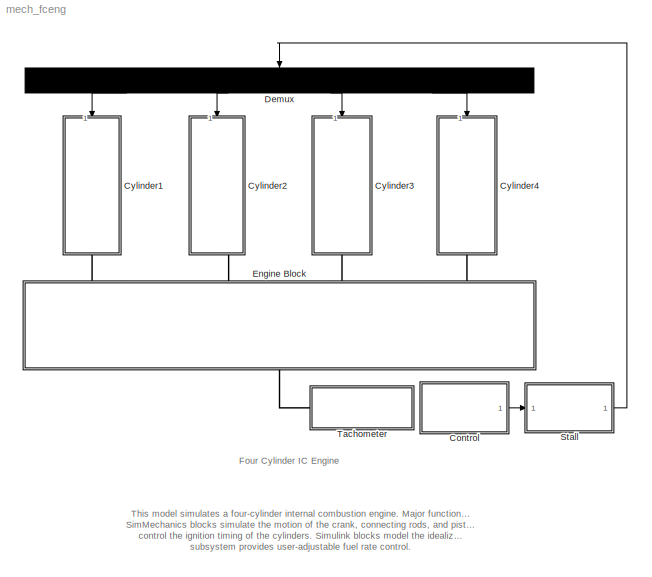
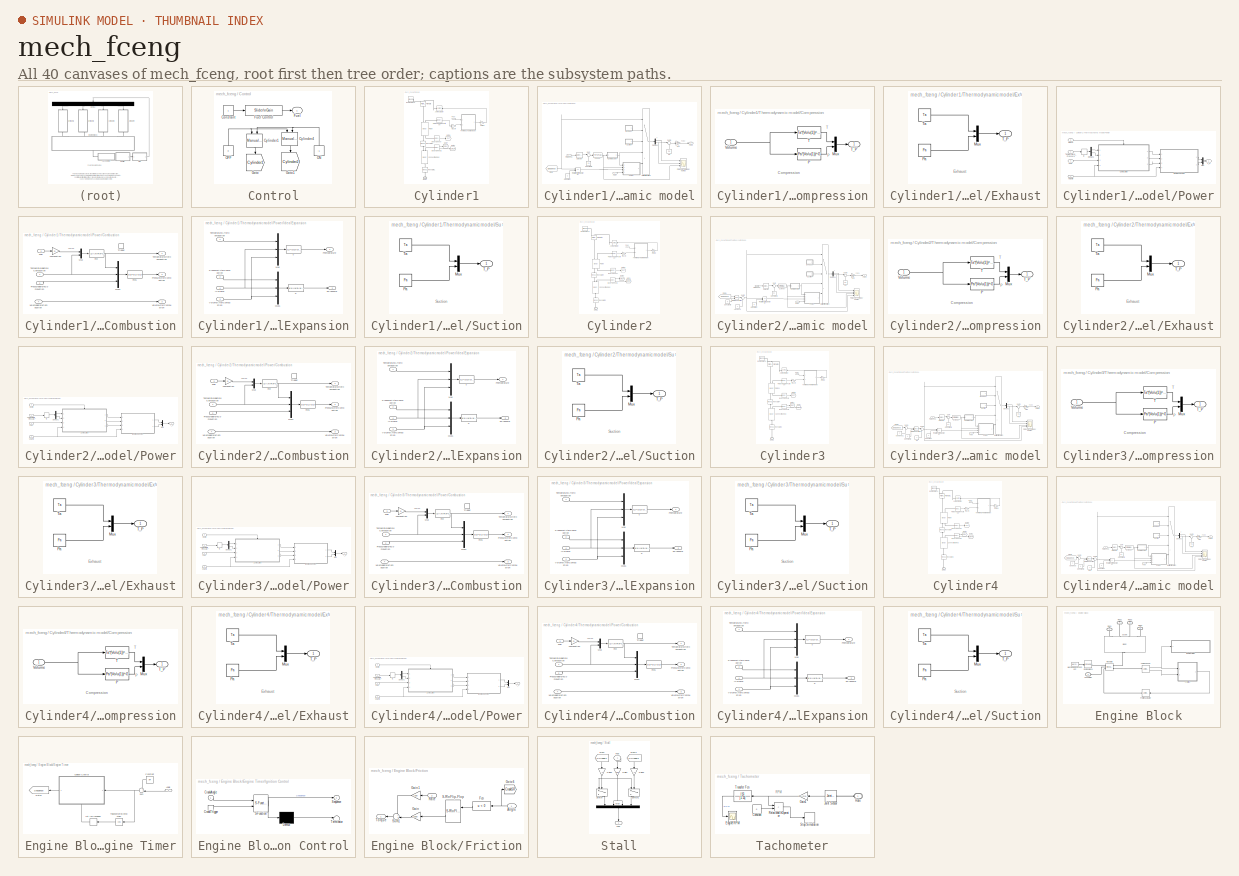
[diagram: thumbnail index - all 40 canvases of the model, root first then tree order]
MODEL mech_fceng
KIND model
CONFIG InitFcn = mech_slider_open(gcs);
CONFIG PreLoadFcn = mech_fceng_init;load mech_fceng_images;
BLOCK [SubSystem] Control
  FunctionWithSeparateData = off
  MaskHideContents = off
  MinAlgLoopOccurrences = off
  Opaque = off
  Ports = [0, 1]
  PropExecContextOutsideSubsystem = off
  RTWSystemCode = Auto
  RequestExecContextInheritance = off
  Tag = OpenMeAtStartUp
BLOCK [Constant] Control/Constant
  OutDataType = sfix(16)
  OutScaling = 2^0
BLOCK [Reference] Control/Cylinder1  REF=simulink/Signal\nRouting/Manual Switch
  FunctionWithSeparateData = off
  Ports = [2, 1]
  RTWMemSecDataConstants = Inherit from model
  RTWMemSecDataInternal = Inherit from model
  RTWMemSecDataParameters = Inherit from model
  RTWMemSecFuncExecute = Inherit from model
  RTWMemSecFuncInitTerm = Inherit from model
  ShowPortLabels = FromPortIcon
  SourceBlock = simulink/Signal\nRouting/Manual Switch
  SourceType = Manual Switch
  SystemSampleTime = -1
  action = 0
  sw = 0
  varsize = off
BLOCK [Reference] Control/Cylinder4  REF=simulink/Signal\nRouting/Manual Switch
  FunctionWithSeparateData = off
  Ports = [2, 1]
  RTWMemSecDataConstants = Inherit from model
  RTWMemSecDataInternal = Inherit from model
  RTWMemSecDataParameters = Inherit from model
  RTWMemSecFuncExecute = Inherit from model
  RTWMemSecFuncInitTerm = Inherit from model
  ShowPortLabels = FromPortIcon
  SourceBlock = simulink/Signal\nRouting/Manual Switch
  SourceType = Manual Switch
  SystemSampleTime = -1
  action = 0
  sw = 0
  varsize = off
BLOCK [Outport] Control/Fuel
  IconDisplay = Port number
  OutDataType = sfix(16)
  OutScaling = 2^0
BLOCK [Reference] Control/Fuel Control  REF=simulink/Math\nOperations/Slider\nGain
  FunctionWithSeparateData = off
  Ports = [1, 1]
  RTWMemSecDataConstants = Inherit from model
  RTWMemSecDataInternal = Inherit from model
  RTWMemSecDataParameters = Inherit from model
  RTWMemSecFuncExecute = Inherit from model
  RTWMemSecFuncInitTerm = Inherit from model
  ShowPortLabels = FromPortIcon
  SourceBlock = simulink/Math\nOperations/Slider\nGain
  SourceType = Slider Gain
  SystemSampleTime = -1
  Tag = 674   438   332   100
  gain = 2
  high = 4
  low = 0
BLOCK [Goto] Control/Goto
  GotoTag = Cylinder1
  TagVisibility = global
BLOCK [Goto] Control/Goto1
  GotoTag = Cylinder2
  TagVisibility = global
BLOCK [Constant] Control/OFF
  OutDataType = sfix(16)
  OutScaling = 2^0
  Value = 0
BLOCK [Constant] Control/ON
  OutDataType = sfix(16)
  OutScaling = 2^0
  Value = -1
BLOCK [SubSystem] Cylinder1
  FunctionWithSeparateData = off
  MaskDisplay = image(crodassm);
  MaskHideContents = off
  MaskIconFrame = on
  MaskIconOpaque = on
  MaskIconRotate = none
  MaskIconUnits = autoscale
  MinAlgLoopOccurrences = off
  Opaque = off
  Ports = [1, 0, 0, 0, 0, 0, 1]
  PropExecContextOutsideSubsystem = off
  RTWSystemCode = Auto
  RequestExecContextInheritance = off
BLOCK [Reference] Cylinder1/Body Sensor  REF=mblibv1/Sensors & \nActuators/Body Sensor
  Acceleration = off
  AccelerationUnits = m/s^2
  ActiveIO = on
  Angle = on
  AngleUnits = deg
  ArcAcceleration = off
  ArcAccelerationUnits = deg/s^2
  ArcVelocity = off
  ArcVelocityUnits = deg/s
  ClassName = BodySensor
  CoordPosition = on
  CoordPositionUnits = m
  DialogClass = MechanicalSensorBlock
  DialogController = MECH.DynMechDlgSource
  FunctionWithSeparateData = off
  Muxed = on
  OutputVector = [1]
  PhysicalDomain = Mechanical
  PortType = blob
  Ports = [0, 1, 0, 0, 0, 1]
  Pose = off
  Quaternion = on
  QuaternionDDT = off
  QuaternionDT = off
  QuaternionUnits = off
  RTWMemSecDataConstants = Inherit from model
  RTWMemSecDataInternal = Inherit from model
  RTWMemSecDataParameters = Inherit from model
  RTWMemSecFuncExecute = Inherit from model
  RTWMemSecFuncInitTerm = Inherit from model
  ReferenceFrame = Absolute (World)
  ShowPortLabels = FromPortIcon
  SourceBlock = mblibv1/Sensors & \nActuators/Body Sensor
  SourceType = Body Sensor
  SystemSampleTime = -1
  Velocity = off
  VelocityUnits = m/s
  Width = 3
BLOCK [Reference] Cylinder1/Body Sensor1  REF=mblibv1/Sensors & \nActuators/Body Sensor
  Acceleration = off
  AccelerationUnits = m/s^2
  ActiveIO = on
  Angle = on
  AngleUnits = deg
  ArcAcceleration = off
  ArcAccelerationUnits = deg/s^2
  ArcVelocity = off
  ArcVelocityUnits = deg/s
  ClassName = BodySensor
  CoordPosition = on
  CoordPositionUnits = m
  DialogClass = MechanicalSensorBlock
  DialogController = MECH.DynMechDlgSource
  FunctionWithSeparateData = off
  Muxed = off
  OutputVector = [ 3 9 ]
  PhysicalDomain = Mechanical
  PortType = blob
  Ports = [0, 2, 0, 0, 0, 1]
  Pose = on
  Quaternion = on
  QuaternionDDT = off
  QuaternionDT = off
  QuaternionUnits = off
  RTWMemSecDataConstants = Inherit from model
  RTWMemSecDataInternal = Inherit from model
  RTWMemSecDataParameters = Inherit from model
  RTWMemSecFuncExecute = Inherit from model
  RTWMemSecFuncInitTerm = Inherit from model
  ReferenceFrame = Absolute (World)
  ShowPortLabels = FromPortIcon
  SourceBlock = mblibv1/Sensors & \nActuators/Body Sensor
  SourceType = Body Sensor
  SystemSampleTime = -1
  Velocity = off
  VelocityUnits = m/s
  Width = 12
BLOCK [Reference] Cylinder1/ConnectingRod  REF=mblibv1/Bodies/Body
  AttachedToCS = 1
  BodyColor = [0.5 0.5 0.5]
  CG = Left$CG$[-18 11.35 -2.70]$WORLD$WORLD$cm$[0 0 0]$Euler X-Y-Z$deg$WORLD$false
  CGPos = [-18 11.35 -2.70]
  CGRot = [0 0 0]
  CS0Pos = []
  CS0Rot = []
  CS10Pos = []
  CS10Rot = []
  CS11Pos = []
  CS11Rot = []
  CS12Pos = []
  CS12Rot = []
  CS13Pos = []
  CS13Rot = []
  CS14Pos = []
  CS14Rot = []
  CS15Pos = []
  CS15Rot = []
  CS16Pos = []
  CS16Rot = []
  CS17Pos = []
  CS17Rot = []
  CS18Pos = []
  CS18Rot = []
  CS19Pos = []
  CS19Rot = []
  CS1Pos = [-18 4.24 -4.24]
  CS1Rot = [0 0 0]
  CS20Pos = []
  CS20Rot = []
  CS2Pos = [-18 23.79 0]
  CS2Rot = [0 0 0]
  CS3Pos = [-18 4.24 -4.24]
  CS3Rot = [0 0 0]
  CS4Pos = []
  CS4Rot = []
  CS5Pos = []
  CS5Rot = []
  CS6Pos = []
  CS6Rot = []
  CS7Pos = []
  CS7Rot = []
  CS8Pos = []
  CS8Rot = []
  CS9Pos = []
  CS9Rot = []
  ClassName = Body
  Density = 1
  DensityUnits = kg/m^3
  DensityUse = false
  DialogClass = MechanicalBodyBlock
  DialogController = MECH.DynMechDlgSource
  GraphicsMode = 1
  GraphicsObj = []
  Inertia = [37007.64 0 -0.01;0 2936.99 7181.27;-0.01 7181.27 34460.53]*1E-7
  InertiaUnits = kg*m^2
  LConnTagsString = CS1
  LeftPortType = workingframe
  Mass = 676.73
  MassUnits = g
  PhysicalDomain = mechanical
  Ports = [0, 0, 0, 0, 0, 1, 2]
  RConnTagsString = CS2|CS3
  RightPortType = workingframe
  Shape = Cylinder
  ShapeDims = [1 1]
  ShapeUnits = m
  ShapeUse = false
  SourceBlock = mblibv1/Bodies/Body
  SourceType = Body
  SubClassName = Unknown
  WorkingFrames = Left$CS1$[-18 4.24 -4.24]$WORLD$WORLD$cm$[0 0 0]$Euler X-Y-Z$deg$WORLD$true#Right$CS2$[-18 23.79 0]$WORLD$WORLD$cm$[0 0 0]$Euler X-Y-Z$deg$WORLD$true#Right$CS3$[-18 4.24 -4.24]$WORLD$WORLD$cm$[0 0 0]$Euler X-Y-Z$deg$WORLD$true
BLOCK [Reference] Cylinder1/Engine Block  REF=mblibv1/Bodies/Ground
  ClassName = Ground
  CoordPosition = [-13.23 23.79 0]
  CoordPositionUnits = cm
  DialogClass = GroundBlock
  DialogController = MECH.DynMechDlgSource
  FunctionWithSeparateData = off
  LeftPortType = env
  MachineId = [0 0]
  PhysicalDomain = Mechanical
  Ports = [0, 0, 0, 0, 0, 0, 1]
  RTWMemSecDataConstants = Inherit from model
  RTWMemSecDataInternal = Inherit from model
  RTWMemSecDataParameters = Inherit from model
  RTWMemSecFuncExecute = Inherit from model
  RTWMemSecFuncInitTerm = Inherit from model
  RightPortType = workingframe
  ShowEnvPort = off
  ShowPortLabels = FromPortIcon
  SourceBlock = mblibv1/Bodies/Ground
  SourceType = Ground
  StateVectorMgrId = -1
  SystemSampleTime = -1
  UserData = DataTag0
  UserDataPersistent = on
BLOCK [Inport] Cylinder1/Fuel
  IconDisplay = Port number
  OutDataType = sfix(16)
  OutScaling = 2^0
BLOCK [Goto] Cylinder1/Goto1
  GotoTag = CR1R
  TagVisibility = global
BLOCK [Goto] Cylinder1/Goto7
  GotoTag = CR1T
  TagVisibility = global
BLOCK [Goto] Cylinder1/Goto8
  GotoTag = P1T
  TagVisibility = global
BLOCK [Reference] Cylinder1/Joint Actuator  REF=mblibv1/Sensors & \nActuators/Joint Actuator
  AccelerationUnits = m/s^2
  ActiveIO = on
  ActuationStyle = Force
  AngleUnits = deg
  ArcAccelerationUnits = deg/s^2
  ArcVelocityUnits = deg/s
  ClassName = JointActuator
  CoordPositionUnits = m
  DialogClass = MechanicalActuatorBlock
  DialogController = MECH.DynMechDlgSource
  ForceUnits = N
  FunctionWithSeparateData = off
  PhysicalDomain = Mechanical
  PortType = blob
  Ports = [1, 0, 0, 0, 0, 0, 1]
  Primitive = P1
  RTWMemSecDataConstants = Inherit from model
  RTWMemSecDataInternal = Inherit from model
  RTWMemSecDataParameters = Inherit from model
  RTWMemSecFuncExecute = Inherit from model
  RTWMemSecFuncInitTerm = Inherit from model
  ReferenceFrame = Absolute (INERTIAL)
  ShowPortLabels = FromPortIcon
  SourceBlock = mblibv1/Sensors & \nActuators/Joint Actuator
  SourceType = Joint Actuator
  SystemSampleTime = -1
  TorqueUnits = N-m
  VelocityUnits = m/s
  Width = 1
BLOCK [Reference] Cylinder1/Piston  REF=mblibv1/Bodies/Body
  AttachedToCS = 1
  BodyColor = [0.5 0.5 0.5]
  CG = Left$CG$[-18 24.51 0]$WORLD$WORLD$cm$[0 0 0]$Euler X-Y-Z$deg$WORLD$false
  CGPos = [-18 24.51 0]
  CGRot = [0 0 0]
  CS0Pos = []
  CS0Rot = []
  CS10Pos = []
  CS10Rot = []
  CS11Pos = []
  CS11Rot = []
  CS12Pos = []
  CS12Rot = []
  CS13Pos = []
  CS13Rot = []
  CS14Pos = []
  CS14Rot = []
  CS15Pos = []
  CS15Rot = []
  CS16Pos = []
  CS16Rot = []
  CS17Pos = []
  CS17Rot = []
  CS18Pos = []
  CS18Rot = []
  CS19Pos = []
  CS19Rot = []
  CS1Pos = [-18 23.79 0]
  CS1Rot = [0 0 0]
  CS20Pos = []
  CS20Rot = []
  CS2Pos = [-13.23 23.79 0]
  CS2Rot = [0 0 0]
  CS3Pos = [-18 23.79 0]
  CS3Rot = [0 0 0]
  CS4Pos = [-18 23.79+4 0]
  CS4Rot = [0 0 0]
  CS5Pos = []
  CS5Rot = []
  CS6Pos = []
  CS6Rot = []
  CS7Pos = []
  CS7Rot = []
  CS8Pos = []
  CS8Rot = []
  CS9Pos = []
  CS9Rot = []
  ClassName = Body
  Density = 1
  DensityUnits = kg/m^3
  DensityUse = false
  DialogClass = MechanicalBodyBlock
  DialogController = MECH.DynMechDlgSource
  GraphicsMode = 1
  GraphicsObj = []
  Inertia = [39798.30 0.06 -0.01;0.06 49173.25 -0.04;-0.01 -0.04 39108.48]*1E-7
  InertiaUnits = kg*m^2
  LConnTagsString = CS1|CS3
  LeftPortType = workingframe
  Mass = 3490.25
  MassUnits = g
  PhysicalDomain = mechanical
  Ports = [0, 0, 0, 0, 0, 2, 2]
  RConnTagsString = CS2|CS4
  RightPortType = workingframe
  Shape = Cylinder
  ShapeDims = [1 1]
  ShapeUnits = m
  ShapeUse = false
  SourceBlock = mblibv1/Bodies/Body
  SourceType = Body
  SubClassName = Unknown
  WorkingFrames = Left$CS1$[-18 23.79 0]$WORLD$WORLD$cm$[0 0 0]$Euler X-Y-Z$deg$WORLD$true#Right$CS2$[-13.23 23.79 0]$WORLD$WORLD$cm$[0 0 0]$Euler X-Y-Z$deg$WORLD$true#Left$CS3$[-18 23.79 0]$WORLD$WORLD$cm$[0 0 0]$Euler X-Y-Z$deg$WORLD$true#Right$CS4$[-18 23.79+4 0]$WORLD$WORLD$cm$[0 0 0]$Euler X-Y-Z$deg$WORLD$true
BLOCK [Reference] Cylinder1/Piston Head\nPosition  REF=mblibv1/Sensors & \nActuators/Body Sensor
  Acceleration = off
  AccelerationUnits = m/s^2
  ActiveIO = on
  Angle = on
  AngleUnits = deg
  ArcAcceleration = off
  ArcAccelerationUnits = deg/s^2
  ArcVelocity = off
  ArcVelocityUnits = deg/s
  ClassName = BodySensor
  CoordPosition = on
  CoordPositionUnits = m
  DialogClass = MechanicalSensorBlock
  DialogController = MECH.DynMechDlgSource
  FunctionWithSeparateData = off
  Muxed = on
  OutputVector = [1]
  PhysicalDomain = Mechanical
  PortType = blob
  Ports = [0, 1, 0, 0, 0, 1]
  Pose = off
  Quaternion = on
  QuaternionDDT = off
  QuaternionDT = off
  QuaternionUnits = off
  RTWMemSecDataConstants = Inherit from model
  RTWMemSecDataInternal = Inherit from model
  RTWMemSecDataParameters = Inherit from model
  RTWMemSecFuncExecute = Inherit from model
  RTWMemSecFuncInitTerm = Inherit from model
  ReferenceFrame = Absolute (World)
  ShowPortLabels = FromPortIcon
  SourceBlock = mblibv1/Sensors & \nActuators/Body Sensor
  SourceType = Body Sensor
  SystemSampleTime = -1
  Velocity = off
  VelocityUnits = m/s
  Width = 3
BLOCK [Reference] Cylinder1/Prismatic  REF=mblibv1/Joints/Prismatic
  ClassName = Joint
  CutJoint = off
  DialogClass = JointBlock
  DialogController = MECH.DynMechDlgSource
  LConnTagsString = __newl0|SA1
  LeftPortType = blob
  MarkAsCut = off
  NumSAPorts = 1
  P1Axis = [0 1 0]
  PhysicalDomain = mechanical
  Ports = [0, 0, 0, 0, 0, 2, 1]
  PrimitiveProps = P1$WORLD$[0 1 0]$prismatic
  Primitives = prismatic
  RConnTagsString = __newr0
  RightPortType = blob
  SourceBlock = mblibv1/Joints/Prismatic
  SourceType = Prismatic
  SubClassName = Unknown
BLOCK [Reference] Cylinder1/Revolute1  REF=mblibv1/Joints/Revolute
  ClassName = Joint
  CutJoint = off
  DialogClass = JointBlock
  DialogController = MECH.DynMechDlgSource
  LConnTagsString = __newl0
  LeftPortType = blob
  MarkAsCut = off
  NumSAPorts = 0
  PhysicalDomain = mechanical
  Ports = [0, 0, 0, 0, 0, 1, 1]
  PrimitiveProps = R1$WORLD$[1 0 0]$revolute
  Primitives = revolute
  R1Axis = [1 0 0]
  RConnTagsString = __newr0
  RightPortType = blob
  SourceBlock = mblibv1/Joints/Revolute
  SourceType = Revolute
  SubClassName = Unknown
BLOCK [Reference] Cylinder1/Revolute2  REF=mblibv1/Joints/Revolute
  ClassName = Joint
  CutJoint = on
  DialogClass = JointBlock
  DialogController = MECH.DynMechDlgSource
  LConnTagsString = __newl0
  LeftPortType = blob
  MarkAsCut = off
  NumSAPorts = 0
  PhysicalDomain = mechanical
  Ports = [0, 0, 0, 0, 0, 1, 1]
  PrimitiveProps = R1$WORLD$[1 0 0]$revolute
  Primitives = revolute
  R1Axis = [1 0 0]
  RConnTagsString = __newr0
  RightPortType = blob
  SourceBlock = mblibv1/Joints/Revolute
  SourceType = Revolute
  SubClassName = Unknown
BLOCK [PMIOPort] Cylinder1/Rod1
  Port = 1
  Side = Right
BLOCK [SubSystem] Cylinder1/Thermodynamic model
  FunctionWithSeparateData = off
  MaskHideContents = off
  MinAlgLoopOccurrences = off
  Opaque = off
  Ports = [2, 1]
  PropExecContextOutsideSubsystem = off
  RTWSystemCode = Auto
  RequestExecContextInheritance = off
BLOCK [Gain] Cylinder1/Thermodynamic model/Area
  Gain = -pi*R*R
  OutDataType = sfix(16)
  OutScaling = 2^0
  ParameterDataType = sfix(16)
  ParameterScaling = 2^0
BLOCK [SubSystem] Cylinder1/Thermodynamic model/Compression
  FunctionWithSeparateData = off
  MaskHideContents = off
  MinAlgLoopOccurrences = off
  Opaque = off
  Ports = [1, 1]
  PropExecContextOutsideSubsystem = off
  RTWSystemCode = Auto
  RequestExecContextInheritance = off
BLOCK [Mux] Cylinder1/Thermodynamic model/Compression/Mux
  DisplayOption = bar
  Inputs = 2
  Ports = [2, 1]
BLOCK [Fcn] Cylinder1/Thermodynamic model/Compression/P
  Expr = Pa*(Vo/u(1))^G
BLOCK [Fcn] Cylinder1/Thermodynamic model/Compression/T
  Expr = Ta*(Vo/u(1))^(G-1)
BLOCK [Outport] Cylinder1/Thermodynamic model/Compression/T_P
  IconDisplay = Port number
  OutDataType = sfix(16)
  OutScaling = 2^0
BLOCK [Inport] Cylinder1/Thermodynamic model/Compression/Volume
  IconDisplay = Port number
  OutDataType = sfix(16)
  OutScaling = 2^0
BLOCK [Constant] Cylinder1/Thermodynamic model/Constant
  OutDataType = sfix(16)
  OutScaling = 2^0
  Value = 4
BLOCK [Constant] Cylinder1/Thermodynamic model/Constant1
  OutDataType = sfix(16)
  OutScaling = 2^0
  Value = 31
BLOCK [Fcn] Cylinder1/Thermodynamic model/CylnVol
  Expr = R*R*pi*u(1)
BLOCK [Demux] Cylinder1/Thermodynamic model/Demux1
  Outputs = 2
  Ports = [1, 2]
BLOCK [SubSystem] Cylinder1/Thermodynamic model/Exhaust
  FunctionWithSeparateData = off
  MaskHideContents = off
  MinAlgLoopOccurrences = off
  Opaque = off
  Ports = [0, 1]
  PropExecContextOutsideSubsystem = off
  RTWSystemCode = Auto
  RequestExecContextInheritance = off
  TreatAsAtomicUnit = on
BLOCK [Mux] Cylinder1/Thermodynamic model/Exhaust/Mux
  DisplayOption = bar
  Inputs = 2
  Ports = [2, 1]
BLOCK [Constant] Cylinder1/Thermodynamic model/Exhaust/Pa
  OutDataType = sfix(16)
  OutScaling = 2^0
  Value = Pa
BLOCK [Outport] Cylinder1/Thermodynamic model/Exhaust/T_P
  IconDisplay = Port number
  OutDataType = sfix(16)
  OutScaling = 2^0
BLOCK [Constant] Cylinder1/Thermodynamic model/Exhaust/Ta
  OutDataType = sfix(16)
  OutScaling = 2^0
  Value = Ta
BLOCK [Outport] Cylinder1/Thermodynamic model/Force
  IconDisplay = Port number
  OutDataType = sfix(16)
  OutScaling = 2^0
BLOCK [From] Cylinder1/Thermodynamic model/From
  CloseFcn = tagdialog Close
  GotoTag = Sequence
BLOCK [Inport] Cylinder1/Thermodynamic model/Fuel
  IconDisplay = Port number
  OutDataType = sfix(16)
  OutScaling = 2^0
BLOCK [MultiPortSwitch] Cylinder1/Thermodynamic model/Multiport\nSwitch
  Inputs = 4
  Ports = [5, 1]
  SaturateOnIntegerOverflow = off
BLOCK [Constant] Cylinder1/Thermodynamic model/Pa
  OutDataType = sfix(16)
  OutScaling = 2^0
  Value = Pa
BLOCK [Scope] Cylinder1/Thermodynamic model/Piston1\nThermodynamics
  DataFormat = StructureWithTime
  Floating = off
  NumInputPorts = 3
  Ports = [3]
  SampleTime = 0
  YMax = 425~240000~1050
  YMin = 25~0~50
BLOCK [Inport] Cylinder1/Thermodynamic model/PistonPos
  IconDisplay = Port number
  OutDataType = sfix(16)
  OutScaling = 2^0
  Port = 2
BLOCK [SubSystem] Cylinder1/Thermodynamic model/Power
  FunctionWithSeparateData = off
  MaskHideContents = off
  MinAlgLoopOccurrences = off
  Opaque = off
  Ports = [4, 1]
  PropExecContextOutsideSubsystem = off
  RTWSystemCode = Auto
  RequestExecContextInheritance = off
BLOCK [SubSystem] Cylinder1/Thermodynamic model/Power/Combustion
  FunctionWithSeparateData = off
  MaskHideContents = off
  MinAlgLoopOccurrences = off
  Opaque = off
  Ports = [4, 3, 0, 1]
  PropExecContextOutsideSubsystem = off
  RTWSystemCode = Auto
  RequestExecContextInheritance = off
  TreatAsAtomicUnit = on
BLOCK [Fcn] Cylinder1/Thermodynamic model/Power/Combustion/Fcn
  Expr = u(1)/(AirRo*Vtdc*Cv)+u(2)
BLOCK [Fcn] Cylinder1/Thermodynamic model/Power/Combustion/Fcn1
  Expr = u(3)*u(1)/u(2)
BLOCK [Inport] Cylinder1/Thermodynamic model/Power/Combustion/Fuel
  IconDisplay = Port number
  OutDataType = sfix(16)
  OutScaling = 2^0
  Port = 3
BLOCK [Mux] Cylinder1/Thermodynamic model/Power/Combustion/Mux
  DisplayOption = bar
  Inputs = 2
  Ports = [2, 1]
BLOCK [Mux] Cylinder1/Thermodynamic model/Power/Combustion/Mux1
  DisplayOption = bar
  Inputs = 3
  Ports = [3, 1]
BLOCK [Outport] Cylinder1/Thermodynamic model/Power/Combustion/PressureAfterCombustion
  IconDisplay = Port number
  OutDataType = sfix(16)
  OutScaling = 2^0
  Port = 2
BLOCK [Inport] Cylinder1/Thermodynamic model/Power/Combustion/PressureBeforeCombustion
  IconDisplay = Port number
  OutDataType = sfix(16)
  OutScaling = 2^0
  Port = 2
BLOCK [Outport] Cylinder1/Thermodynamic model/Power/Combustion/TemperatureAfterCombustion
  IconDisplay = Port number
  OutDataType = sfix(16)
  OutScaling = 2^0
BLOCK [Inport] Cylinder1/Thermodynamic model/Power/Combustion/TemperatureBeforeCombustion
  IconDisplay = Port number
  OutDataType = sfix(16)
  OutScaling = 2^0
BLOCK [TriggerPort] Cylinder1/Thermodynamic model/Power/Combustion/Trigger
  Ports = []
  ZeroCross = off
BLOCK [Outport] Cylinder1/Thermodynamic model/Power/Combustion/VolumeAfterCombustion
  IconDisplay = Port number
  OutDataType = sfix(16)
  OutScaling = 2^0
  Port = 3
BLOCK [Inport] Cylinder1/Thermodynamic model/Power/Combustion/VolumeBeforeCombustion
  IconDisplay = Port number
  OutDataType = sfix(16)
  OutScaling = 2^0
  Port = 4
BLOCK [Gain] Cylinder1/Thermodynamic model/Power/Combustion/combustion
  Gain = Q
  OutDataType = sfix(16)
  OutScaling = 2^0
  ParameterDataType = sfix(16)
  ParameterScaling = 2^0
BLOCK [Demux] Cylinder1/Thermodynamic model/Power/Demux1
  Outputs = 2
  Ports = [1, 2]
BLOCK [Inport] Cylinder1/Thermodynamic model/Power/Fuel
  IconDisplay = Port number
  OutDataType = sfix(16)
  OutScaling = 2^0
  Port = 4
BLOCK [InitialCondition] Cylinder1/Thermodynamic model/Power/IC
  Value = [Ta;Pa]
BLOCK [SubSystem] Cylinder1/Thermodynamic model/Power/IdealExpansion
  FunctionWithSeparateData = off
  MaskHideContents = off
  MinAlgLoopOccurrences = off
  Opaque = off
  Ports = [4, 2]
  PropExecContextOutsideSubsystem = off
  RTWSystemCode = Auto
  RequestExecContextInheritance = off
  TreatAsAtomicUnit = on
BLOCK [Outport] Cylinder1/Thermodynamic model/Power/IdealExpansion/FPressure
  IconDisplay = Port number
  OutDataType = sfix(16)
  OutScaling = 2^0
  Port = 2
BLOCK [Outport] Cylinder1/Thermodynamic model/Power/IdealExpansion/FTemperature
  IconDisplay = Port number
  OutDataType = sfix(16)
  OutScaling = 2^0
BLOCK [Inport] Cylinder1/Thermodynamic model/Power/IdealExpansion/IVolume
  IconDisplay = Port number
  OutDataType = sfix(16)
  OutScaling = 2^0
  Port = 4
BLOCK [Mux] Cylinder1/Thermodynamic model/Power/IdealExpansion/Mux
  DisplayOption = bar
  Inputs = 3
  Ports = [3, 1]
BLOCK [Mux] Cylinder1/Thermodynamic model/Power/IdealExpansion/Mux1
  DisplayOption = bar
  Inputs = 3
  Ports = [3, 1]
BLOCK [Fcn] Cylinder1/Thermodynamic model/Power/IdealExpansion/P
  Expr = u(1)*(u(3)/u(2))^G
BLOCK [Inport] Cylinder1/Thermodynamic model/Power/IdealExpansion/PressureAfterCombustion
  IconDisplay = Port number
  OutDataType = sfix(16)
  OutScaling = 2^0
  Port = 2
BLOCK [Fcn] Cylinder1/Thermodynamic model/Power/IdealExpansion/T
  Expr = u(1)*(u(3)/u(2))^(G-1)
BLOCK [Inport] Cylinder1/Thermodynamic model/Power/IdealExpansion/TemperatureAfterCombustion
  IconDisplay = Port number
  OutDataType = sfix(16)
  OutScaling = 2^0
BLOCK [Inport] Cylinder1/Thermodynamic model/Power/IdealExpansion/VolumeAfterCombustion
  IconDisplay = Port number
  OutDataType = sfix(16)
  OutScaling = 2^0
  Port = 3
BLOCK [Mux] Cylinder1/Thermodynamic model/Power/Mux
  DisplayOption = bar
  Inputs = 2
  Ports = [2, 1]
BLOCK [Inport] Cylinder1/Thermodynamic model/Power/Spark
  IconDisplay = Port number
  OutDataType = sfix(16)
  OutScaling = 2^0
  Port = 3
BLOCK [Outport] Cylinder1/Thermodynamic model/Power/T_P
  IconDisplay = Port number
  OutDataType = sfix(16)
  OutScaling = 2^0
BLOCK [Inport] Cylinder1/Thermodynamic model/Power/Temperature_Pressure
  IconDisplay = Port number
  OutDataType = sfix(16)
  OutScaling = 2^0
BLOCK [Inport] Cylinder1/Thermodynamic model/Power/Volume
  IconDisplay = Port number
  OutDataType = sfix(16)
  OutScaling = 2^0
  Port = 2
BLOCK [RelationalOperator] Cylinder1/Thermodynamic model/Relational\nOperator
  Operator = ==
  ZeroCross = off
BLOCK [Selector] Cylinder1/Thermodynamic model/Selector
  IndexOptions = Index vector (dialog)
  Indices = 2
  InputPortWidth = 3
  OutputSizes = 1
  Ports = [1, 1]
BLOCK [SubSystem] Cylinder1/Thermodynamic model/Suction
  FunctionWithSeparateData = off
  MaskHideContents = off
  MinAlgLoopOccurrences = off
  Opaque = off
  Ports = [0, 1]
  PropExecContextOutsideSubsystem = off
  RTWSystemCode = Auto
  RequestExecContextInheritance = off
  TreatAsAtomicUnit = on
BLOCK [Mux] Cylinder1/Thermodynamic model/Suction/Mux
  DisplayOption = bar
  Inputs = 2
  Ports = [2, 1]
BLOCK [Constant] Cylinder1/Thermodynamic model/Suction/Pa
  OutDataType = sfix(16)
  OutScaling = 2^0
  Value = Pa
BLOCK [Outport] Cylinder1/Thermodynamic model/Suction/T_P
  IconDisplay = Port number
  OutDataType = sfix(16)
  OutScaling = 2^0
BLOCK [Constant] Cylinder1/Thermodynamic model/Suction/Ta
  OutDataType = sfix(16)
  OutScaling = 2^0
  Value = Ta
BLOCK [Sum] Cylinder1/Thermodynamic model/Sum
  IconShape = round
  Inputs = |-+
  OutDataType = sfix(16)
  OutScaling = 2^0
  Ports = [2, 1]
BLOCK [Sum] Cylinder1/Thermodynamic model/Sum3
  IconShape = round
  Inputs = |+-
  OutDataType = sfix(16)
  OutScaling = 2^0
  Ports = [2, 1]
BLOCK [Gain] Cylinder1/gmf2N
  Gain = 9.81/1000
  OutDataType = sfix(16)
  OutScaling = 2^0
  ParameterDataType = sfix(16)
  ParameterScaling = 2^0
BLOCK [Gain] Cylinder1/m2cm
  Gain = 100
  OutDataType = sfix(16)
  OutScaling = 2^0
  ParameterDataType = sfix(16)
  ParameterScaling = 2^0
BLOCK [SubSystem] Cylinder2
  FunctionWithSeparateData = off
  MaskDisplay = image(crodassmb);
  MaskHideContents = off
  MaskIconFrame = on
  MaskIconOpaque = on
  MaskIconRotate = none
  MaskIconUnits = autoscale
  MinAlgLoopOccurrences = off
  Opaque = off
  Ports = [1, 0, 0, 0, 0, 0, 1]
  PropExecContextOutsideSubsystem = off
  RTWSystemCode = Auto
  RequestExecContextInheritance = off
BLOCK [Reference] Cylinder2/Body Sensor  REF=mblibv1/Sensors & \nActuators/Body Sensor
  Acceleration = off
  AccelerationUnits = m/s^2
  ActiveIO = on
  Angle = on
  AngleUnits = deg
  ArcAcceleration = off
  ArcAccelerationUnits = deg/s^2
  ArcVelocity = off
  ArcVelocityUnits = deg/s
  ClassName = BodySensor
  CoordPosition = on
  CoordPositionUnits = m
  DialogClass = MechanicalSensorBlock
  DialogController = MECH.DynMechDlgSource
  FunctionWithSeparateData = off
  Muxed = on
  OutputVector = [1]
  PhysicalDomain = Mechanical
  PortType = blob
  Ports = [0, 1, 0, 0, 0, 1]
  Pose = off
  Quaternion = on
  QuaternionDDT = off
  QuaternionDT = off
  QuaternionUnits = off
  RTWMemSecDataConstants = Inherit from model
  RTWMemSecDataInternal = Inherit from model
  RTWMemSecDataParameters = Inherit from model
  RTWMemSecFuncExecute = Inherit from model
  RTWMemSecFuncInitTerm = Inherit from model
  ReferenceFrame = Absolute (World)
  ShowPortLabels = FromPortIcon
  SourceBlock = mblibv1/Sensors & \nActuators/Body Sensor
  SourceType = Body Sensor
  SystemSampleTime = -1
  Velocity = off
  VelocityUnits = m/s
  Width = 3
BLOCK [Reference] Cylinder2/Body Sensor1  REF=mblibv1/Sensors & \nActuators/Body Sensor
  Acceleration = off
  AccelerationUnits = m/s^2
  ActiveIO = on
  Angle = on
  AngleUnits = deg
  ArcAcceleration = off
  ArcAccelerationUnits = deg/s^2
  ArcVelocity = off
  ArcVelocityUnits = deg/s
  ClassName = BodySensor
  CoordPosition = on
  CoordPositionUnits = m
  DialogClass = MechanicalSensorBlock
  DialogController = MECH.DynMechDlgSource
  FunctionWithSeparateData = off
  Muxed = off
  OutputVector = [ 3 9 ]
  PhysicalDomain = Mechanical
  PortType = blob
  Ports = [0, 2, 0, 0, 0, 1]
  Pose = on
  Quaternion = on
  QuaternionDDT = off
  QuaternionDT = off
  QuaternionUnits = off
  RTWMemSecDataConstants = Inherit from model
  RTWMemSecDataInternal = Inherit from model
  RTWMemSecDataParameters = Inherit from model
  RTWMemSecFuncExecute = Inherit from model
  RTWMemSecFuncInitTerm = Inherit from model
  ReferenceFrame = Absolute (World)
  ShowPortLabels = FromPortIcon
  SourceBlock = mblibv1/Sensors & \nActuators/Body Sensor
  SourceType = Body Sensor
  SystemSampleTime = -1
  Velocity = off
  VelocityUnits = m/s
  Width = 12
BLOCK [Reference] Cylinder2/ConnectingRod  REF=mblibv1/Bodies/Body
  AttachedToCS = 1
  BodyColor = [0.5 0.5 0.5]
  CG = Left$CG$[-6 2.87 2.70]$WORLD$WORLD$cm$[0 0 0]$Euler X-Y-Z$deg$WORLD$false
  CGPos = [-6 2.87 2.70]
  CGRot = [0 0 0]
  CS0Pos = []
  CS0Rot = []
  CS10Pos = []
  CS10Rot = []
  CS11Pos = []
  CS11Rot = []
  CS12Pos = []
  CS12Rot = []
  CS13Pos = []
  CS13Rot = []
  CS14Pos = []
  CS14Rot = []
  CS15Pos = []
  CS15Rot = []
  CS16Pos = []
  CS16Rot = []
  CS17Pos = []
  CS17Rot = []
  CS18Pos = []
  CS18Rot = []
  CS19Pos = []
  CS19Rot = []
  CS1Pos = [-6 -4.24 4.24]
  CS1Rot = [0 0 0]
  CS20Pos = []
  CS20Rot = []
  CS2Pos = [-6 15.30 0]
  CS2Rot = [0 0 0]
  CS3Pos = [-6 -4.24 4.24]
  CS3Rot = [0 0 0]
  CS4Pos = []
  CS4Rot = []
  CS5Pos = []
  CS5Rot = []
  CS6Pos = []
  CS6Rot = []
  CS7Pos = []
  CS7Rot = []
  CS8Pos = []
  CS8Rot = []
  CS9Pos = []
  CS9Rot = []
  ClassName = Body
  Density = 1
  DensityUnits = kg/m^3
  DensityUse = false
  DialogClass = MechanicalBodyBlock
  DialogController = MECH.DynMechDlgSource
  GraphicsMode = 1
  GraphicsObj = []
  Inertia = [37007.64 0 -0.01;0 2936.99 7181.27;-0.01 7181.27 34460.53]*1E-7
  InertiaUnits = kg*m^2
  LConnTagsString = CS1
  LeftPortType = workingframe
  Mass = 676.73
  MassUnits = g
  PhysicalDomain = mechanical
  Ports = [0, 0, 0, 0, 0, 1, 2]
  RConnTagsString = CS2|CS3
  RightPortType = workingframe
  Shape = Cylinder
  ShapeDims = [1 1]
  ShapeUnits = m
  ShapeUse = false
  SourceBlock = mblibv1/Bodies/Body
  SourceType = Body
  SubClassName = Unknown
  WorkingFrames = Left$CS1$[-6 -4.24 4.24]$WORLD$WORLD$cm$[0 0 0]$Euler X-Y-Z$deg$WORLD$true#Right$CS2$[-6 15.30 0]$WORLD$WORLD$cm$[0 0 0]$Euler X-Y-Z$deg$WORLD$true#Right$CS3$[-6 -4.24 4.24]$WORLD$WORLD$cm$[0 0 0]$Euler X-Y-Z$deg$WORLD$true
BLOCK [Reference] Cylinder2/Engine Block  REF=mblibv1/Bodies/Ground
  ClassName = Ground
  CoordPosition = [-1 15.30 0]
  CoordPositionUnits = cm
  DialogClass = GroundBlock
  DialogController = MECH.DynMechDlgSource
  FunctionWithSeparateData = off
  LeftPortType = env
  MachineId = [0 0]
  PhysicalDomain = Mechanical
  Ports = [0, 0, 0, 0, 0, 0, 1]
  RTWMemSecDataConstants = Inherit from model
  RTWMemSecDataInternal = Inherit from model
  RTWMemSecDataParameters = Inherit from model
  RTWMemSecFuncExecute = Inherit from model
  RTWMemSecFuncInitTerm = Inherit from model
  RightPortType = workingframe
  ShowEnvPort = off
  ShowPortLabels = FromPortIcon
  SourceBlock = mblibv1/Bodies/Ground
  SourceType = Ground
  StateVectorMgrId = -1
  SystemSampleTime = -1
  UserData = DataTag1
  UserDataPersistent = on
BLOCK [Inport] Cylinder2/Fuel
  IconDisplay = Port number
  OutDataType = sfix(16)
  OutScaling = 2^0
BLOCK [Goto] Cylinder2/Goto1
  GotoTag = CR2R
  TagVisibility = global
BLOCK [Goto] Cylinder2/Goto7
  GotoTag = CR2T
  TagVisibility = global
BLOCK [Goto] Cylinder2/Goto8
  GotoTag = P2T
  TagVisibility = global
BLOCK [Reference] Cylinder2/Joint Actuator  REF=mblibv1/Sensors & \nActuators/Joint Actuator
  AccelerationUnits = m/s^2
  ActiveIO = on
  ActuationStyle = Force
  AngleUnits = deg
  ArcAccelerationUnits = deg/s^2
  ArcVelocityUnits = deg/s
  ClassName = JointActuator
  CoordPositionUnits = m
  DialogClass = MechanicalActuatorBlock
  DialogController = MECH.DynMechDlgSource
  ForceUnits = N
  FunctionWithSeparateData = off
  PhysicalDomain = Mechanical
  PortType = blob
  Ports = [1, 0, 0, 0, 0, 0, 1]
  Primitive = P1
  RTWMemSecDataConstants = Inherit from model
  RTWMemSecDataInternal = Inherit from model
  RTWMemSecDataParameters = Inherit from model
  RTWMemSecFuncExecute = Inherit from model
  RTWMemSecFuncInitTerm = Inherit from model
  ReferenceFrame = Absolute (INERTIAL)
  ShowPortLabels = FromPortIcon
  SourceBlock = mblibv1/Sensors & \nActuators/Joint Actuator
  SourceType = Joint Actuator
  SystemSampleTime = -1
  TorqueUnits = N-m
  VelocityUnits = m/s
  Width = 1
BLOCK [Reference] Cylinder2/Piston  REF=mblibv1/Bodies/Body
  AttachedToCS = 1
  BodyColor = [0.5 0.5 0.5]
  CG = Left$CG$[-6 16.02 0]$WORLD$WORLD$cm$[0 0 0]$Euler X-Y-Z$deg$WORLD$false
  CGPos = [-6 16.02 0]
  CGRot = [0 0 0]
  CS0Pos = []
  CS0Rot = []
  CS10Pos = []
  CS10Rot = []
  CS11Pos = []
  CS11Rot = []
  CS12Pos = []
  CS12Rot = []
  CS13Pos = []
  CS13Rot = []
  CS14Pos = []
  CS14Rot = []
  CS15Pos = []
  CS15Rot = []
  CS16Pos = []
  CS16Rot = []
  CS17Pos = []
  CS17Rot = []
  CS18Pos = []
  CS18Rot = []
  CS19Pos = []
  CS19Rot = []
  CS1Pos = [-6 15.30 0]
  CS1Rot = [0 0 0]
  CS20Pos = []
  CS20Rot = []
  CS2Pos = [-1 15.30 0]
  CS2Rot = [0 0 0]
  CS3Pos = [-6 15.30 0]
  CS3Rot = [0 0 0]
  CS4Pos = [-6 19.30 0]
  CS4Rot = [0 0 0]
  CS5Pos = []
  CS5Rot = []
  CS6Pos = []
  CS6Rot = []
  CS7Pos = []
  CS7Rot = []
  CS8Pos = []
  CS8Rot = []
  CS9Pos = []
  CS9Rot = []
  ClassName = Body
  Density = 1
  DensityUnits = kg/m^3
  DensityUse = false
  DialogClass = MechanicalBodyBlock
  DialogController = MECH.DynMechDlgSource
  GraphicsMode = 1
  GraphicsObj = []
  Inertia = [39798.30 0.06 -0.01;0.06 49173.25 -0.04;-0.01 -0.04 39108.48]*1E-7
  InertiaUnits = kg*m^2
  LConnTagsString = CS1|CS3
  LeftPortType = workingframe
  Mass = 3490.25
  MassUnits = g
  PhysicalDomain = mechanical
  Ports = [0, 0, 0, 0, 0, 2, 2]
  RConnTagsString = CS2|CS4
  RightPortType = workingframe
  Shape = Cylinder
  ShapeDims = [1 1]
  ShapeUnits = m
  ShapeUse = false
  SourceBlock = mblibv1/Bodies/Body
  SourceType = Body
  SubClassName = Unknown
  WorkingFrames = Left$CS1$[-6 15.30 0]$WORLD$WORLD$cm$[0 0 0]$Euler X-Y-Z$deg$WORLD$true#Right$CS2$[-1 15.30 0]$WORLD$WORLD$cm$[0 0 0]$Euler X-Y-Z$deg$WORLD$true#Left$CS3$[-6 15.30 0]$WORLD$WORLD$cm$[0 0 0]$Euler X-Y-Z$deg$WORLD$true#Right$CS4$[-6 19.30 0]$WORLD$WORLD$cm$[0 0 0]$Euler X-Y-Z$deg$WORLD$true
BLOCK [Reference] Cylinder2/Piston Head\nPosition  REF=mblibv1/Sensors & \nActuators/Body Sensor
  Acceleration = off
  AccelerationUnits = m/s^2
  ActiveIO = on
  Angle = on
  AngleUnits = deg
  ArcAcceleration = off
  ArcAccelerationUnits = deg/s^2
  ArcVelocity = off
  ArcVelocityUnits = deg/s
  ClassName = BodySensor
  CoordPosition = on
  CoordPositionUnits = m
  DialogClass = MechanicalSensorBlock
  DialogController = MECH.DynMechDlgSource
  FunctionWithSeparateData = off
  Muxed = on
  OutputVector = [1]
  PhysicalDomain = Mechanical
  PortType = blob
  Ports = [0, 1, 0, 0, 0, 1]
  Pose = off
  Quaternion = on
  QuaternionDDT = off
  QuaternionDT = off
  QuaternionUnits = off
  RTWMemSecDataConstants = Inherit from model
  RTWMemSecDataInternal = Inherit from model
  RTWMemSecDataParameters = Inherit from model
  RTWMemSecFuncExecute = Inherit from model
  RTWMemSecFuncInitTerm = Inherit from model
  ReferenceFrame = Absolute (World)
  ShowPortLabels = FromPortIcon
  SourceBlock = mblibv1/Sensors & \nActuators/Body Sensor
  SourceType = Body Sensor
  SystemSampleTime = -1
  Velocity = off
  VelocityUnits = m/s
  Width = 3
BLOCK [Reference] Cylinder2/Prismatic1  REF=mblibv1/Joints/Prismatic
  ClassName = Joint
  CutJoint = off
  DialogClass = JointBlock
  DialogController = MECH.DynMechDlgSource
  LConnTagsString = __newl0|SA1
  LeftPortType = blob
  MarkAsCut = off
  NumSAPorts = 1
  P1Axis = [0 1 0]
  PhysicalDomain = mechanical
  Ports = [0, 0, 0, 0, 0, 2, 1]
  PrimitiveProps = P1$WORLD$[0 1 0]$prismatic
  Primitives = prismatic
  RConnTagsString = __newr0
  RightPortType = blob
  SourceBlock = mblibv1/Joints/Prismatic
  SourceType = Prismatic
  SubClassName = Unknown
BLOCK [Reference] Cylinder2/Revolute3  REF=mblibv1/Joints/Revolute
  ClassName = Joint
  CutJoint = off
  DialogClass = JointBlock
  DialogController = MECH.DynMechDlgSource
  LConnTagsString = __newl0
  LeftPortType = blob
  MarkAsCut = off
  NumSAPorts = 0
  PhysicalDomain = mechanical
  Ports = [0, 0, 0, 0, 0, 1, 1]
  PrimitiveProps = R1$WORLD$[1 0 0]$revolute
  Primitives = revolute
  R1Axis = [1 0 0]
  RConnTagsString = __newr0
  RightPortType = blob
  SourceBlock = mblibv1/Joints/Revolute
  SourceType = Revolute
  SubClassName = Unknown
BLOCK [Reference] Cylinder2/Revolute4  REF=mblibv1/Joints/Revolute
  ClassName = Joint
  CutJoint = on
  DialogClass = JointBlock
  DialogController = MECH.DynMechDlgSource
  LConnTagsString = __newl0
  LeftPortType = blob
  MarkAsCut = off
  NumSAPorts = 0
  PhysicalDomain = mechanical
  Ports = [0, 0, 0, 0, 0, 1, 1]
  PrimitiveProps = R1$WORLD$[1 0 0]$revolute
  Primitives = revolute
  R1Axis = [1 0 0]
  RConnTagsString = __newr0
  RightPortType = blob
  SourceBlock = mblibv1/Joints/Revolute
  SourceType = Revolute
  SubClassName = Unknown
BLOCK [PMIOPort] Cylinder2/Rod2
  Port = 1
  Side = Right
BLOCK [SubSystem] Cylinder2/Thermodynamic model
  FunctionWithSeparateData = off
  MaskHideContents = off
  MinAlgLoopOccurrences = off
  Opaque = off
  Ports = [2, 1]
  PropExecContextOutsideSubsystem = off
  RTWSystemCode = Auto
  RequestExecContextInheritance = off
BLOCK [Constant] Cylinder2/Thermodynamic model/Advance
  OutDataType = sfix(16)
  OutScaling = 2^0
BLOCK [Gain] Cylinder2/Thermodynamic model/Area
  Gain = -pi*R*R
  OutDataType = sfix(16)
  OutScaling = 2^0
  ParameterDataType = sfix(16)
  ParameterScaling = 2^0
BLOCK [SubSystem] Cylinder2/Thermodynamic model/Compression
  FunctionWithSeparateData = off
  MaskHideContents = off
  MinAlgLoopOccurrences = off
  Opaque = off
  Ports = [1, 1]
  PropExecContextOutsideSubsystem = off
  RTWSystemCode = Auto
  RequestExecContextInheritance = off
BLOCK [Mux] Cylinder2/Thermodynamic model/Compression/Mux
  DisplayOption = bar
  Inputs = 2
  Ports = [2, 1]
BLOCK [Fcn] Cylinder2/Thermodynamic model/Compression/P
  Expr = Pa*(Vo/u(1))^G
BLOCK [Fcn] Cylinder2/Thermodynamic model/Compression/T
  Expr = Ta*(Vo/u(1))^(G-1)
BLOCK [Outport] Cylinder2/Thermodynamic model/Compression/T_P
  IconDisplay = Port number
  OutDataType = sfix(16)
  OutScaling = 2^0
BLOCK [Inport] Cylinder2/Thermodynamic model/Compression/Volume
  IconDisplay = Port number
  OutDataType = sfix(16)
  OutScaling = 2^0
BLOCK [Constant] Cylinder2/Thermodynamic model/Constant
  OutDataType = sfix(16)
  OutScaling = 2^0
  Value = 4
BLOCK [Constant] Cylinder2/Thermodynamic model/Constant1
  OutDataType = sfix(16)
  OutScaling = 2^0
  Value = 31
BLOCK [Constant] Cylinder2/Thermodynamic model/Constant3
  OutDataType = sfix(16)
  OutScaling = 2^0
  Value = 4
BLOCK [Fcn] Cylinder2/Thermodynamic model/CylnVol
  Expr = R*R*pi*u(1)
BLOCK [Demux] Cylinder2/Thermodynamic model/Demux1
  Outputs = 2
  Ports = [1, 2]
BLOCK [SubSystem] Cylinder2/Thermodynamic model/Exhaust
  FunctionWithSeparateData = off
  MaskHideContents = off
  MinAlgLoopOccurrences = off
  Opaque = off
  Ports = [0, 1]
  PropExecContextOutsideSubsystem = off
  RTWSystemCode = Auto
  RequestExecContextInheritance = off
  TreatAsAtomicUnit = on
BLOCK [Mux] Cylinder2/Thermodynamic model/Exhaust/Mux
  DisplayOption = bar
  Inputs = 2
  Ports = [2, 1]
BLOCK [Constant] Cylinder2/Thermodynamic model/Exhaust/Pa
  OutDataType = sfix(16)
  OutScaling = 2^0
  Value = Pa
BLOCK [Outport] Cylinder2/Thermodynamic model/Exhaust/T_P
  IconDisplay = Port number
  OutDataType = sfix(16)
  OutScaling = 2^0
BLOCK [Constant] Cylinder2/Thermodynamic model/Exhaust/Ta
  OutDataType = sfix(16)
  OutScaling = 2^0
  Value = Ta
BLOCK [Outport] Cylinder2/Thermodynamic model/Force
  IconDisplay = Port number
  OutDataType = sfix(16)
  OutScaling = 2^0
BLOCK [From] Cylinder2/Thermodynamic model/From1
  CloseFcn = tagdialog Close
  GotoTag = Sequence
BLOCK [Inport] Cylinder2/Thermodynamic model/Fuel
  IconDisplay = Port number
  OutDataType = sfix(16)
  OutScaling = 2^0
BLOCK [Math] Cylinder2/Thermodynamic model/Math\nFunction
  Operator = mod
  OutDataType = sfix(16)
  OutScaling = 2^0
  Ports = [2, 1]
BLOCK [MultiPortSwitch] Cylinder2/Thermodynamic model/Multiport\nSwitch
  Inputs = 4
  Ports = [5, 1]
  SaturateOnIntegerOverflow = off
BLOCK [Constant] Cylinder2/Thermodynamic model/Pa
  OutDataType = sfix(16)
  OutScaling = 2^0
  Value = Pa
BLOCK [Scope] Cylinder2/Thermodynamic model/Piston2\nThermodynamics
  DataFormat = StructureWithTime
  Floating = off
  NumInputPorts = 4
  Ports = [4]
  SampleTime = 0
  YMax = 160~90000~1100~4
  YMin = 20~0~0~1
BLOCK [Inport] Cylinder2/Thermodynamic model/PistonPos
  IconDisplay = Port number
  OutDataType = sfix(16)
  OutScaling = 2^0
  Port = 2
BLOCK [SubSystem] Cylinder2/Thermodynamic model/Power
  FunctionWithSeparateData = off
  MaskHideContents = off
  MinAlgLoopOccurrences = off
  Opaque = off
  Ports = [4, 1]
  PropExecContextOutsideSubsystem = off
  RTWSystemCode = Auto
  RequestExecContextInheritance = off
BLOCK [SubSystem] Cylinder2/Thermodynamic model/Power/Combustion
  FunctionWithSeparateData = off
  MaskHideContents = off
  MinAlgLoopOccurrences = off
  Opaque = off
  Ports = [4, 3, 0, 1]
  PropExecContextOutsideSubsystem = off
  RTWSystemCode = Auto
  RequestExecContextInheritance = off
  TreatAsAtomicUnit = on
BLOCK [Fcn] Cylinder2/Thermodynamic model/Power/Combustion/Fcn
  Expr = u(1)/(AirRo*Vtdc*Cv)+u(2)
BLOCK [Fcn] Cylinder2/Thermodynamic model/Power/Combustion/Fcn1
  Expr = u(3)*u(1)/u(2)
BLOCK [Inport] Cylinder2/Thermodynamic model/Power/Combustion/Fuel
  IconDisplay = Port number
  OutDataType = sfix(16)
  OutScaling = 2^0
  Port = 3
BLOCK [Mux] Cylinder2/Thermodynamic model/Power/Combustion/Mux
  DisplayOption = bar
  Inputs = 2
  Ports = [2, 1]
BLOCK [Mux] Cylinder2/Thermodynamic model/Power/Combustion/Mux1
  DisplayOption = bar
  Inputs = 3
  Ports = [3, 1]
BLOCK [Outport] Cylinder2/Thermodynamic model/Power/Combustion/PressureAfterCombustion
  IconDisplay = Port number
  OutDataType = sfix(16)
  OutScaling = 2^0
  Port = 2
BLOCK [Inport] Cylinder2/Thermodynamic model/Power/Combustion/PressureBeforeCombustion
  IconDisplay = Port number
  OutDataType = sfix(16)
  OutScaling = 2^0
  Port = 2
BLOCK [Outport] Cylinder2/Thermodynamic model/Power/Combustion/TemperatureAfterCombustion
  IconDisplay = Port number
  OutDataType = sfix(16)
  OutScaling = 2^0
BLOCK [Inport] Cylinder2/Thermodynamic model/Power/Combustion/TemperatureBeforeCombustion
  IconDisplay = Port number
  OutDataType = sfix(16)
  OutScaling = 2^0
BLOCK [TriggerPort] Cylinder2/Thermodynamic model/Power/Combustion/Trigger
  Ports = []
  ZeroCross = off
BLOCK [Outport] Cylinder2/Thermodynamic model/Power/Combustion/VolumeAfterCombustion
  IconDisplay = Port number
  OutDataType = sfix(16)
  OutScaling = 2^0
  Port = 3
BLOCK [Inport] Cylinder2/Thermodynamic model/Power/Combustion/VolumeBeforeCombustion
  IconDisplay = Port number
  OutDataType = sfix(16)
  OutScaling = 2^0
  Port = 4
BLOCK [Gain] Cylinder2/Thermodynamic model/Power/Combustion/combustion
  Gain = Q
  OutDataType = sfix(16)
  OutScaling = 2^0
  ParameterDataType = sfix(16)
  ParameterScaling = 2^0
BLOCK [Demux] Cylinder2/Thermodynamic model/Power/Demux1
  Outputs = 2
  Ports = [1, 2]
BLOCK [Inport] Cylinder2/Thermodynamic model/Power/Fuel
  IconDisplay = Port number
  OutDataType = sfix(16)
  OutScaling = 2^0
  Port = 4
BLOCK [InitialCondition] Cylinder2/Thermodynamic model/Power/IC
  Value = [Ta;Pa]
BLOCK [SubSystem] Cylinder2/Thermodynamic model/Power/IdealExpansion
  FunctionWithSeparateData = off
  MaskHideContents = off
  MinAlgLoopOccurrences = off
  Opaque = off
  Ports = [4, 2]
  PropExecContextOutsideSubsystem = off
  RTWSystemCode = Auto
  RequestExecContextInheritance = off
  TreatAsAtomicUnit = on
BLOCK [Outport] Cylinder2/Thermodynamic model/Power/IdealExpansion/FPressure
  IconDisplay = Port number
  OutDataType = sfix(16)
  OutScaling = 2^0
  Port = 2
BLOCK [Outport] Cylinder2/Thermodynamic model/Power/IdealExpansion/FTemperature
  IconDisplay = Port number
  OutDataType = sfix(16)
  OutScaling = 2^0
BLOCK [Inport] Cylinder2/Thermodynamic model/Power/IdealExpansion/IVolume
  IconDisplay = Port number
  OutDataType = sfix(16)
  OutScaling = 2^0
  Port = 4
BLOCK [Mux] Cylinder2/Thermodynamic model/Power/IdealExpansion/Mux
  DisplayOption = bar
  Inputs = 3
  Ports = [3, 1]
BLOCK [Mux] Cylinder2/Thermodynamic model/Power/IdealExpansion/Mux1
  DisplayOption = bar
  Inputs = 3
  Ports = [3, 1]
BLOCK [Fcn] Cylinder2/Thermodynamic model/Power/IdealExpansion/P
  Expr = u(1)*(u(3)/u(2))^G
BLOCK [Inport] Cylinder2/Thermodynamic model/Power/IdealExpansion/PressureAfterCombustion
  IconDisplay = Port number
  OutDataType = sfix(16)
  OutScaling = 2^0
  Port = 2
BLOCK [Fcn] Cylinder2/Thermodynamic model/Power/IdealExpansion/T
  Expr = u(1)*(u(3)/u(2))^(G-1)
BLOCK [Inport] Cylinder2/Thermodynamic model/Power/IdealExpansion/TemperatureAfterCombustion
  IconDisplay = Port number
  OutDataType = sfix(16)
  OutScaling = 2^0
BLOCK [Inport] Cylinder2/Thermodynamic model/Power/IdealExpansion/VolumeAfterCombustion
  IconDisplay = Port number
  OutDataType = sfix(16)
  OutScaling = 2^0
  Port = 3
BLOCK [Mux] Cylinder2/Thermodynamic model/Power/Mux
  DisplayOption = bar
  Inputs = 2
  Ports = [2, 1]
BLOCK [Inport] Cylinder2/Thermodynamic model/Power/Spark
  IconDisplay = Port number
  OutDataType = sfix(16)
  OutScaling = 2^0
  Port = 3
BLOCK [Outport] Cylinder2/Thermodynamic model/Power/T_P
  IconDisplay = Port number
  OutDataType = sfix(16)
  OutScaling = 2^0
BLOCK [Inport] Cylinder2/Thermodynamic model/Power/Temperature_Pressure
  IconDisplay = Port number
  OutDataType = sfix(16)
  OutScaling = 2^0
BLOCK [Inport] Cylinder2/Thermodynamic model/Power/Volume
  IconDisplay = Port number
  OutDataType = sfix(16)
  OutScaling = 2^0
  Port = 2
BLOCK [RelationalOperator] Cylinder2/Thermodynamic model/Relational\nOperator
  Operator = ==
  ZeroCross = off
BLOCK [Selector] Cylinder2/Thermodynamic model/Selector
  IndexOptions = Index vector (dialog)
  Indices = 2
  InputPortWidth = 3
  OutputSizes = 1
  Ports = [1, 1]
BLOCK [SubSystem] Cylinder2/Thermodynamic model/Suction
  FunctionWithSeparateData = off
  MaskHideContents = off
  MinAlgLoopOccurrences = off
  Opaque = off
  Ports = [0, 1]
  PropExecContextOutsideSubsystem = off
  RTWSystemCode = Auto
  RequestExecContextInheritance = off
  TreatAsAtomicUnit = on
BLOCK [Mux] Cylinder2/Thermodynamic model/Suction/Mux
  DisplayOption = bar
  Inputs = 2
  Ports = [2, 1]
BLOCK [Constant] Cylinder2/Thermodynamic model/Suction/Pa
  OutDataType = sfix(16)
  OutScaling = 2^0
  Value = Pa
BLOCK [Outport] Cylinder2/Thermodynamic model/Suction/T_P
  IconDisplay = Port number
  OutDataType = sfix(16)
  OutScaling = 2^0
BLOCK [Constant] Cylinder2/Thermodynamic model/Suction/Ta
  OutDataType = sfix(16)
  OutScaling = 2^0
  Value = Ta
BLOCK [Sum] Cylinder2/Thermodynamic model/Sum
  IconShape = round
  Inputs = |-+
  OutDataType = sfix(16)
  OutScaling = 2^0
  Ports = [2, 1]
BLOCK [Sum] Cylinder2/Thermodynamic model/Sum2
  IconShape = round
  Inputs = |++
  OutDataType = sfix(16)
  OutScaling = 2^0
  Ports = [2, 1]
BLOCK [Sum] Cylinder2/Thermodynamic model/Sum3
  IconShape = round
  Inputs = |+-
  OutDataType = sfix(16)
  OutScaling = 2^0
  Ports = [2, 1]
BLOCK [Gain] Cylinder2/gmf2N
  Gain = 9.81/1000
  OutDataType = sfix(16)
  OutScaling = 2^0
  ParameterDataType = sfix(16)
  ParameterScaling = 2^0
BLOCK [Gain] Cylinder2/m2cm
  Gain = 100
  OutDataType = sfix(16)
  OutScaling = 2^0
  ParameterDataType = sfix(16)
  ParameterScaling = 2^0
BLOCK [SubSystem] Cylinder3
  FunctionWithSeparateData = off
  MaskDisplay = image(crodassmb);
  MaskHideContents = off
  MaskIconFrame = on
  MaskIconOpaque = on
  MaskIconRotate = none
  MaskIconUnits = autoscale
  MinAlgLoopOccurrences = off
  Opaque = off
  Ports = [1, 0, 0, 0, 0, 0, 1]
  PropExecContextOutsideSubsystem = off
  RTWSystemCode = Auto
  RequestExecContextInheritance = off
BLOCK [Reference] Cylinder3/Body Sensor1  REF=mblibv1/Sensors & \nActuators/Body Sensor
  Acceleration = off
  AccelerationUnits = m/s^2
  ActiveIO = on
  Angle = on
  AngleUnits = deg
  ArcAcceleration = off
  ArcAccelerationUnits = deg/s^2
  ArcVelocity = off
  ArcVelocityUnits = deg/s
  ClassName = BodySensor
  CoordPosition = on
  CoordPositionUnits = m
  DialogClass = MechanicalSensorBlock
  DialogController = MECH.DynMechDlgSource
  FunctionWithSeparateData = off
  Muxed = on
  OutputVector = [1]
  PhysicalDomain = Mechanical
  PortType = blob
  Ports = [0, 1, 0, 0, 0, 1]
  Pose = off
  Quaternion = on
  QuaternionDDT = off
  QuaternionDT = off
  QuaternionUnits = off
  RTWMemSecDataConstants = Inherit from model
  RTWMemSecDataInternal = Inherit from model
  RTWMemSecDataParameters = Inherit from model
  RTWMemSecFuncExecute = Inherit from model
  RTWMemSecFuncInitTerm = Inherit from model
  ReferenceFrame = Absolute (World)
  ShowPortLabels = FromPortIcon
  SourceBlock = mblibv1/Sensors & \nActuators/Body Sensor
  SourceType = Body Sensor
  SystemSampleTime = -1
  Velocity = off
  VelocityUnits = m/s
  Width = 3
BLOCK [Reference] Cylinder3/Body Sensor2  REF=mblibv1/Sensors & \nActuators/Body Sensor
  Acceleration = off
  AccelerationUnits = m/s^2
  ActiveIO = on
  Angle = on
  AngleUnits = deg
  ArcAcceleration = off
  ArcAccelerationUnits = deg/s^2
  ArcVelocity = off
  ArcVelocityUnits = deg/s
  ClassName = BodySensor
  CoordPosition = on
  CoordPositionUnits = m
  DialogClass = MechanicalSensorBlock
  DialogController = MECH.DynMechDlgSource
  FunctionWithSeparateData = off
  Muxed = off
  OutputVector = [ 3 9 ]
  PhysicalDomain = Mechanical
  PortType = blob
  Ports = [0, 2, 0, 0, 0, 1]
  Pose = on
  Quaternion = on
  QuaternionDDT = off
  QuaternionDT = off
  QuaternionUnits = off
  RTWMemSecDataConstants = Inherit from model
  RTWMemSecDataInternal = Inherit from model
  RTWMemSecDataParameters = Inherit from model
  RTWMemSecFuncExecute = Inherit from model
  RTWMemSecFuncInitTerm = Inherit from model
  ReferenceFrame = Absolute (World)
  ShowPortLabels = FromPortIcon
  SourceBlock = mblibv1/Sensors & \nActuators/Body Sensor
  SourceType = Body Sensor
  SystemSampleTime = -1
  Velocity = off
  VelocityUnits = m/s
  Width = 12
BLOCK [Reference] Cylinder3/ConnectingRod  REF=mblibv1/Bodies/Body
  AttachedToCS = 1
  BodyColor = [0.5 0.5 0.5]
  CG = Left$CG$[6 2.87 2.70]$WORLD$WORLD$cm$[0 0 0]$Euler X-Y-Z$deg$WORLD$false
  CGPos = [6 2.87 2.70]
  CGRot = [0 0 0]
  CS0Pos = []
  CS0Rot = []
  CS10Pos = []
  CS10Rot = []
  CS11Pos = []
  CS11Rot = []
  CS12Pos = []
  CS12Rot = []
  CS13Pos = []
  CS13Rot = []
  CS14Pos = []
  CS14Rot = []
  CS15Pos = []
  CS15Rot = []
  CS16Pos = []
  CS16Rot = []
  CS17Pos = []
  CS17Rot = []
  CS18Pos = []
  CS18Rot = []
  CS19Pos = []
  CS19Rot = []
  CS1Pos = [6 -4.24 4.24]
  CS1Rot = [0 0 0]
  CS20Pos = []
  CS20Rot = []
  CS2Pos = [6 15.30 0]
  CS2Rot = [0 0 0]
  CS3Pos = [6 -4.24 4.24]
  CS3Rot = [0 0 0]
  CS4Pos = []
  CS4Rot = []
  CS5Pos = []
  CS5Rot = []
  CS6Pos = []
  CS6Rot = []
  CS7Pos = []
  CS7Rot = []
  CS8Pos = []
  CS8Rot = []
  CS9Pos = []
  CS9Rot = []
  ClassName = Body
  Density = 1
  DensityUnits = kg/m^3
  DensityUse = false
  DialogClass = MechanicalBodyBlock
  DialogController = MECH.DynMechDlgSource
  GraphicsMode = 1
  GraphicsObj = []
  Inertia = [37007.64 0 -0.01;0 2936.99 7181.27;-0.01 7181.27 34460.53]*1E-7
  InertiaUnits = kg*m^2
  LConnTagsString = CS1
  LeftPortType = workingframe
  Mass = 676.73
  MassUnits = g
  PhysicalDomain = mechanical
  Ports = [0, 0, 0, 0, 0, 1, 2]
  RConnTagsString = CS2|CS3
  RightPortType = workingframe
  Shape = Cylinder
  ShapeDims = [1 1]
  ShapeUnits = m
  ShapeUse = false
  SourceBlock = mblibv1/Bodies/Body
  SourceType = Body
  SubClassName = Unknown
  WorkingFrames = Left$CS1$[6 -4.24 4.24]$WORLD$WORLD$cm$[0 0 0]$Euler X-Y-Z$deg$WORLD$true#Right$CS2$[6 15.30 0]$WORLD$WORLD$cm$[0 0 0]$Euler X-Y-Z$deg$WORLD$true#Right$CS3$[6 -4.24 4.24]$WORLD$WORLD$cm$[0 0 0]$Euler X-Y-Z$deg$WORLD$true
BLOCK [Reference] Cylinder3/Engine Block  REF=mblibv1/Bodies/Ground
  ClassName = Ground
  CoordPosition = [11 15.30 0]
  CoordPositionUnits = cm
  DialogClass = GroundBlock
  DialogController = MECH.DynMechDlgSource
  FunctionWithSeparateData = off
  LeftPortType = env
  MachineId = [0 0]
  PhysicalDomain = Mechanical
  Ports = [0, 0, 0, 0, 0, 0, 1]
  RTWMemSecDataConstants = Inherit from model
  RTWMemSecDataInternal = Inherit from model
  RTWMemSecDataParameters = Inherit from model
  RTWMemSecFuncExecute = Inherit from model
  RTWMemSecFuncInitTerm = Inherit from model
  RightPortType = workingframe
  ShowEnvPort = off
  ShowPortLabels = FromPortIcon
  SourceBlock = mblibv1/Bodies/Ground
  SourceType = Ground
  StateVectorMgrId = -1
  SystemSampleTime = -1
  UserData = DataTag2
  UserDataPersistent = on
BLOCK [Inport] Cylinder3/Fuel
  IconDisplay = Port number
  OutDataType = sfix(16)
  OutScaling = 2^0
BLOCK [Goto] Cylinder3/Goto1
  GotoTag = CR3R
  TagVisibility = global
BLOCK [Goto] Cylinder3/Goto7
  GotoTag = CR3T
  TagVisibility = global
BLOCK [Goto] Cylinder3/Goto8
  GotoTag = P3T
  TagVisibility = global
BLOCK [Reference] Cylinder3/Joint Actuator  REF=mblibv1/Sensors & \nActuators/Joint Actuator
  AccelerationUnits = m/s^2
  ActiveIO = on
  ActuationStyle = Force
  AngleUnits = deg
  ArcAccelerationUnits = deg/s^2
  ArcVelocityUnits = deg/s
  ClassName = JointActuator
  CoordPositionUnits = m
  DialogClass = MechanicalActuatorBlock
  DialogController = MECH.DynMechDlgSource
  ForceUnits = N
  FunctionWithSeparateData = off
  PhysicalDomain = Mechanical
  PortType = blob
  Ports = [1, 0, 0, 0, 0, 0, 1]
  Primitive = P1
  RTWMemSecDataConstants = Inherit from model
  RTWMemSecDataInternal = Inherit from model
  RTWMemSecDataParameters = Inherit from model
  RTWMemSecFuncExecute = Inherit from model
  RTWMemSecFuncInitTerm = Inherit from model
  ReferenceFrame = Absolute (INERTIAL)
  ShowPortLabels = FromPortIcon
  SourceBlock = mblibv1/Sensors & \nActuators/Joint Actuator
  SourceType = Joint Actuator
  SystemSampleTime = -1
  TorqueUnits = N-m
  VelocityUnits = m/s
  Width = 1
BLOCK [Reference] Cylinder3/Piston Head\nPosition  REF=mblibv1/Sensors & \nActuators/Body Sensor
  Acceleration = off
  AccelerationUnits = m/s^2
  ActiveIO = on
  Angle = on
  AngleUnits = deg
  ArcAcceleration = off
  ArcAccelerationUnits = deg/s^2
  ArcVelocity = off
  ArcVelocityUnits = deg/s
  ClassName = BodySensor
  CoordPosition = on
  CoordPositionUnits = m
  DialogClass = MechanicalSensorBlock
  DialogController = MECH.DynMechDlgSource
  FunctionWithSeparateData = off
  Muxed = on
  OutputVector = [1]
  PhysicalDomain = Mechanical
  PortType = blob
  Ports = [0, 1, 0, 0, 0, 1]
  Pose = off
  Quaternion = on
  QuaternionDDT = off
  QuaternionDT = off
  QuaternionUnits = off
  RTWMemSecDataConstants = Inherit from model
  RTWMemSecDataInternal = Inherit from model
  RTWMemSecDataParameters = Inherit from model
  RTWMemSecFuncExecute = Inherit from model
  RTWMemSecFuncInitTerm = Inherit from model
  ReferenceFrame = Absolute (World)
  ShowPortLabels = FromPortIcon
  SourceBlock = mblibv1/Sensors & \nActuators/Body Sensor
  SourceType = Body Sensor
  SystemSampleTime = -1
  Velocity = off
  VelocityUnits = m/s
  Width = 3
BLOCK [Reference] Cylinder3/Piston1  REF=mblibv1/Bodies/Body
  AttachedToCS = 1
  BodyColor = [0.5 0.5 0.5]
  CG = Left$CG$[6 16.02 0]$WORLD$WORLD$cm$[0 0 0]$Euler X-Y-Z$deg$WORLD$false
  CGPos = [6 16.02 0]
  CGRot = [0 0 0]
  CS0Pos = []
  CS0Rot = []
  CS10Pos = []
  CS10Rot = []
  CS11Pos = []
  CS11Rot = []
  CS12Pos = []
  CS12Rot = []
  CS13Pos = []
  CS13Rot = []
  CS14Pos = []
  CS14Rot = []
  CS15Pos = []
  CS15Rot = []
  CS16Pos = []
  CS16Rot = []
  CS17Pos = []
  CS17Rot = []
  CS18Pos = []
  CS18Rot = []
  CS19Pos = []
  CS19Rot = []
  CS1Pos = [6 15.30 0]
  CS1Rot = [0 0 0]
  CS20Pos = []
  CS20Rot = []
  CS2Pos = [11 15.30 0]
  CS2Rot = [0 0 0]
  CS3Pos = [6 15.30 0]
  CS3Rot = [0 0 0]
  CS4Pos = [6 15.30+4 0]
  CS4Rot = [0 0 0]
  CS5Pos = []
  CS5Rot = []
  CS6Pos = []
  CS6Rot = []
  CS7Pos = []
  CS7Rot = []
  CS8Pos = []
  CS8Rot = []
  CS9Pos = []
  CS9Rot = []
  ClassName = Body
  Density = 1
  DensityUnits = kg/m^3
  DensityUse = false
  DialogClass = MechanicalBodyBlock
  DialogController = MECH.DynMechDlgSource
  GraphicsMode = 1
  GraphicsObj = []
  Inertia = [39798.30 0.06 -0.01;0.06 49173.25 -0.04;-0.01 -0.04 39108.48]*1E-7
  InertiaUnits = kg*m^2
  LConnTagsString = CS1|CS3
  LeftPortType = workingframe
  Mass = 3490.25
  MassUnits = g
  PhysicalDomain = mechanical
  Ports = [0, 0, 0, 0, 0, 2, 2]
  RConnTagsString = CS2|CS4
  RightPortType = workingframe
  Shape = Cylinder
  ShapeDims = [1 1]
  ShapeUnits = m
  ShapeUse = false
  SourceBlock = mblibv1/Bodies/Body
  SourceType = Body
  SubClassName = Unknown
  WorkingFrames = Left$CS1$[6 15.30 0]$WORLD$WORLD$cm$[0 0 0]$Euler X-Y-Z$deg$WORLD$true#Right$CS2$[11 15.30 0]$WORLD$WORLD$cm$[0 0 0]$Euler X-Y-Z$deg$WORLD$true#Left$CS3$[6 15.30 0]$WORLD$WORLD$cm$[0 0 0]$Euler X-Y-Z$deg$WORLD$true#Right$CS4$[6 15.30+4 0]$WORLD$WORLD$cm$[0 0 0]$Euler X-Y-Z$deg$WORLD$true
BLOCK [Reference] Cylinder3/Prismatic1  REF=mblibv1/Joints/Prismatic
  ClassName = Joint
  CutJoint = off
  DialogClass = JointBlock
  DialogController = MECH.DynMechDlgSource
  LConnTagsString = __newl0|SA1
  LeftPortType = blob
  MarkAsCut = off
  NumSAPorts = 1
  P1Axis = [0 1 0]
  PhysicalDomain = mechanical
  Ports = [0, 0, 0, 0, 0, 2, 1]
  PrimitiveProps = P1$WORLD$[0 1 0]$prismatic
  Primitives = prismatic
  RConnTagsString = __newr0
  RightPortType = blob
  SourceBlock = mblibv1/Joints/Prismatic
  SourceType = Prismatic
  SubClassName = Unknown
BLOCK [Reference] Cylinder3/Revolute3  REF=mblibv1/Joints/Revolute
  ClassName = Joint
  CutJoint = off
  DialogClass = JointBlock
  DialogController = MECH.DynMechDlgSource
  LConnTagsString = __newl0
  LeftPortType = blob
  MarkAsCut = off
  NumSAPorts = 0
  PhysicalDomain = mechanical
  Ports = [0, 0, 0, 0, 0, 1, 1]
  PrimitiveProps = R1$WORLD$[1 0 0]$revolute
  Primitives = revolute
  R1Axis = [1 0 0]
  RConnTagsString = __newr0
  RightPortType = blob
  SourceBlock = mblibv1/Joints/Revolute
  SourceType = Revolute
  SubClassName = Unknown
BLOCK [Reference] Cylinder3/Revolute4  REF=mblibv1/Joints/Revolute
  ClassName = Joint
  CutJoint = on
  DialogClass = JointBlock
  DialogController = MECH.DynMechDlgSource
  LConnTagsString = __newl0
  LeftPortType = blob
  MarkAsCut = off
  NumSAPorts = 0
  PhysicalDomain = mechanical
  Ports = [0, 0, 0, 0, 0, 1, 1]
  PrimitiveProps = R1$WORLD$[1 0 0]$revolute
  Primitives = revolute
  R1Axis = [1 0 0]
  RConnTagsString = __newr0
  RightPortType = blob
  SourceBlock = mblibv1/Joints/Revolute
  SourceType = Revolute
  SubClassName = Unknown
BLOCK [PMIOPort] Cylinder3/Rod3
  Port = 1
  Side = Right
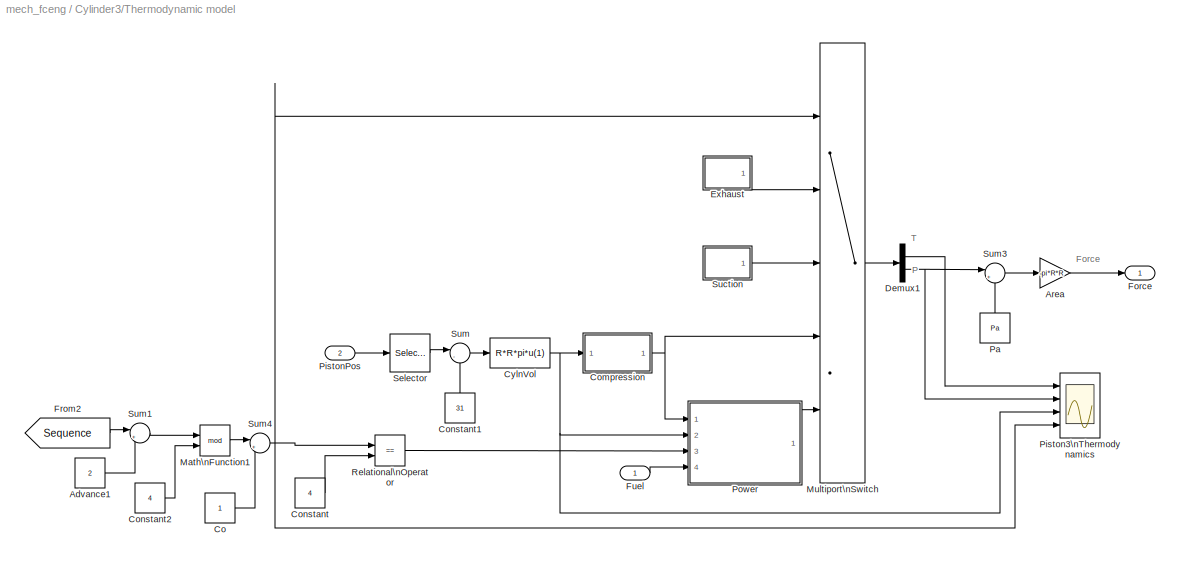
BLOCK [SubSystem] Cylinder3/Thermodynamic model
  FunctionWithSeparateData = off
  MaskHideContents = off
  MinAlgLoopOccurrences = off
  Opaque = off
  Ports = [2, 1]
  PropExecContextOutsideSubsystem = off
  RTWSystemCode = Auto
  RequestExecContextInheritance = off
BLOCK [Constant] Cylinder3/Thermodynamic model/Advance1
  OutDataType = sfix(16)
  OutScaling = 2^0
  Value = 2
BLOCK [Gain] Cylinder3/Thermodynamic model/Area
  Gain = -pi*R*R
  OutDataType = sfix(16)
  OutScaling = 2^0
  ParameterDataType = sfix(16)
  ParameterScaling = 2^0
BLOCK [Constant] Cylinder3/Thermodynamic model/Co
  OutDataType = sfix(16)
  OutScaling = 2^0
BLOCK [SubSystem] Cylinder3/Thermodynamic model/Compression
  FunctionWithSeparateData = off
  MaskHideContents = off
  MinAlgLoopOccurrences = off
  Opaque = off
  Ports = [1, 1]
  PropExecContextOutsideSubsystem = off
  RTWSystemCode = Auto
  RequestExecContextInheritance = off
BLOCK [Mux] Cylinder3/Thermodynamic model/Compression/Mux
  DisplayOption = bar
  Inputs = 2
  Ports = [2, 1]
BLOCK [Fcn] Cylinder3/Thermodynamic model/Compression/P
  Expr = Pa*(Vo/u(1))^G
BLOCK [Fcn] Cylinder3/Thermodynamic model/Compression/T
  Expr = Ta*(Vo/u(1))^(G-1)
BLOCK [Outport] Cylinder3/Thermodynamic model/Compression/T_P
  IconDisplay = Port number
  OutDataType = sfix(16)
  OutScaling = 2^0
BLOCK [Inport] Cylinder3/Thermodynamic model/Compression/Volume
  IconDisplay = Port number
  OutDataType = sfix(16)
  OutScaling = 2^0
BLOCK [Constant] Cylinder3/Thermodynamic model/Constant
  OutDataType = sfix(16)
  OutScaling = 2^0
  Value = 4
BLOCK [Constant] Cylinder3/Thermodynamic model/Constant1
  OutDataType = sfix(16)
  OutScaling = 2^0
  Value = 31
BLOCK [Constant] Cylinder3/Thermodynamic model/Constant2
  OutDataType = sfix(16)
  OutScaling = 2^0
  Value = 4
BLOCK [Fcn] Cylinder3/Thermodynamic model/CylnVol
  Expr = R*R*pi*u(1)
BLOCK [Demux] Cylinder3/Thermodynamic model/Demux1
  Outputs = 2
  Ports = [1, 2]
BLOCK [SubSystem] Cylinder3/Thermodynamic model/Exhaust
  FunctionWithSeparateData = off
  MaskHideContents = off
  MinAlgLoopOccurrences = off
  Opaque = off
  Ports = [0, 1]
  PropExecContextOutsideSubsystem = off
  RTWSystemCode = Auto
  RequestExecContextInheritance = off
  TreatAsAtomicUnit = on
BLOCK [Mux] Cylinder3/Thermodynamic model/Exhaust/Mux
  DisplayOption = bar
  Inputs = 2
  Ports = [2, 1]
BLOCK [Constant] Cylinder3/Thermodynamic model/Exhaust/Pa
  OutDataType = sfix(16)
  OutScaling = 2^0
  Value = Pa
BLOCK [Outport] Cylinder3/Thermodynamic model/Exhaust/T_P
  IconDisplay = Port number
  OutDataType = sfix(16)
  OutScaling = 2^0
BLOCK [Constant] Cylinder3/Thermodynamic model/Exhaust/Ta
  OutDataType = sfix(16)
  OutScaling = 2^0
  Value = Ta
BLOCK [Outport] Cylinder3/Thermodynamic model/Force
  IconDisplay = Port number
  OutDataType = sfix(16)
  OutScaling = 2^0
BLOCK [From] Cylinder3/Thermodynamic model/From2
  CloseFcn = tagdialog Close
  GotoTag = Sequence
BLOCK [Inport] Cylinder3/Thermodynamic model/Fuel
  IconDisplay = Port number
  OutDataType = sfix(16)
  OutScaling = 2^0
BLOCK [Math] Cylinder3/Thermodynamic model/Math\nFunction1
  Operator = mod
  OutDataType = sfix(16)
  OutScaling = 2^0
  Ports = [2, 1]
BLOCK [MultiPortSwitch] Cylinder3/Thermodynamic model/Multiport\nSwitch
  Inputs = 4
  Ports = [5, 1]
  SaturateOnIntegerOverflow = off
BLOCK [Constant] Cylinder3/Thermodynamic model/Pa
  OutDataType = sfix(16)
  OutScaling = 2^0
  Value = Pa
BLOCK [Scope] Cylinder3/Thermodynamic model/Piston3\nThermodynamics
  DataFormat = StructureWithTime
  Floating = off
  NumInputPorts = 4
  Ports = [4]
  SampleTime = 0
  TimeRange = 20
  YMax = 350~200000~1100~4
  YMin = 25~0~0~1
BLOCK [Inport] Cylinder3/Thermodynamic model/PistonPos
  IconDisplay = Port number
  OutDataType = sfix(16)
  OutScaling = 2^0
  Port = 2
BLOCK [SubSystem] Cylinder3/Thermodynamic model/Power
  FunctionWithSeparateData = off
  MaskHideContents = off
  MinAlgLoopOccurrences = off
  Opaque = off
  Ports = [4, 1]
  PropExecContextOutsideSubsystem = off
  RTWSystemCode = Auto
  RequestExecContextInheritance = off
BLOCK [SubSystem] Cylinder3/Thermodynamic model/Power/Combustion
  FunctionWithSeparateData = off
  MaskHideContents = off
  MinAlgLoopOccurrences = off
  Opaque = off
  Ports = [4, 3, 0, 1]
  PropExecContextOutsideSubsystem = off
  RTWSystemCode = Auto
  RequestExecContextInheritance = off
  TreatAsAtomicUnit = on
BLOCK [Fcn] Cylinder3/Thermodynamic model/Power/Combustion/Fcn
  Expr = u(1)/(AirRo*Vtdc*Cv)+u(2)
BLOCK [Fcn] Cylinder3/Thermodynamic model/Power/Combustion/Fcn1
  Expr = u(3)*u(1)/u(2)
BLOCK [Inport] Cylinder3/Thermodynamic model/Power/Combustion/Fuel
  IconDisplay = Port number
  OutDataType = sfix(16)
  OutScaling = 2^0
  Port = 3
BLOCK [Mux] Cylinder3/Thermodynamic model/Power/Combustion/Mux
  DisplayOption = bar
  Inputs = 2
  Ports = [2, 1]
BLOCK [Mux] Cylinder3/Thermodynamic model/Power/Combustion/Mux1
  DisplayOption = bar
  Inputs = 3
  Ports = [3, 1]
BLOCK [Outport] Cylinder3/Thermodynamic model/Power/Combustion/PressureAfterCombustion
  IconDisplay = Port number
  OutDataType = sfix(16)
  OutScaling = 2^0
  Port = 2
BLOCK [Inport] Cylinder3/Thermodynamic model/Power/Combustion/PressureBeforeCombustion
  IconDisplay = Port number
  OutDataType = sfix(16)
  OutScaling = 2^0
  Port = 2
BLOCK [Outport] Cylinder3/Thermodynamic model/Power/Combustion/TemperatureAfterCombustion
  IconDisplay = Port number
  OutDataType = sfix(16)
  OutScaling = 2^0
BLOCK [Inport] Cylinder3/Thermodynamic model/Power/Combustion/TemperatureBeforeCombustion
  IconDisplay = Port number
  OutDataType = sfix(16)
  OutScaling = 2^0
BLOCK [TriggerPort] Cylinder3/Thermodynamic model/Power/Combustion/Trigger
  Ports = []
  ZeroCross = off
BLOCK [Outport] Cylinder3/Thermodynamic model/Power/Combustion/VolumeAfterCombustion
  IconDisplay = Port number
  OutDataType = sfix(16)
  OutScaling = 2^0
  Port = 3
BLOCK [Inport] Cylinder3/Thermodynamic model/Power/Combustion/VolumeBeforeCombustion
  IconDisplay = Port number
  OutDataType = sfix(16)
  OutScaling = 2^0
  Port = 4
BLOCK [Gain] Cylinder3/Thermodynamic model/Power/Combustion/combustion
  Gain = Q
  OutDataType = sfix(16)
  OutScaling = 2^0
  ParameterDataType = sfix(16)
  ParameterScaling = 2^0
BLOCK [Demux] Cylinder3/Thermodynamic model/Power/Demux1
  Outputs = 2
  Ports = [1, 2]
BLOCK [Inport] Cylinder3/Thermodynamic model/Power/Fuel
  IconDisplay = Port number
  OutDataType = sfix(16)
  OutScaling = 2^0
  Port = 4
BLOCK [InitialCondition] Cylinder3/Thermodynamic model/Power/IC
  Value = [Ta;Pa]
BLOCK [SubSystem] Cylinder3/Thermodynamic model/Power/IdealExpansion
  FunctionWithSeparateData = off
  MaskHideContents = off
  MinAlgLoopOccurrences = off
  Opaque = off
  Ports = [4, 2]
  PropExecContextOutsideSubsystem = off
  RTWSystemCode = Auto
  RequestExecContextInheritance = off
  TreatAsAtomicUnit = on
BLOCK [Outport] Cylinder3/Thermodynamic model/Power/IdealExpansion/FPressure
  IconDisplay = Port number
  OutDataType = sfix(16)
  OutScaling = 2^0
  Port = 2
BLOCK [Outport] Cylinder3/Thermodynamic model/Power/IdealExpansion/FTemperature
  IconDisplay = Port number
  OutDataType = sfix(16)
  OutScaling = 2^0
BLOCK [Inport] Cylinder3/Thermodynamic model/Power/IdealExpansion/IVolume
  IconDisplay = Port number
  OutDataType = sfix(16)
  OutScaling = 2^0
  Port = 4
BLOCK [Mux] Cylinder3/Thermodynamic model/Power/IdealExpansion/Mux
  DisplayOption = bar
  Inputs = 3
  Ports = [3, 1]
BLOCK [Mux] Cylinder3/Thermodynamic model/Power/IdealExpansion/Mux1
  DisplayOption = bar
  Inputs = 3
  Ports = [3, 1]
BLOCK [Fcn] Cylinder3/Thermodynamic model/Power/IdealExpansion/P
  Expr = u(1)*(u(3)/u(2))^G
BLOCK [Inport] Cylinder3/Thermodynamic model/Power/IdealExpansion/PressureAfterCombustion
  IconDisplay = Port number
  OutDataType = sfix(16)
  OutScaling = 2^0
  Port = 2
BLOCK [Fcn] Cylinder3/Thermodynamic model/Power/IdealExpansion/T
  Expr = u(1)*(u(3)/u(2))^(G-1)
BLOCK [Inport] Cylinder3/Thermodynamic model/Power/IdealExpansion/TemperatureAfterCombustion
  IconDisplay = Port number
  OutDataType = sfix(16)
  OutScaling = 2^0
BLOCK [Inport] Cylinder3/Thermodynamic model/Power/IdealExpansion/VolumeAfterCombustion
  IconDisplay = Port number
  OutDataType = sfix(16)
  OutScaling = 2^0
  Port = 3
BLOCK [Mux] Cylinder3/Thermodynamic model/Power/Mux
  DisplayOption = bar
  Inputs = 2
  Ports = [2, 1]
BLOCK [Inport] Cylinder3/Thermodynamic model/Power/Spark
  IconDisplay = Port number
  OutDataType = sfix(16)
  OutScaling = 2^0
  Port = 3
BLOCK [Outport] Cylinder3/Thermodynamic model/Power/T_P
  IconDisplay = Port number
  OutDataType = sfix(16)
  OutScaling = 2^0
BLOCK [Inport] Cylinder3/Thermodynamic model/Power/Temperature_Pressure
  IconDisplay = Port number
  OutDataType = sfix(16)
  OutScaling = 2^0
BLOCK [Inport] Cylinder3/Thermodynamic model/Power/Volume
  IconDisplay = Port number
  OutDataType = sfix(16)
  OutScaling = 2^0
  Port = 2
BLOCK [RelationalOperator] Cylinder3/Thermodynamic model/Relational\nOperator
  Operator = ==
  ZeroCross = off
BLOCK [Selector] Cylinder3/Thermodynamic model/Selector
  IndexOptions = Index vector (dialog)
  Indices = 2
  InputPortWidth = 3
  OutputSizes = 1
  Ports = [1, 1]
BLOCK [SubSystem] Cylinder3/Thermodynamic model/Suction
  FunctionWithSeparateData = off
  MaskHideContents = off
  MinAlgLoopOccurrences = off
  Opaque = off
  Ports = [0, 1]
  PropExecContextOutsideSubsystem = off
  RTWSystemCode = Auto
  RequestExecContextInheritance = off
  TreatAsAtomicUnit = on
BLOCK [Mux] Cylinder3/Thermodynamic model/Suction/Mux
  DisplayOption = bar
  Inputs = 2
  Ports = [2, 1]
BLOCK [Constant] Cylinder3/Thermodynamic model/Suction/Pa
  OutDataType = sfix(16)
  OutScaling = 2^0
  Value = Pa
BLOCK [Outport] Cylinder3/Thermodynamic model/Suction/T_P
  IconDisplay = Port number
  OutDataType = sfix(16)
  OutScaling = 2^0
BLOCK [Constant] Cylinder3/Thermodynamic model/Suction/Ta
  OutDataType = sfix(16)
  OutScaling = 2^0
  Value = Ta
BLOCK [Sum] Cylinder3/Thermodynamic model/Sum
  IconShape = round
  Inputs = |-+
  OutDataType = sfix(16)
  OutScaling = 2^0
  Ports = [2, 1]
BLOCK [Sum] Cylinder3/Thermodynamic model/Sum1
  IconShape = round
  Inputs = |++
  OutDataType = sfix(16)
  OutScaling = 2^0
  Ports = [2, 1]
BLOCK [Sum] Cylinder3/Thermodynamic model/Sum3
  IconShape = round
  Inputs = |+-
  OutDataType = sfix(16)
  OutScaling = 2^0
  Ports = [2, 1]
BLOCK [Sum] Cylinder3/Thermodynamic model/Sum4
  IconShape = round
  Inputs = |++
  OutDataType = sfix(16)
  OutScaling = 2^0
  Ports = [2, 1]
BLOCK [Gain] Cylinder3/gmf2N
  Gain = 9.81/1000
  OutDataType = sfix(16)
  OutScaling = 2^0
  ParameterDataType = sfix(16)
  ParameterScaling = 2^0
BLOCK [Gain] Cylinder3/m2cm
  Gain = 100
  OutDataType = sfix(16)
  OutScaling = 2^0
  ParameterDataType = sfix(16)
  ParameterScaling = 2^0
BLOCK [SubSystem] Cylinder4
  FunctionWithSeparateData = off
  MaskDisplay = image(crodassm);
  MaskHideContents = off
  MaskIconFrame = on
  MaskIconOpaque = on
  MaskIconRotate = none
  MaskIconUnits = autoscale
  MinAlgLoopOccurrences = off
  Opaque = off
  Ports = [1, 0, 0, 0, 0, 0, 1]
  PropExecContextOutsideSubsystem = off
  RTWSystemCode = Auto
  RequestExecContextInheritance = off
BLOCK [Reference] Cylinder4/Body Sensor1  REF=mblibv1/Sensors & \nActuators/Body Sensor
  Acceleration = off
  AccelerationUnits = m/s^2
  ActiveIO = on
  Angle = on
  AngleUnits = deg
  ArcAcceleration = off
  ArcAccelerationUnits = deg/s^2
  ArcVelocity = off
  ArcVelocityUnits = deg/s
  ClassName = BodySensor
  CoordPosition = on
  CoordPositionUnits = m
  DialogClass = MechanicalSensorBlock
  DialogController = MECH.DynMechDlgSource
  FunctionWithSeparateData = off
  Muxed = on
  OutputVector = [1]
  PhysicalDomain = Mechanical
  PortType = blob
  Ports = [0, 1, 0, 0, 0, 1]
  Pose = off
  Quaternion = on
  QuaternionDDT = off
  QuaternionDT = off
  QuaternionUnits = off
  RTWMemSecDataConstants = Inherit from model
  RTWMemSecDataInternal = Inherit from model
  RTWMemSecDataParameters = Inherit from model
  RTWMemSecFuncExecute = Inherit from model
  RTWMemSecFuncInitTerm = Inherit from model
  ReferenceFrame = Absolute (INERTIAL)
  ShowPortLabels = FromPortIcon
  SourceBlock = mblibv1/Sensors & \nActuators/Body Sensor
  SourceType = Body Sensor
  SystemSampleTime = -1
  Velocity = off
  VelocityUnits = m/s
  Width = 3
BLOCK [Reference] Cylinder4/Body Sensor2  REF=mblibv1/Sensors & \nActuators/Body Sensor
  Acceleration = off
  AccelerationUnits = m/s^2
  ActiveIO = on
  Angle = on
  AngleUnits = deg
  ArcAcceleration = off
  ArcAccelerationUnits = deg/s^2
  ArcVelocity = off
  ArcVelocityUnits = deg/s
  ClassName = BodySensor
  CoordPosition = on
  CoordPositionUnits = m
  DialogClass = MechanicalSensorBlock
  DialogController = MECH.DynMechDlgSource
  FunctionWithSeparateData = off
  Muxed = off
  OutputVector = [ 3 9 ]
  PhysicalDomain = Mechanical
  PortType = blob
  Ports = [0, 2, 0, 0, 0, 1]
  Pose = on
  Quaternion = on
  QuaternionDDT = off
  QuaternionDT = off
  QuaternionUnits = off
  RTWMemSecDataConstants = Inherit from model
  RTWMemSecDataInternal = Inherit from model
  RTWMemSecDataParameters = Inherit from model
  RTWMemSecFuncExecute = Inherit from model
  RTWMemSecFuncInitTerm = Inherit from model
  ReferenceFrame = Absolute (World)
  ShowPortLabels = FromPortIcon
  SourceBlock = mblibv1/Sensors & \nActuators/Body Sensor
  SourceType = Body Sensor
  SystemSampleTime = -1
  Velocity = off
  VelocityUnits = m/s
  Width = 12
BLOCK [Reference] Cylinder4/ConnectingRod  REF=mblibv1/Bodies/Body
  AttachedToCS = 1
  BodyColor = [0.5 0.5 0.5]
  CG = Left$CG$[18 11.35 -2.70]$WORLD$WORLD$cm$[0 0 0]$Euler X-Y-Z$deg$WORLD$false
  CGPos = [18 11.35 -2.70]
  CGRot = [0 0 0]
  CS0Pos = []
  CS0Rot = []
  CS10Pos = []
  CS10Rot = []
  CS11Pos = []
  CS11Rot = []
  CS12Pos = []
  CS12Rot = []
  CS13Pos = []
  CS13Rot = []
  CS14Pos = []
  CS14Rot = []
  CS15Pos = []
  CS15Rot = []
  CS16Pos = []
  CS16Rot = []
  CS17Pos = []
  CS17Rot = []
  CS18Pos = []
  CS18Rot = []
  CS19Pos = []
  CS19Rot = []
  CS1Pos = [18 4.24 -4.24]
  CS1Rot = [0 0 0]
  CS20Pos = []
  CS20Rot = []
  CS2Pos = [18 23.79 0]
  CS2Rot = [0 0 0]
  CS3Pos = [18 4.24 -4.24]
  CS3Rot = [0 0 0]
  CS4Pos = []
  CS4Rot = []
  CS5Pos = []
  CS5Rot = []
  CS6Pos = []
  CS6Rot = []
  CS7Pos = []
  CS7Rot = []
  CS8Pos = []
  CS8Rot = []
  CS9Pos = []
  CS9Rot = []
  ClassName = Body
  Density = 1
  DensityUnits = kg/m^3
  DensityUse = false
  DialogClass = MechanicalBodyBlock
  DialogController = MECH.DynMechDlgSource
  GraphicsMode = 1
  GraphicsObj = []
  Inertia = [37007.64 0 -0.01;0 2936.99 7181.27;-0.01 7181.27 34460.53]*1E-7
  InertiaUnits = kg*m^2
  LConnTagsString = CS1
  LeftPortType = workingframe
  Mass = 676.73
  MassUnits = g
  PhysicalDomain = mechanical
  Ports = [0, 0, 0, 0, 0, 1, 2]
  RConnTagsString = CS2|CS3
  RightPortType = workingframe
  Shape = Cylinder
  ShapeDims = [1 1]
  ShapeUnits = m
  ShapeUse = false
  SourceBlock = mblibv1/Bodies/Body
  SourceType = Body
  SubClassName = Unknown
  WorkingFrames = Left$CS1$[18 4.24 -4.24]$WORLD$WORLD$cm$[0 0 0]$Euler X-Y-Z$deg$WORLD$true#Right$CS2$[18 23.79 0]$WORLD$WORLD$cm$[0 0 0]$Euler X-Y-Z$deg$WORLD$true#Right$CS3$[18 4.24 -4.24]$WORLD$WORLD$cm$[0 0 0]$Euler X-Y-Z$deg$WORLD$true
BLOCK [Reference] Cylinder4/Engine Block  REF=mblibv1/Bodies/Ground
  ClassName = Ground
  CoordPosition = [23 23.79 0]
  CoordPositionUnits = cm
  DialogClass = GroundBlock
  DialogController = MECH.DynMechDlgSource
  FunctionWithSeparateData = off
  LeftPortType = env
  MachineId = [0 0]
  PhysicalDomain = Mechanical
  Ports = [0, 0, 0, 0, 0, 0, 1]
  RTWMemSecDataConstants = Inherit from model
  RTWMemSecDataInternal = Inherit from model
  RTWMemSecDataParameters = Inherit from model
  RTWMemSecFuncExecute = Inherit from model
  RTWMemSecFuncInitTerm = Inherit from model
  RightPortType = workingframe
  ShowEnvPort = off
  ShowPortLabels = FromPortIcon
  SourceBlock = mblibv1/Bodies/Ground
  SourceType = Ground
  StateVectorMgrId = -1
  SystemSampleTime = -1
  UserData = DataTag3
  UserDataPersistent = on
BLOCK [Inport] Cylinder4/Fuel
  IconDisplay = Port number
  OutDataType = sfix(16)
  OutScaling = 2^0
BLOCK [Goto] Cylinder4/Goto1
  GotoTag = CR4R
  TagVisibility = global
BLOCK [Goto] Cylinder4/Goto7
  GotoTag = CR4T
  TagVisibility = global
BLOCK [Goto] Cylinder4/Goto8
  GotoTag = P4T
  TagVisibility = global
BLOCK [Reference] Cylinder4/Joint Actuator  REF=mblibv1/Sensors & \nActuators/Joint Actuator
  AccelerationUnits = m/s^2
  ActiveIO = on
  ActuationStyle = Force
  AngleUnits = deg
  ArcAccelerationUnits = deg/s^2
  ArcVelocityUnits = deg/s
  ClassName = JointActuator
  CoordPositionUnits = m
  DialogClass = MechanicalActuatorBlock
  DialogController = MECH.DynMechDlgSource
  ForceUnits = N
  FunctionWithSeparateData = off
  PhysicalDomain = Mechanical
  PortType = blob
  Ports = [1, 0, 0, 0, 0, 0, 1]
  Primitive = P1
  RTWMemSecDataConstants = Inherit from model
  RTWMemSecDataInternal = Inherit from model
  RTWMemSecDataParameters = Inherit from model
  RTWMemSecFuncExecute = Inherit from model
  RTWMemSecFuncInitTerm = Inherit from model
  ReferenceFrame = Absolute (INERTIAL)
  ShowPortLabels = FromPortIcon
  SourceBlock = mblibv1/Sensors & \nActuators/Joint Actuator
  SourceType = Joint Actuator
  SystemSampleTime = -1
  TorqueUnits = N-m
  VelocityUnits = m/s
  Width = 1
BLOCK [Reference] Cylinder4/Piston  REF=mblibv1/Bodies/Body
  AttachedToCS = 1
  BodyColor = [0.5 0.5 0.5]
  CG = Left$CG$[18 24.51 0]$WORLD$WORLD$cm$[0 0 0]$Euler X-Y-Z$deg$WORLD$false
  CGPos = [18 24.51 0]
  CGRot = [0 0 0]
  CS0Pos = []
  CS0Rot = []
  CS10Pos = []
  CS10Rot = []
  CS11Pos = []
  CS11Rot = []
  CS12Pos = []
  CS12Rot = []
  CS13Pos = []
  CS13Rot = []
  CS14Pos = []
  CS14Rot = []
  CS15Pos = []
  CS15Rot = []
  CS16Pos = []
  CS16Rot = []
  CS17Pos = []
  CS17Rot = []
  CS18Pos = []
  CS18Rot = []
  CS19Pos = []
  CS19Rot = []
  CS1Pos = [18 23.79 0]
  CS1Rot = [0 0 0]
  CS20Pos = []
  CS20Rot = []
  CS2Pos = [23 23.79 0]
  CS2Rot = [0 0 0]
  CS3Pos = [18 23.79 0]
  CS3Rot = [0 0 0]
  CS4Pos = [18 23.79+4 0]
  CS4Rot = [0 0 0]
  CS5Pos = []
  CS5Rot = []
  CS6Pos = []
  CS6Rot = []
  CS7Pos = []
  CS7Rot = []
  CS8Pos = []
  CS8Rot = []
  CS9Pos = []
  CS9Rot = []
  ClassName = Body
  Density = 1
  DensityUnits = kg/m^3
  DensityUse = false
  DialogClass = MechanicalBodyBlock
  DialogController = MECH.DynMechDlgSource
  GraphicsMode = 1
  GraphicsObj = []
  Inertia = [39798.30 0.06 -0.01;0.06 49173.25 -0.04;-0.01 -0.04 39108.48]*1E-7
  InertiaUnits = kg*m^2
  LConnTagsString = CS1|CS3
  LeftPortType = workingframe
  Mass = 3490.25
  MassUnits = g
  PhysicalDomain = mechanical
  Ports = [0, 0, 0, 0, 0, 2, 2]
  RConnTagsString = CS2|CS4
  RightPortType = workingframe
  Shape = Cylinder
  ShapeDims = [1 1]
  ShapeUnits = m
  ShapeUse = false
  SourceBlock = mblibv1/Bodies/Body
  SourceType = Body
  SubClassName = Unknown
  WorkingFrames = Left$CS1$[18 23.79 0]$WORLD$WORLD$cm$[0 0 0]$Euler X-Y-Z$deg$WORLD$true#Right$CS2$[23 23.79 0]$WORLD$WORLD$cm$[0 0 0]$Euler X-Y-Z$deg$WORLD$true#Left$CS3$[18 23.79 0]$WORLD$WORLD$cm$[0 0 0]$Euler X-Y-Z$deg$WORLD$true#Right$CS4$[18 23.79+4 0]$WORLD$WORLD$cm$[0 0 0]$Euler X-Y-Z$deg$WORLD$true
BLOCK [Reference] Cylinder4/Piston Head\nPosition  REF=mblibv1/Sensors & \nActuators/Body Sensor
  Acceleration = off
  AccelerationUnits = m/s^2
  ActiveIO = on
  Angle = on
  AngleUnits = deg
  ArcAcceleration = off
  ArcAccelerationUnits = deg/s^2
  ArcVelocity = off
  ArcVelocityUnits = deg/s
  ClassName = BodySensor
  CoordPosition = on
  CoordPositionUnits = m
  DialogClass = MechanicalSensorBlock
  DialogController = MECH.DynMechDlgSource
  FunctionWithSeparateData = off
  Muxed = on
  OutputVector = [1]
  PhysicalDomain = Mechanical
  PortType = blob
  Ports = [0, 1, 0, 0, 0, 1]
  Pose = off
  Quaternion = on
  QuaternionDDT = off
  QuaternionDT = off
  QuaternionUnits = off
  RTWMemSecDataConstants = Inherit from model
  RTWMemSecDataInternal = Inherit from model
  RTWMemSecDataParameters = Inherit from model
  RTWMemSecFuncExecute = Inherit from model
  RTWMemSecFuncInitTerm = Inherit from model
  ReferenceFrame = Absolute (World)
  ShowPortLabels = FromPortIcon
  SourceBlock = mblibv1/Sensors & \nActuators/Body Sensor
  SourceType = Body Sensor
  SystemSampleTime = -1
  Velocity = off
  VelocityUnits = m/s
  Width = 3
BLOCK [Reference] Cylinder4/Prismatic1  REF=mblibv1/Joints/Prismatic
  ClassName = Joint
  CutJoint = off
  DialogClass = JointBlock
  DialogController = MECH.DynMechDlgSource
  LConnTagsString = __newl0|SA1
  LeftPortType = blob
  MarkAsCut = off
  NumSAPorts = 1
  P1Axis = [0 1 0]
  PhysicalDomain = mechanical
  Ports = [0, 0, 0, 0, 0, 2, 1]
  PrimitiveProps = P1$WORLD$[0 1 0]$prismatic
  Primitives = prismatic
  RConnTagsString = __newr0
  RightPortType = blob
  SourceBlock = mblibv1/Joints/Prismatic
  SourceType = Prismatic
  SubClassName = Unknown
BLOCK [Reference] Cylinder4/Revolute3  REF=mblibv1/Joints/Revolute
  ClassName = Joint
  CutJoint = off
  DialogClass = JointBlock
  DialogController = MECH.DynMechDlgSource
  LConnTagsString = __newl0
  LeftPortType = blob
  MarkAsCut = off
  NumSAPorts = 0
  PhysicalDomain = mechanical
  Ports = [0, 0, 0, 0, 0, 1, 1]
  PrimitiveProps = R1$WORLD$[1 0 0]$revolute
  Primitives = revolute
  R1Axis = [1 0 0]
  RConnTagsString = __newr0
  RightPortType = blob
  SourceBlock = mblibv1/Joints/Revolute
  SourceType = Revolute
  SubClassName = Unknown
BLOCK [Reference] Cylinder4/Revolute4  REF=mblibv1/Joints/Revolute
  ClassName = Joint
  CutJoint = on
  DialogClass = JointBlock
  DialogController = MECH.DynMechDlgSource
  LConnTagsString = __newl0
  LeftPortType = blob
  MarkAsCut = off
  NumSAPorts = 0
  PhysicalDomain = mechanical
  Ports = [0, 0, 0, 0, 0, 1, 1]
  PrimitiveProps = R1$WORLD$[1 0 0]$revolute
  Primitives = revolute
  R1Axis = [1 0 0]
  RConnTagsString = __newr0
  RightPortType = blob
  SourceBlock = mblibv1/Joints/Revolute
  SourceType = Revolute
  SubClassName = Unknown
BLOCK [PMIOPort] Cylinder4/Rod4
  Port = 1
  Side = Right
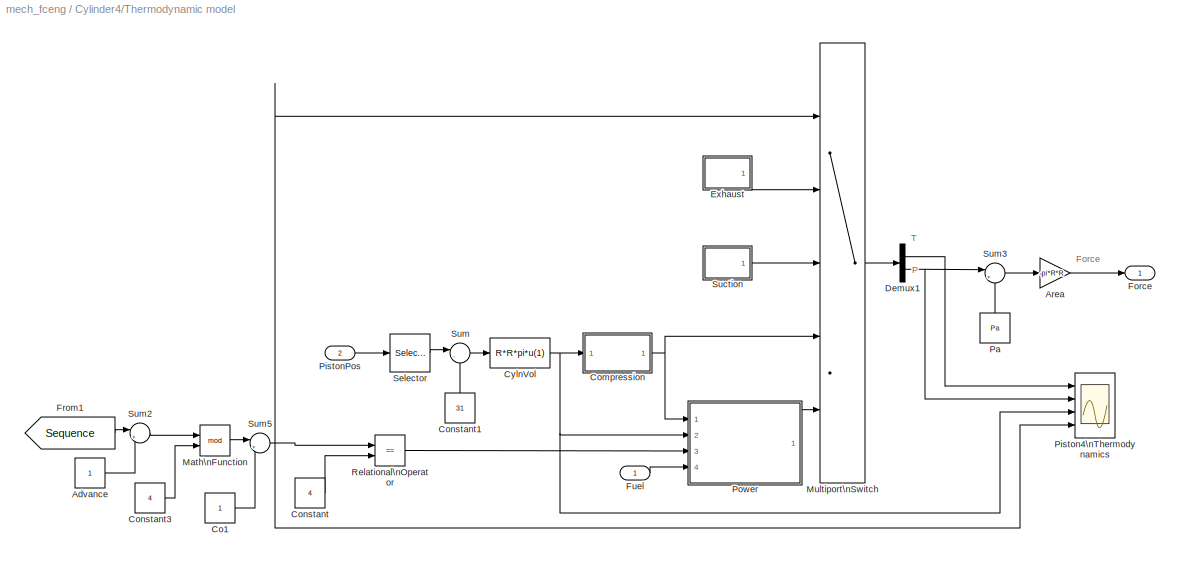
BLOCK [SubSystem] Cylinder4/Thermodynamic model
  FunctionWithSeparateData = off
  MaskHideContents = off
  MinAlgLoopOccurrences = off
  Opaque = off
  Ports = [2, 1]
  PropExecContextOutsideSubsystem = off
  RTWSystemCode = Auto
  RequestExecContextInheritance = off
BLOCK [Constant] Cylinder4/Thermodynamic model/Advance
  OutDataType = sfix(16)
  OutScaling = 2^0
BLOCK [Gain] Cylinder4/Thermodynamic model/Area
  Gain = -pi*R*R
  OutDataType = sfix(16)
  OutScaling = 2^0
  ParameterDataType = sfix(16)
  ParameterScaling = 2^0
BLOCK [Constant] Cylinder4/Thermodynamic model/Co1
  OutDataType = sfix(16)
  OutScaling = 2^0
BLOCK [SubSystem] Cylinder4/Thermodynamic model/Compression
  FunctionWithSeparateData = off
  MaskHideContents = off
  MinAlgLoopOccurrences = off
  Opaque = off
  Ports = [1, 1]
  PropExecContextOutsideSubsystem = off
  RTWSystemCode = Auto
  RequestExecContextInheritance = off
BLOCK [Mux] Cylinder4/Thermodynamic model/Compression/Mux
  DisplayOption = bar
  Inputs = 2
  Ports = [2, 1]
BLOCK [Fcn] Cylinder4/Thermodynamic model/Compression/P
  Expr = Pa*(Vo/u(1))^G
BLOCK [Fcn] Cylinder4/Thermodynamic model/Compression/T
  Expr = Ta*(Vo/u(1))^(G-1)
BLOCK [Outport] Cylinder4/Thermodynamic model/Compression/T_P
  IconDisplay = Port number
  OutDataType = sfix(16)
  OutScaling = 2^0
BLOCK [Inport] Cylinder4/Thermodynamic model/Compression/Volume
  IconDisplay = Port number
  OutDataType = sfix(16)
  OutScaling = 2^0
BLOCK [Constant] Cylinder4/Thermodynamic model/Constant
  OutDataType = sfix(16)
  OutScaling = 2^0
  Value = 4
BLOCK [Constant] Cylinder4/Thermodynamic model/Constant1
  OutDataType = sfix(16)
  OutScaling = 2^0
  Value = 31
BLOCK [Constant] Cylinder4/Thermodynamic model/Constant3
  OutDataType = sfix(16)
  OutScaling = 2^0
  Value = 4
BLOCK [Fcn] Cylinder4/Thermodynamic model/CylnVol
  Expr = R*R*pi*u(1)
BLOCK [Demux] Cylinder4/Thermodynamic model/Demux1
  Outputs = 2
  Ports = [1, 2]
BLOCK [SubSystem] Cylinder4/Thermodynamic model/Exhaust
  FunctionWithSeparateData = off
  MaskHideContents = off
  MinAlgLoopOccurrences = off
  Opaque = off
  Ports = [0, 1]
  PropExecContextOutsideSubsystem = off
  RTWSystemCode = Auto
  RequestExecContextInheritance = off
  TreatAsAtomicUnit = on
BLOCK [Mux] Cylinder4/Thermodynamic model/Exhaust/Mux
  DisplayOption = bar
  Inputs = 2
  Ports = [2, 1]
BLOCK [Constant] Cylinder4/Thermodynamic model/Exhaust/Pa
  OutDataType = sfix(16)
  OutScaling = 2^0
  Value = Pa
BLOCK [Outport] Cylinder4/Thermodynamic model/Exhaust/T_P
  IconDisplay = Port number
  OutDataType = sfix(16)
  OutScaling = 2^0
BLOCK [Constant] Cylinder4/Thermodynamic model/Exhaust/Ta
  OutDataType = sfix(16)
  OutScaling = 2^0
  Value = Ta
BLOCK [Outport] Cylinder4/Thermodynamic model/Force
  IconDisplay = Port number
  OutDataType = sfix(16)
  OutScaling = 2^0
BLOCK [From] Cylinder4/Thermodynamic model/From1
  CloseFcn = tagdialog Close
  GotoTag = Sequence
BLOCK [Inport] Cylinder4/Thermodynamic model/Fuel
  IconDisplay = Port number
  OutDataType = sfix(16)
  OutScaling = 2^0
BLOCK [Math] Cylinder4/Thermodynamic model/Math\nFunction
  Operator = mod
  OutDataType = sfix(16)
  OutScaling = 2^0
  Ports = [2, 1]
BLOCK [MultiPortSwitch] Cylinder4/Thermodynamic model/Multiport\nSwitch
  Inputs = 4
  Ports = [5, 1]
  SaturateOnIntegerOverflow = off
BLOCK [Constant] Cylinder4/Thermodynamic model/Pa
  OutDataType = sfix(16)
  OutScaling = 2^0
  Value = Pa
BLOCK [Scope] Cylinder4/Thermodynamic model/Piston4\nThermodynamics
  DataFormat = StructureWithTime
  Floating = off
  NumInputPorts = 4
  Ports = [4]
  SampleTime = 0
  YMax = 4500~2.5e+006~1100~4
  YMin = 0~0~0~1
BLOCK [Inport] Cylinder4/Thermodynamic model/PistonPos
  IconDisplay = Port number
  OutDataType = sfix(16)
  OutScaling = 2^0
  Port = 2
BLOCK [SubSystem] Cylinder4/Thermodynamic model/Power
  FunctionWithSeparateData = off
  MaskHideContents = off
  MinAlgLoopOccurrences = off
  Opaque = off
  Ports = [4, 1]
  PropExecContextOutsideSubsystem = off
  RTWSystemCode = Auto
  RequestExecContextInheritance = off
BLOCK [SubSystem] Cylinder4/Thermodynamic model/Power/Combustion
  FunctionWithSeparateData = off
  MaskHideContents = off
  MinAlgLoopOccurrences = off
  Opaque = off
  Ports = [4, 3, 0, 1]
  PropExecContextOutsideSubsystem = off
  RTWSystemCode = Auto
  RequestExecContextInheritance = off
  TreatAsAtomicUnit = on
BLOCK [Fcn] Cylinder4/Thermodynamic model/Power/Combustion/Fcn
  Expr = u(1)/(AirRo*Vtdc*Cv)+u(2)
BLOCK [Fcn] Cylinder4/Thermodynamic model/Power/Combustion/Fcn1
  Expr = u(3)*u(1)/u(2)
BLOCK [Inport] Cylinder4/Thermodynamic model/Power/Combustion/Fuel
  IconDisplay = Port number
  OutDataType = sfix(16)
  OutScaling = 2^0
  Port = 3
BLOCK [Mux] Cylinder4/Thermodynamic model/Power/Combustion/Mux
  DisplayOption = bar
  Inputs = 2
  Ports = [2, 1]
BLOCK [Mux] Cylinder4/Thermodynamic model/Power/Combustion/Mux1
  DisplayOption = bar
  Inputs = 3
  Ports = [3, 1]
BLOCK [Outport] Cylinder4/Thermodynamic model/Power/Combustion/PressureAfterCombustion
  IconDisplay = Port number
  OutDataType = sfix(16)
  OutScaling = 2^0
  Port = 2
BLOCK [Inport] Cylinder4/Thermodynamic model/Power/Combustion/PressureBeforeCombustion
  IconDisplay = Port number
  OutDataType = sfix(16)
  OutScaling = 2^0
  Port = 2
BLOCK [Outport] Cylinder4/Thermodynamic model/Power/Combustion/TemperatureAfterCombustion
  IconDisplay = Port number
  OutDataType = sfix(16)
  OutScaling = 2^0
BLOCK [Inport] Cylinder4/Thermodynamic model/Power/Combustion/TemperatureBeforeCombustion
  IconDisplay = Port number
  OutDataType = sfix(16)
  OutScaling = 2^0
BLOCK [TriggerPort] Cylinder4/Thermodynamic model/Power/Combustion/Trigger
  Ports = []
  ZeroCross = off
BLOCK [Outport] Cylinder4/Thermodynamic model/Power/Combustion/VolumeAfterCombustion
  IconDisplay = Port number
  OutDataType = sfix(16)
  OutScaling = 2^0
  Port = 3
BLOCK [Inport] Cylinder4/Thermodynamic model/Power/Combustion/VolumeBeforeCombustion
  IconDisplay = Port number
  OutDataType = sfix(16)
  OutScaling = 2^0
  Port = 4
BLOCK [Gain] Cylinder4/Thermodynamic model/Power/Combustion/combustion
  Gain = Q
  OutDataType = sfix(16)
  OutScaling = 2^0
  ParameterDataType = sfix(16)
  ParameterScaling = 2^0
BLOCK [Demux] Cylinder4/Thermodynamic model/Power/Demux1
  Outputs = 2
  Ports = [1, 2]
BLOCK [Inport] Cylinder4/Thermodynamic model/Power/Fuel
  IconDisplay = Port number
  OutDataType = sfix(16)
  OutScaling = 2^0
  Port = 4
BLOCK [InitialCondition] Cylinder4/Thermodynamic model/Power/IC
  Value = [Ta;Pa]
BLOCK [SubSystem] Cylinder4/Thermodynamic model/Power/IdealExpansion
  FunctionWithSeparateData = off
  MaskHideContents = off
  MinAlgLoopOccurrences = off
  Opaque = off
  Ports = [4, 2]
  PropExecContextOutsideSubsystem = off
  RTWSystemCode = Auto
  RequestExecContextInheritance = off
  TreatAsAtomicUnit = on
BLOCK [Outport] Cylinder4/Thermodynamic model/Power/IdealExpansion/FPressure
  IconDisplay = Port number
  OutDataType = sfix(16)
  OutScaling = 2^0
  Port = 2
BLOCK [Outport] Cylinder4/Thermodynamic model/Power/IdealExpansion/FTemperature
  IconDisplay = Port number
  OutDataType = sfix(16)
  OutScaling = 2^0
BLOCK [Inport] Cylinder4/Thermodynamic model/Power/IdealExpansion/IVolume
  IconDisplay = Port number
  OutDataType = sfix(16)
  OutScaling = 2^0
  Port = 4
BLOCK [Mux] Cylinder4/Thermodynamic model/Power/IdealExpansion/Mux
  DisplayOption = bar
  Inputs = 3
  Ports = [3, 1]
BLOCK [Mux] Cylinder4/Thermodynamic model/Power/IdealExpansion/Mux1
  DisplayOption = bar
  Inputs = 3
  Ports = [3, 1]
BLOCK [Fcn] Cylinder4/Thermodynamic model/Power/IdealExpansion/P
  Expr = u(1)*(u(3)/u(2))^G
BLOCK [Inport] Cylinder4/Thermodynamic model/Power/IdealExpansion/PressureAfterCombustion
  IconDisplay = Port number
  OutDataType = sfix(16)
  OutScaling = 2^0
  Port = 2
BLOCK [Fcn] Cylinder4/Thermodynamic model/Power/IdealExpansion/T
  Expr = u(1)*(u(3)/u(2))^(G-1)
BLOCK [Inport] Cylinder4/Thermodynamic model/Power/IdealExpansion/TemperatureAfterCombustion
  IconDisplay = Port number
  OutDataType = sfix(16)
  OutScaling = 2^0
BLOCK [Inport] Cylinder4/Thermodynamic model/Power/IdealExpansion/VolumeAfterCombustion
  IconDisplay = Port number
  OutDataType = sfix(16)
  OutScaling = 2^0
  Port = 3
BLOCK [Mux] Cylinder4/Thermodynamic model/Power/Mux
  DisplayOption = bar
  Inputs = 2
  Ports = [2, 1]
BLOCK [Inport] Cylinder4/Thermodynamic model/Power/Spark
  IconDisplay = Port number
  OutDataType = sfix(16)
  OutScaling = 2^0
  Port = 3
BLOCK [Outport] Cylinder4/Thermodynamic model/Power/T_P
  IconDisplay = Port number
  OutDataType = sfix(16)
  OutScaling = 2^0
BLOCK [Inport] Cylinder4/Thermodynamic model/Power/Temperature_Pressure
  IconDisplay = Port number
  OutDataType = sfix(16)
  OutScaling = 2^0
BLOCK [Inport] Cylinder4/Thermodynamic model/Power/Volume
  IconDisplay = Port number
  OutDataType = sfix(16)
  OutScaling = 2^0
  Port = 2
BLOCK [RelationalOperator] Cylinder4/Thermodynamic model/Relational\nOperator
  Operator = ==
  ZeroCross = off
BLOCK [Selector] Cylinder4/Thermodynamic model/Selector
  IndexOptions = Index vector (dialog)
  Indices = 2
  InputPortWidth = 3
  OutputSizes = 1
  Ports = [1, 1]
BLOCK [SubSystem] Cylinder4/Thermodynamic model/Suction
  FunctionWithSeparateData = off
  MaskHideContents = off
  MinAlgLoopOccurrences = off
  Opaque = off
  Ports = [0, 1]
  PropExecContextOutsideSubsystem = off
  RTWSystemCode = Auto
  RequestExecContextInheritance = off
  TreatAsAtomicUnit = on
BLOCK [Mux] Cylinder4/Thermodynamic model/Suction/Mux
  DisplayOption = bar
  Inputs = 2
  Ports = [2, 1]
BLOCK [Constant] Cylinder4/Thermodynamic model/Suction/Pa
  OutDataType = sfix(16)
  OutScaling = 2^0
  Value = Pa
BLOCK [Outport] Cylinder4/Thermodynamic model/Suction/T_P
  IconDisplay = Port number
  OutDataType = sfix(16)
  OutScaling = 2^0
BLOCK [Constant] Cylinder4/Thermodynamic model/Suction/Ta
  OutDataType = sfix(16)
  OutScaling = 2^0
  Value = Ta
BLOCK [Sum] Cylinder4/Thermodynamic model/Sum
  IconShape = round
  Inputs = |-+
  OutDataType = sfix(16)
  OutScaling = 2^0
  Ports = [2, 1]
BLOCK [Sum] Cylinder4/Thermodynamic model/Sum2
  IconShape = round
  Inputs = |++
  OutDataType = sfix(16)
  OutScaling = 2^0
  Ports = [2, 1]
BLOCK [Sum] Cylinder4/Thermodynamic model/Sum3
  IconShape = round
  Inputs = |+-
  OutDataType = sfix(16)
  OutScaling = 2^0
  Ports = [2, 1]
BLOCK [Sum] Cylinder4/Thermodynamic model/Sum5
  IconShape = round
  Inputs = |++
  OutDataType = sfix(16)
  OutScaling = 2^0
  Ports = [2, 1]
BLOCK [Gain] Cylinder4/gmf2N
  Gain = 9.81/1000
  OutDataType = sfix(16)
  OutScaling = 2^0
  ParameterDataType = sfix(16)
  ParameterScaling = 2^0
BLOCK [Gain] Cylinder4/m2cm
  Gain = 100
  OutDataType = sfix(16)
  OutScaling = 2^0
  ParameterDataType = sfix(16)
  ParameterScaling = 2^0
BLOCK [Demux] Demux
  Ports = [1, 4]
BLOCK [SubSystem] Engine Block
  FunctionWithSeparateData = off
  MaskDisplay = image(crank);
  MaskHideContents = off
  MaskIconFrame = on
  MaskIconOpaque = on
  MaskIconRotate = none
  MaskIconUnits = autoscale
  MinAlgLoopOccurrences = off
  Opaque = off
  Ports = [0, 0, 0, 0, 0, 1, 4]
  PropExecContextOutsideSubsystem = off
  RTWSystemCode = Auto
  RequestExecContextInheritance = off
BLOCK [Reference] Engine Block/Angle sensor  REF=mblibv1/Sensors & \nActuators/Joint Sensor
  Acceleration = off
  AccelerationUnits = m/s^2
  ActiveIO = on
  Angle = on
  AngleUnits = rad
  ArcAcceleration = off
  ArcAccelerationUnits = deg/s^2
  ArcVelocity = on
  ArcVelocityUnits = rad/s
  ClassName = JointSensor
  CoordPosition = on
  CoordPositionUnits = m
  DialogClass = MechanicalSensorBlock
  DialogController = MECH.DynMechDlgSource
  Force = off
  ForceUnits = N
  FunctionWithSeparateData = off
  Muxed = off
  OutputVector = [ 1 1 ]
  PhysicalDomain = Mechanical
  PortType = blob
  Ports = [0, 2, 0, 0, 0, 1]
  Pose = on
  Primitive = R1
  Quaternion = on
  QuaternionDDT = off
  QuaternionDT = off
  QuaternionUnits = off
  RTWMemSecDataConstants = Inherit from model
  RTWMemSecDataInternal = Inherit from model
  RTWMemSecDataParameters = Inherit from model
  RTWMemSecFuncExecute = Inherit from model
  RTWMemSecFuncInitTerm = Inherit from model
  ReactionForce = off
  ReactionForceUnits = N
  ReactionMoment = off
  ReactionMomentUnits = N-m
  ReactionReferenceFrame = Absolute (World)
  ReactionSensedSide = Base
  ReferenceFrame = Absolute (INERTIAL)
  ShowPortLabels = FromPortIcon
  SourceBlock = mblibv1/Sensors & \nActuators/Joint Sensor
  SourceType = Joint Sensor
  SystemSampleTime = -1
  Torque = off
  TorqueUnits = N-m
  Velocity = off
  VelocityUnits = m/s
  Width = 2
BLOCK [Reference] Engine Block/Crank  REF=mblibv1/Bodies/Body
  AttachedToCS = 1
  BodyColor = [0.5 0.5 0.5]
  CG = Left$CG$[4.45 0 0]$WORLD$WORLD$cm$[0 0 0]$Euler X-Y-Z$deg$WORLD$false
  CGPos = [4.45 0 0]
  CGRot = [0 0 0]
  CS0Pos = []
  CS0Rot = []
  CS10Pos = []
  CS10Rot = []
  CS11Pos = []
  CS11Rot = []
  CS12Pos = []
  CS12Rot = []
  CS13Pos = []
  CS13Rot = []
  CS14Pos = []
  CS14Rot = []
  CS15Pos = []
  CS15Rot = []
  CS16Pos = []
  CS16Rot = []
  CS17Pos = []
  CS17Rot = []
  CS18Pos = []
  CS18Rot = []
  CS19Pos = []
  CS19Rot = []
  CS1Pos = [0 0 0]
  CS1Rot = [0 0 0]
  CS20Pos = []
  CS20Rot = []
  CS2Pos = [-18 4.24 -4.24]
  CS2Rot = [0 0 0]
  CS3Pos = [-6 -4.24 4.24]
  CS3Rot = [0 0 0]
  CS4Pos = [6 -4.24 4.24]
  CS4Rot = [0 0 0]
  CS5Pos = [18 4.24 -4.24]
  CS5Rot = [0 0 0]
  CS6Pos = []
  CS6Rot = []
  CS7Pos = []
  CS7Rot = []
  CS8Pos = []
  CS8Rot = []
  CS9Pos = []
  CS9Rot = []
  ClassName = Body
  Density = 1
  DensityUnits = kg/m^3
  DensityUse = false
  DialogClass = MechanicalBodyBlock
  DialogController = MECH.DynMechDlgSource
  GraphicsMode = 1
  GraphicsObj = []
  Inertia = [1159762.55 0 0;0 9246514.71 -187767.86;0 -187767.86 9246514.71]*1E-5
  InertiaUnits = kg*m^2
  LConnTagsString = CS1
  LeftPortType = workingframe
  Mass = 33846.54
  MassUnits = g
  PhysicalDomain = mechanical
  Ports = [0, 0, 0, 0, 0, 1, 4]
  RConnTagsString = CS2|CS3|CS4|CS5
  RightPortType = workingframe
  Shape = Cylinder
  ShapeDims = [1 1]
  ShapeUnits = m
  ShapeUse = false
  SourceBlock = mblibv1/Bodies/Body
  SourceType = Body
  SubClassName = Unknown
  WorkingFrames = Left$CS1$[0 0 0]$WORLD$WORLD$cm$[0 0 0]$Euler X-Y-Z$deg$WORLD$true#Right$CS2$[-18 4.24 -4.24]$WORLD$WORLD$cm$[0 0 0]$Euler X-Y-Z$deg$WORLD$true#Right$CS3$[-6 -4.24 4.24]$WORLD$WORLD$cm$[0 0 0]$Euler X-Y-Z$deg$WORLD$true#Right$CS4$[6 -4.24 4.24]$WORLD$WORLD$cm$[0 0 0]$Euler X-Y-Z$deg$WORLD$true#Right$CS5$[18 4.24 -4.24]$WORLD$WORLD$cm$[0 0 0]$Euler X-Y-Z$deg$WORLD$true
BLOCK [Reference] Engine Block/Engine Block  REF=mblibv1/Bodies/Ground
  ClassName = Ground
  CoordPosition = [0 0 0]
  CoordPositionUnits = cm
  DialogClass = GroundBlock
  DialogController = MECH.DynMechDlgSource
  FunctionWithSeparateData = off
  LeftPortType = env
  MachineId = [0 0]
  PhysicalDomain = Mechanical
  Ports = [0, 0, 0, 0, 0, 1, 1]
  RTWMemSecDataConstants = Inherit from model
  RTWMemSecDataInternal = Inherit from model
  RTWMemSecDataParameters = Inherit from model
  RTWMemSecFuncExecute = Inherit from model
  RTWMemSecFuncInitTerm = Inherit from model
  RightPortType = workingframe
  ShowEnvPort = on
  ShowPortLabels = FromPortIcon
  SourceBlock = mblibv1/Bodies/Ground
  SourceType = Ground
  StateVectorMgrId = -1
  SystemSampleTime = -1
  UserData = DataTag4
  UserDataPersistent = on
BLOCK [SubSystem] Engine Block/Engine Timer
  FunctionWithSeparateData = off
  MaskHideContents = off
  MinAlgLoopOccurrences = off
  Opaque = off
  Ports = [1]
  PropExecContextOutsideSubsystem = off
  RTWSystemCode = Auto
  RequestExecContextInheritance = off
BLOCK [Inport] Engine Block/Engine Timer/Angle
  IconDisplay = Port number
  OutDataType = sfix(16)
  OutScaling = 2^0
BLOCK [Constant] Engine Block/Engine Timer/Constant
  OutDataType = sfix(16)
  OutScaling = 2^0
  Value = pi/4
BLOCK [Goto] Engine Block/Engine Timer/Goto1
  GotoTag = Sequence
  TagVisibility = global
BLOCK [HitCross] Engine Block/Engine Timer/Hit \nCrossing2
  HitCrossingDirection = either
  Ports = [1, 1]
  ZeroCross = off
BLOCK [SubSystem] Engine Block/Engine Timer/Ignition Control
  FunctionWithSeparateData = off
  MaskDescription = Stateflow diagram
  MaskDisplay = plot(sf('Private','sfblk','xIcon'),sf('Private','sfblk','yIcon'));text(0.5,0,sf('Private', 'sfblk', 'tIcon'),'HorizontalAl','Center','VerticalAl','Bottom');
  MaskHideContents = off
  MaskIconFrame = off
  MaskIconOpaque = off
  MaskIconRotate = none
  MaskIconUnits = autoscale
  MaskSelfModifiable = on
  MaskType = Stateflow
  MinAlgLoopOccurrences = off
  Opaque = off
  PermitHierarchicalResolution = ExplicitOnly
  Ports = [1, 1, 0, 1]
  PropExecContextOutsideSubsystem = off
  RTWSystemCode = Auto
  RequestExecContextInheritance = off
  TreatAsAtomicUnit = on
BLOCK [Demux] Engine Block/Engine Timer/Ignition Control/ Demux 
  Outputs = 1
  Ports = [1, 1]
BLOCK [S-Function] Engine Block/Engine Timer/Ignition Control/ SFunction 
  EnableBusSupport = off
  FunctionName = sf_sfun
  PortCounts = [2 2]
  Ports = [2, 2]
  Tag = Stateflow S-Function mech_fceng 2
BLOCK [Terminator] Engine Block/Engine Timer/Ignition Control/ Terminator 
BLOCK [Inport] Engine Block/Engine Timer/Ignition Control/CrankAngle
  IconDisplay = Port number
  OutDataType = sfix(16)
  OutScaling = 2^0
BLOCK [TriggerPort] Engine Block/Engine Timer/Ignition Control/CrankTrigger
  Ports = [0, 1]
  ShowOutputPort = on
  ZeroCross = off
BLOCK [Outport] Engine Block/Engine Timer/Ignition Control/Sequence
  IconDisplay = Port number
  OutDataType = sfix(16)
  OutScaling = 2^0
BLOCK [Sum] Engine Block/Engine Timer/Sum
  IconShape = round
  Inputs = ++|
  OutDataType = sfix(16)
  OutScaling = 2^0
  Ports = [2, 1]
BLOCK [Trigonometry] Engine Block/Engine Timer/Trigonometric\nFunction
  Operator = cos
  Ports = [1, 1]
BLOCK [SubSystem] Engine Block/Friction
  FunctionWithSeparateData = off
  MaskHideContents = off
  MinAlgLoopOccurrences = off
  Opaque = off
  Ports = [2, 1]
  PropExecContextOutsideSubsystem = off
  RTWSystemCode = Auto
  RequestExecContextInheritance = off
BLOCK [Reference] Engine Block/Friction actuator  REF=mblibv1/Sensors & \nActuators/Joint Actuator
  AccelerationUnits = m/s^2
  ActiveIO = on
  ActuationStyle = Force
  AngleUnits = deg
  ArcAccelerationUnits = deg/s^2
  ArcVelocityUnits = deg/s
  ClassName = JointActuator
  CoordPositionUnits = m
  DialogClass = MechanicalActuatorBlock
  DialogController = MECH.DynMechDlgSource
  ForceUnits = N
  FunctionWithSeparateData = off
  PhysicalDomain = Mechanical
  PortType = blob
  Ports = [1, 0, 0, 0, 0, 0, 1]
  Primitive = R1
  RTWMemSecDataConstants = Inherit from model
  RTWMemSecDataInternal = Inherit from model
  RTWMemSecDataParameters = Inherit from model
  RTWMemSecFuncExecute = Inherit from model
  RTWMemSecFuncInitTerm = Inherit from model
  ReferenceFrame = Absolute (INERTIAL)
  ShowPortLabels = FromPortIcon
  SourceBlock = mblibv1/Sensors & \nActuators/Joint Actuator
  SourceType = Joint Actuator
  SystemSampleTime = -1
  TorqueUnits = N-m
  VelocityUnits = m/s
  Width = 1
BLOCK [Inport] Engine Block/Friction/Angle
  IconDisplay = Port number
  OutDataType = sfix(16)
  OutScaling = 2^0
BLOCK [Fcn] Engine Block/Friction/Fcn
  Expr = u < 0
BLOCK [Gain] Engine Block/Friction/Gain
  Gain = 1000
  OutDataType = sfix(16)
  OutScaling = 2^0
  ParameterDataType = sfix(16)
  ParameterScaling = 2^0
BLOCK [Gain] Engine Block/Friction/Gain1
  Gain = -200
  OutDataType = sfix(16)
  OutScaling = 2^0
  ParameterDataType = sfix(16)
  ParameterScaling = 2^0
BLOCK [Goto] Engine Block/Friction/Goto6
  GotoTag = CrankSR
  TagVisibility = global
BLOCK [Inport] Engine Block/Friction/Rate
  IconDisplay = Port number
  OutDataType = sfix(16)
  OutScaling = 2^0
  Port = 2
BLOCK [Reference] Engine Block/Friction/S-R\nFlip-Flop  REF=simulink_extras/Flip Flops/S-R\nFlip-Flop
  FunctionWithSeparateData = off
  Ports = [2, 2]
  RTWMemSecDataConstants = Inherit from model
  RTWMemSecDataInternal = Inherit from model
  RTWMemSecDataParameters = Inherit from model
  RTWMemSecFuncExecute = Inherit from model
  RTWMemSecFuncInitTerm = Inherit from model
  ShowPortLabels = FromPortIcon
  SourceBlock = simulink_extras/Flip Flops/S-R\nFlip-Flop
  SourceType = SRFlipFlop
  SystemSampleTime = -1
  initial_condition = 0
BLOCK [Sum] Engine Block/Friction/Sum1
  IconShape = round
  Inputs = ++|
  OutDataType = sfix(16)
  OutScaling = 2^0
  Ports = [2, 1]
BLOCK [Outport] Engine Block/Friction/Torque
  IconDisplay = Port number
  OutDataType = sfix(16)
  OutScaling = 2^0
BLOCK [Reference] Engine Block/Machine\nEnvironment  REF=mblibv1/Bodies/Machine\nEnvironment
  AnalysisType = Forward dynamics
  AngularAssemblyTolerance = 1e-3
  AngularAssemblyToleranceUnits = rad
  ClassName = Environment
  ConstraintAbsTolerance = 1e-4
  ConstraintRelTolerance = 1e-4
  ConstraintSolverType = Stabilizing
  DialogController = MECH.DialogSource
  DialogTemplateClass = MECH.MachineEnvironment
  Dimensionality = 3D Only
  FunctionWithSeparateData = off
  Gravity = [0 -9.81 0]
  GravityAsSignal = off
  GravityUnits = m/s^2
  LinearAssemblyTolerance = 1e-3
  LinearAssemblyToleranceUnits = m
  PerturbationSize = 1e-5
  PhysicalDomain = Mechanical
  PortType = env
  Ports = [0, 0, 0, 0, 0, 0, 1]
  RTWMemSecDataConstants = Inherit from model
  RTWMemSecDataInternal = Inherit from model
  RTWMemSecDataParameters = Inherit from model
  RTWMemSecFuncExecute = Inherit from model
  RTWMemSecFuncInitTerm = Inherit from model
  RedundancyAnalysisTolerance = 1e-14
  RedundancyAnalysisToleranceType = Automatically select tolerance
  ShowPortLabels = FromPortIcon
  SourceBlock = mblibv1/Bodies/Machine\nEnvironment
  SourceType = Machine Environment
  StatePerturbationType = Fixed
  SyncWhenCopied = off
  SystemSampleTime = -1
  Tag = Factory ground
  UseRobustSingularityHandling = off
  VisualizeMachine = on
BLOCK [Reference] Engine Block/Revolute  REF=mblibv1/Joints/Revolute
  ClassName = Joint
  CutJoint = off
  DialogClass = JointBlock
  DialogController = MECH.DynMechDlgSource
  LConnTagsString = __newl0|SA1|SA2
  LeftPortType = blob
  MarkAsCut = off
  NumSAPorts = 3
  PhysicalDomain = mechanical
  Ports = [0, 0, 0, 0, 0, 3, 2]
  PrimitiveProps = R1$WORLD$[1 0 0]$revolute
  Primitives = revolute
  R1Axis = [1 0 0]
  RConnTagsString = __newr0|SA1
  RightPortType = blob
  SourceBlock = mblibv1/Joints/Revolute
  SourceType = Revolute
  SubClassName = Unknown
BLOCK [PMIOPort] Engine Block/Rod1
  Port = 1
  Side = Right
BLOCK [PMIOPort] Engine Block/Rod2
  Port = 2
  Side = Right
BLOCK [PMIOPort] Engine Block/Rod3
  Port = 3
  Side = Right
BLOCK [PMIOPort] Engine Block/Rod4
  Port = 4
  Side = Right
BLOCK [PMIOPort] Engine Block/Tacometer
  Port = 5
  Side = Left
BLOCK [SubSystem] Stall
  FunctionWithSeparateData = off
  MaskHideContents = off
  MinAlgLoopOccurrences = off
  Opaque = off
  Ports = [1, 1]
  PropExecContextOutsideSubsystem = off
  RTWSystemCode = Auto
  RequestExecContextInheritance = off
BLOCK [From] Stall/From
  CloseFcn = tagdialog Close
  GotoTag = Cylinder1
BLOCK [From] Stall/From1
  CloseFcn = tagdialog Close
  GotoTag = Cylinder2
BLOCK [Outport] Stall/Fuel
  IconDisplay = Port number
  OutDataType = sfix(16)
  OutScaling = 2^0
BLOCK [Inport] Stall/Fuel 
  IconDisplay = Port number
  OutDataType = sfix(16)
  OutScaling = 2^0
BLOCK [Gain] Stall/Gain1
  Gain = 0.05
  OutDataType = sfix(16)
  OutScaling = 2^0
  ParameterDataType = sfix(16)
  ParameterScaling = 2^0
BLOCK [Gain] Stall/Gain2
  Gain = -1
  OutDataType = sfix(16)
  OutScaling = 2^0
  ParameterDataType = sfix(16)
  ParameterScaling = 2^0
BLOCK [Gain] Stall/Gain3
  Gain = -1
  OutDataType = sfix(16)
  OutScaling = 2^0
  ParameterDataType = sfix(16)
  ParameterScaling = 2^0
BLOCK [Mux] Stall/Mux
  DisplayOption = bar
  Ports = [4, 1]
BLOCK [Switch] Stall/Switch
  SaturateOnIntegerOverflow = off
  Threshold = 0.5
  ZeroCross = off
BLOCK [Switch] Stall/Switch1
  SaturateOnIntegerOverflow = off
  Threshold = 0.5
  ZeroCross = off
BLOCK [SubSystem] Tachometer
  FunctionWithSeparateData = off
  MaskHideContents = off
  MinAlgLoopOccurrences = off
  Opaque = off
  Ports = [0, 0, 0, 0, 0, 1]
  PropExecContextOutsideSubsystem = off
  RTWSystemCode = Auto
  RequestExecContextInheritance = off
BLOCK [Constant] Tachometer/Constant
  OutDataType = sfix(16)
  OutScaling = 2^0
  Value = 0
BLOCK [Scope] Tachometer/Engine RPM
  DataFormat = StructureWithTime
  Floating = off
  NumInputPorts = 1
  Ports = [1]
  SampleTime = 0
  SaveName = ScopeData2
  Tag = OpenMeAtStartUp
  YMax = 900
  YMin = 0
BLOCK [Gain] Tachometer/Gain1
  Gain = 60/(2*pi)
  OutDataType = sfix(16)
  OutScaling = 2^0
  ParameterDataType = sfix(16)
  ParameterScaling = 2^0
BLOCK [Reference] Tachometer/Joint Sensor  REF=mblibv1/Sensors & \nActuators/Joint Sensor
  Acceleration = off
  AccelerationUnits = m/s^2
  ActiveIO = on
  Angle = off
  AngleUnits = deg
  ArcAcceleration = off
  ArcAccelerationUnits = deg/s^2
  ArcVelocity = on
  ArcVelocityUnits = rad/s
  ClassName = JointSensor
  CoordPosition = on
  CoordPositionUnits = m
  DialogClass = MechanicalSensorBlock
  DialogController = MECH.DynMechDlgSource
  Force = off
  ForceUnits = N
  FunctionWithSeparateData = off
  Muxed = on
  OutputVector = [ 1 ]
  PhysicalDomain = Mechanical
  PortType = blob
  Ports = [0, 1, 0, 0, 0, 1]
  Pose = off
  Primitive = R1
  Quaternion = on
  QuaternionDDT = off
  QuaternionDT = off
  QuaternionUnits = off
  RTWMemSecDataConstants = Inherit from model
  RTWMemSecDataInternal = Inherit from model
  RTWMemSecDataParameters = Inherit from model
  RTWMemSecFuncExecute = Inherit from model
  RTWMemSecFuncInitTerm = Inherit from model
  ReactionForce = off
  ReactionForceUnits = N
  ReactionMoment = off
  ReactionMomentUnits = N-m
  ReactionReferenceFrame = Absolute (World)
  ReactionSensedSide = Base
  ReferenceFrame = Absolute (INERTIAL)
  ShowPortLabels = FromPortIcon
  SourceBlock = mblibv1/Sensors & \nActuators/Joint Sensor
  SourceType = Joint Sensor
  SystemSampleTime = -1
  Torque = off
  TorqueUnits = N-m
  Velocity = off
  VelocityUnits = m/s
  Width = 1
BLOCK [PMIOPort] Tachometer/Rate
  Port = 1
  Side = Left
  Tag = PMCPort
BLOCK [RelationalOperator] Tachometer/Relational\nOperator
  Operator = <
  ZeroCross = off
BLOCK [Stop] Tachometer/Stop Simulation
BLOCK [TransferFcn] Tachometer/Transfer Fcn
  Denominator = [1 15]
  Numerator = [15]
ANNOTATION (root): Four Cylinder IC Engine
ANNOTATION (root): This model simulates a four-cylinder internal combustion engine. Major functions are organized into subsystems.\nSimMechanics blocks simulate the motion of the crank, connecting rods, and pistons. Stateflow blocks\ncontrol the ignition timing of the cylinders. Simulink blocks model the idealized gas dynamics. The Control\nsubsystem provides user-adjustable fuel rate control.
ANNOTATION Cylinder1/Thermodynamic model: Force
ANNOTATION Cylinder1/Thermodynamic model: P
ANNOTATION Cylinder1/Thermodynamic model: T
ANNOTATION Cylinder1/Thermodynamic model/Compression: Compression
ANNOTATION Cylinder1/Thermodynamic model/Compression: P
ANNOTATION Cylinder1/Thermodynamic model/Compression: T
ANNOTATION Cylinder1/Thermodynamic model/Exhaust: Exhaust
ANNOTATION Cylinder1/Thermodynamic model/Power/Combustion: Joules
ANNOTATION Cylinder1/Thermodynamic model/Suction: Suction
ANNOTATION Cylinder2/Thermodynamic model: Force
ANNOTATION Cylinder2/Thermodynamic model: P
ANNOTATION Cylinder2/Thermodynamic model: T
ANNOTATION Cylinder2/Thermodynamic model/Compression: Compression
ANNOTATION Cylinder2/Thermodynamic model/Compression: P
ANNOTATION Cylinder2/Thermodynamic model/Compression: T
ANNOTATION Cylinder2/Thermodynamic model/Exhaust: Exhaust
ANNOTATION Cylinder2/Thermodynamic model/Power/Combustion: Joules
ANNOTATION Cylinder2/Thermodynamic model/Suction: Suction
ANNOTATION Cylinder3/Thermodynamic model: Force
ANNOTATION Cylinder3/Thermodynamic model: P
ANNOTATION Cylinder3/Thermodynamic model: T
ANNOTATION Cylinder3/Thermodynamic model/Compression: Compression
ANNOTATION Cylinder3/Thermodynamic model/Compression: P
ANNOTATION Cylinder3/Thermodynamic model/Compression: T
ANNOTATION Cylinder3/Thermodynamic model/Exhaust: Exhaust
ANNOTATION Cylinder3/Thermodynamic model/Power/Combustion: Joules
ANNOTATION Cylinder3/Thermodynamic model/Suction: Suction
ANNOTATION Cylinder4/Thermodynamic model: Force
ANNOTATION Cylinder4/Thermodynamic model: P
ANNOTATION Cylinder4/Thermodynamic model: T
ANNOTATION Cylinder4/Thermodynamic model/Compression: Compression
ANNOTATION Cylinder4/Thermodynamic model/Compression: P
ANNOTATION Cylinder4/Thermodynamic model/Compression: T
ANNOTATION Cylinder4/Thermodynamic model/Exhaust: Exhaust
ANNOTATION Cylinder4/Thermodynamic model/Power/Combustion: Joules
ANNOTATION Cylinder4/Thermodynamic model/Suction: Suction
ANNOTATION Tachometer: RPM
LINE Control/Constant:1 -> Control/Fuel Control:1
LINE Control/Cylinder1:1 -> Control/Goto:1
LINE Control/Cylinder4:1 -> Control/Goto1:1
LINE Control/Fuel Control:1 -> Control/Fuel:1
NET Control/OFF:1 -> Control/Cylinder1:1, Control/Cylinder4:1
NET Control/ON:1 -> Control/Cylinder1:2, Control/Cylinder4:2
LINE Control:1 -> Stall:1
LINE Cylinder1/Body Sensor1:1 -> Cylinder1/Goto7:1
LINE Cylinder1/Body Sensor1:2 -> Cylinder1/Goto1:1
LINE Cylinder1/Body Sensor:1 -> Cylinder1/Goto8:1
LINE Cylinder1/Fuel:1 -> Cylinder1/Thermodynamic model:1
LINE Cylinder1/Piston Head\nPosition:1 -> Cylinder1/m2cm:1
LINE Cylinder1/Thermodynamic model/Area:1 -> Cylinder1/Thermodynamic model/Force:1
LINE Cylinder1/Thermodynamic model/Compression/Mux:1 -> Cylinder1/Thermodynamic model/Compression/T_P:1
LINE Cylinder1/Thermodynamic model/Compression/P:1 -> Cylinder1/Thermodynamic model/Compression/Mux:2
LINE Cylinder1/Thermodynamic model/Compression/T:1 -> Cylinder1/Thermodynamic model/Compression/Mux:1
NET Cylinder1/Thermodynamic model/Compression/Volume:1 -> Cylinder1/Thermodynamic model/Compression/P:1, Cylinder1/Thermodynamic model/Compression/T:1
NET Cylinder1/Thermodynamic model/Compression:1 -> Cylinder1/Thermodynamic model/Multiport\nSwitch:4, Cylinder1/Thermodynamic model/Power:1
LINE Cylinder1/Thermodynamic model/Constant1:1 -> Cylinder1/Thermodynamic model/Sum:2
LINE Cylinder1/Thermodynamic model/Constant:1 -> Cylinder1/Thermodynamic model/Relational\nOperator:2
NET Cylinder1/Thermodynamic model/CylnVol:1 -> Cylinder1/Thermodynamic model/Compression:1, Cylinder1/Thermodynamic model/Piston1\nThermodynamics:3, Cylinder1/Thermodynamic model/Power:2
LINE Cylinder1/Thermodynamic model/Demux1:1 -> Cylinder1/Thermodynamic model/Piston1\nThermodynamics:1
NET Cylinder1/Thermodynamic model/Demux1:2 -> Cylinder1/Thermodynamic model/Piston1\nThermodynamics:2, Cylinder1/Thermodynamic model/Sum3:1
LINE Cylinder1/Thermodynamic model/Exhaust/Mux:1 -> Cylinder1/Thermodynamic model/Exhaust/T_P:1
LINE Cylinder1/Thermodynamic model/Exhaust/Pa:1 -> Cylinder1/Thermodynamic model/Exhaust/Mux:2
LINE Cylinder1/Thermodynamic model/Exhaust/Ta:1 -> Cylinder1/Thermodynamic model/Exhaust/Mux:1
LINE Cylinder1/Thermodynamic model/Exhaust:1 -> Cylinder1/Thermodynamic model/Multiport\nSwitch:2
NET Cylinder1/Thermodynamic model/From:1 -> Cylinder1/Thermodynamic model/Multiport\nSwitch:1, Cylinder1/Thermodynamic model/Relational\nOperator:1
LINE Cylinder1/Thermodynamic model/Fuel:1 -> Cylinder1/Thermodynamic model/Power:4
LINE Cylinder1/Thermodynamic model/Multiport\nSwitch:1 -> Cylinder1/Thermodynamic model/Demux1:1
LINE Cylinder1/Thermodynamic model/Pa:1 -> Cylinder1/Thermodynamic model/Sum3:2
LINE Cylinder1/Thermodynamic model/PistonPos:1 -> Cylinder1/Thermodynamic model/Selector:1
LINE Cylinder1/Thermodynamic model/Power/Combustion/Fcn1:1 -> Cylinder1/Thermodynamic model/Power/Combustion/PressureAfterCombustion:1
NET Cylinder1/Thermodynamic model/Power/Combustion/Fcn:1 -> Cylinder1/Thermodynamic model/Power/Combustion/Mux1:1, Cylinder1/Thermodynamic model/Power/Combustion/TemperatureAfterCombustion:1
LINE Cylinder1/Thermodynamic model/Power/Combustion/Fuel:1 -> Cylinder1/Thermodynamic model/Power/Combustion/combustion:1
LINE Cylinder1/Thermodynamic model/Power/Combustion/Mux1:1 -> Cylinder1/Thermodynamic model/Power/Combustion/Fcn1:1
LINE Cylinder1/Thermodynamic model/Power/Combustion/Mux:1 -> Cylinder1/Thermodynamic model/Power/Combustion/Fcn:1
LINE Cylinder1/Thermodynamic model/Power/Combustion/PressureBeforeCombustion:1 -> Cylinder1/Thermodynamic model/Power/Combustion/Mux1:3
NET Cylinder1/Thermodynamic model/Power/Combustion/TemperatureBeforeCombustion:1 -> Cylinder1/Thermodynamic model/Power/Combustion/Mux1:2, Cylinder1/Thermodynamic model/Power/Combustion/Mux:2
LINE Cylinder1/Thermodynamic model/Power/Combustion/VolumeBeforeCombustion:1 -> Cylinder1/Thermodynamic model/Power/Combustion/VolumeAfterCombustion:1
LINE Cylinder1/Thermodynamic model/Power/Combustion/combustion:1 -> Cylinder1/Thermodynamic model/Power/Combustion/Mux:1
LINE Cylinder1/Thermodynamic model/Power/Combustion:1 -> Cylinder1/Thermodynamic model/Power/IdealExpansion:1
LINE Cylinder1/Thermodynamic model/Power/Combustion:2 -> Cylinder1/Thermodynamic model/Power/IdealExpansion:2
LINE Cylinder1/Thermodynamic model/Power/Combustion:3 -> Cylinder1/Thermodynamic model/Power/IdealExpansion:3
LINE Cylinder1/Thermodynamic model/Power/Demux1:1 -> Cylinder1/Thermodynamic model/Power/Combustion:1
LINE Cylinder1/Thermodynamic model/Power/Demux1:2 -> Cylinder1/Thermodynamic model/Power/Combustion:2
LINE Cylinder1/Thermodynamic model/Power/Fuel:1 -> Cylinder1/Thermodynamic model/Power/Combustion:3
LINE Cylinder1/Thermodynamic model/Power/IC:1 -> Cylinder1/Thermodynamic model/Power/Demux1:1
NET Cylinder1/Thermodynamic model/Power/IdealExpansion/IVolume:1 -> Cylinder1/Thermodynamic model/Power/IdealExpansion/Mux1:2, Cylinder1/Thermodynamic model/Power/IdealExpansion/Mux:2
LINE Cylinder1/Thermodynamic model/Power/IdealExpansion/Mux1:1 -> Cylinder1/Thermodynamic model/Power/IdealExpansion/P:1
LINE Cylinder1/Thermodynamic model/Power/IdealExpansion/Mux:1 -> Cylinder1/Thermodynamic model/Power/IdealExpansion/T:1
LINE Cylinder1/Thermodynamic model/Power/IdealExpansion/P:1 -> Cylinder1/Thermodynamic model/Power/IdealExpansion/FPressure:1
LINE Cylinder1/Thermodynamic model/Power/IdealExpansion/PressureAfterCombustion:1 -> Cylinder1/Thermodynamic model/Power/IdealExpansion/Mux1:1
LINE Cylinder1/Thermodynamic model/Power/IdealExpansion/T:1 -> Cylinder1/Thermodynamic model/Power/IdealExpansion/FTemperature:1
LINE Cylinder1/Thermodynamic model/Power/IdealExpansion/TemperatureAfterCombustion:1 -> Cylinder1/Thermodynamic model/Power/IdealExpansion/Mux:1
NET Cylinder1/Thermodynamic model/Power/IdealExpansion/VolumeAfterCombustion:1 -> Cylinder1/Thermodynamic model/Power/IdealExpansion/Mux1:3, Cylinder1/Thermodynamic model/Power/IdealExpansion/Mux:3
LINE Cylinder1/Thermodynamic model/Power/IdealExpansion:1 -> Cylinder1/Thermodynamic model/Power/Mux:1
LINE Cylinder1/Thermodynamic model/Power/IdealExpansion:2 -> Cylinder1/Thermodynamic model/Power/Mux:2
LINE Cylinder1/Thermodynamic model/Power/Mux:1 -> Cylinder1/Thermodynamic model/Power/T_P:1
LINE Cylinder1/Thermodynamic model/Power/Spark:1 -> Cylinder1/Thermodynamic model/Power/Combustion:trigger
LINE Cylinder1/Thermodynamic model/Power/Temperature_Pressure:1 -> Cylinder1/Thermodynamic model/Power/IC:1
NET Cylinder1/Thermodynamic model/Power/Volume:1 -> Cylinder1/Thermodynamic model/Power/Combustion:4, Cylinder1/Thermodynamic model/Power/IdealExpansion:4
LINE Cylinder1/Thermodynamic model/Power:1 -> Cylinder1/Thermodynamic model/Multiport\nSwitch:5
LINE Cylinder1/Thermodynamic model/Relational\nOperator:1 -> Cylinder1/Thermodynamic model/Power:3
LINE Cylinder1/Thermodynamic model/Selector:1 -> Cylinder1/Thermodynamic model/Sum:1
LINE Cylinder1/Thermodynamic model/Suction/Mux:1 -> Cylinder1/Thermodynamic model/Suction/T_P:1
LINE Cylinder1/Thermodynamic model/Suction/Pa:1 -> Cylinder1/Thermodynamic model/Suction/Mux:2
LINE Cylinder1/Thermodynamic model/Suction/Ta:1 -> Cylinder1/Thermodynamic model/Suction/Mux:1
LINE Cylinder1/Thermodynamic model/Suction:1 -> Cylinder1/Thermodynamic model/Multiport\nSwitch:3
LINE Cylinder1/Thermodynamic model/Sum3:1 -> Cylinder1/Thermodynamic model/Area:1
LINE Cylinder1/Thermodynamic model/Sum:1 -> Cylinder1/Thermodynamic model/CylnVol:1
LINE Cylinder1/Thermodynamic model:1 -> Cylinder1/gmf2N:1
LINE Cylinder1/gmf2N:1 -> Cylinder1/Joint Actuator:1
LINE Cylinder1/m2cm:1 -> Cylinder1/Thermodynamic model:2
LINE Cylinder2/Body Sensor1:1 -> Cylinder2/Goto7:1
LINE Cylinder2/Body Sensor1:2 -> Cylinder2/Goto1:1
LINE Cylinder2/Body Sensor:1 -> Cylinder2/Goto8:1
LINE Cylinder2/Fuel:1 -> Cylinder2/Thermodynamic model:1
LINE Cylinder2/Piston Head\nPosition:1 -> Cylinder2/m2cm:1
LINE Cylinder2/Thermodynamic model/Advance:1 -> Cylinder2/Thermodynamic model/Sum2:2
LINE Cylinder2/Thermodynamic model/Area:1 -> Cylinder2/Thermodynamic model/Force:1
LINE Cylinder2/Thermodynamic model/Compression/Mux:1 -> Cylinder2/Thermodynamic model/Compression/T_P:1
LINE Cylinder2/Thermodynamic model/Compression/P:1 -> Cylinder2/Thermodynamic model/Compression/Mux:2
LINE Cylinder2/Thermodynamic model/Compression/T:1 -> Cylinder2/Thermodynamic model/Compression/Mux:1
NET Cylinder2/Thermodynamic model/Compression/Volume:1 -> Cylinder2/Thermodynamic model/Compression/P:1, Cylinder2/Thermodynamic model/Compression/T:1
NET Cylinder2/Thermodynamic model/Compression:1 -> Cylinder2/Thermodynamic model/Multiport\nSwitch:4, Cylinder2/Thermodynamic model/Power:1
LINE Cylinder2/Thermodynamic model/Constant1:1 -> Cylinder2/Thermodynamic model/Sum:2
LINE Cylinder2/Thermodynamic model/Constant3:1 -> Cylinder2/Thermodynamic model/Math\nFunction:2
LINE Cylinder2/Thermodynamic model/Constant:1 -> Cylinder2/Thermodynamic model/Relational\nOperator:2
NET Cylinder2/Thermodynamic model/CylnVol:1 -> Cylinder2/Thermodynamic model/Compression:1, Cylinder2/Thermodynamic model/Piston2\nThermodynamics:3, Cylinder2/Thermodynamic model/Power:2
LINE Cylinder2/Thermodynamic model/Demux1:1 -> Cylinder2/Thermodynamic model/Piston2\nThermodynamics:1
NET Cylinder2/Thermodynamic model/Demux1:2 -> Cylinder2/Thermodynamic model/Piston2\nThermodynamics:2, Cylinder2/Thermodynamic model/Sum3:1
LINE Cylinder2/Thermodynamic model/Exhaust/Mux:1 -> Cylinder2/Thermodynamic model/Exhaust/T_P:1
LINE Cylinder2/Thermodynamic model/Exhaust/Pa:1 -> Cylinder2/Thermodynamic model/Exhaust/Mux:2
LINE Cylinder2/Thermodynamic model/Exhaust/Ta:1 -> Cylinder2/Thermodynamic model/Exhaust/Mux:1
LINE Cylinder2/Thermodynamic model/Exhaust:1 -> Cylinder2/Thermodynamic model/Multiport\nSwitch:2
LINE Cylinder2/Thermodynamic model/From1:1 -> Cylinder2/Thermodynamic model/Math\nFunction:1
LINE Cylinder2/Thermodynamic model/Fuel:1 -> Cylinder2/Thermodynamic model/Power:4
LINE Cylinder2/Thermodynamic model/Math\nFunction:1 -> Cylinder2/Thermodynamic model/Sum2:1
LINE Cylinder2/Thermodynamic model/Multiport\nSwitch:1 -> Cylinder2/Thermodynamic model/Demux1:1
LINE Cylinder2/Thermodynamic model/Pa:1 -> Cylinder2/Thermodynamic model/Sum3:2
LINE Cylinder2/Thermodynamic model/PistonPos:1 -> Cylinder2/Thermodynamic model/Selector:1
LINE Cylinder2/Thermodynamic model/Power/Combustion/Fcn1:1 -> Cylinder2/Thermodynamic model/Power/Combustion/PressureAfterCombustion:1
NET Cylinder2/Thermodynamic model/Power/Combustion/Fcn:1 -> Cylinder2/Thermodynamic model/Power/Combustion/Mux1:1, Cylinder2/Thermodynamic model/Power/Combustion/TemperatureAfterCombustion:1
LINE Cylinder2/Thermodynamic model/Power/Combustion/Fuel:1 -> Cylinder2/Thermodynamic model/Power/Combustion/combustion:1
LINE Cylinder2/Thermodynamic model/Power/Combustion/Mux1:1 -> Cylinder2/Thermodynamic model/Power/Combustion/Fcn1:1
LINE Cylinder2/Thermodynamic model/Power/Combustion/Mux:1 -> Cylinder2/Thermodynamic model/Power/Combustion/Fcn:1
LINE Cylinder2/Thermodynamic model/Power/Combustion/PressureBeforeCombustion:1 -> Cylinder2/Thermodynamic model/Power/Combustion/Mux1:3
NET Cylinder2/Thermodynamic model/Power/Combustion/TemperatureBeforeCombustion:1 -> Cylinder2/Thermodynamic model/Power/Combustion/Mux1:2, Cylinder2/Thermodynamic model/Power/Combustion/Mux:2
LINE Cylinder2/Thermodynamic model/Power/Combustion/VolumeBeforeCombustion:1 -> Cylinder2/Thermodynamic model/Power/Combustion/VolumeAfterCombustion:1
LINE Cylinder2/Thermodynamic model/Power/Combustion/combustion:1 -> Cylinder2/Thermodynamic model/Power/Combustion/Mux:1
LINE Cylinder2/Thermodynamic model/Power/Combustion:1 -> Cylinder2/Thermodynamic model/Power/IdealExpansion:1
LINE Cylinder2/Thermodynamic model/Power/Combustion:2 -> Cylinder2/Thermodynamic model/Power/IdealExpansion:2
LINE Cylinder2/Thermodynamic model/Power/Combustion:3 -> Cylinder2/Thermodynamic model/Power/IdealExpansion:3
LINE Cylinder2/Thermodynamic model/Power/Demux1:1 -> Cylinder2/Thermodynamic model/Power/Combustion:1
LINE Cylinder2/Thermodynamic model/Power/Demux1:2 -> Cylinder2/Thermodynamic model/Power/Combustion:2
LINE Cylinder2/Thermodynamic model/Power/Fuel:1 -> Cylinder2/Thermodynamic model/Power/Combustion:3
LINE Cylinder2/Thermodynamic model/Power/IC:1 -> Cylinder2/Thermodynamic model/Power/Demux1:1
NET Cylinder2/Thermodynamic model/Power/IdealExpansion/IVolume:1 -> Cylinder2/Thermodynamic model/Power/IdealExpansion/Mux1:2, Cylinder2/Thermodynamic model/Power/IdealExpansion/Mux:2
LINE Cylinder2/Thermodynamic model/Power/IdealExpansion/Mux1:1 -> Cylinder2/Thermodynamic model/Power/IdealExpansion/P:1
LINE Cylinder2/Thermodynamic model/Power/IdealExpansion/Mux:1 -> Cylinder2/Thermodynamic model/Power/IdealExpansion/T:1
LINE Cylinder2/Thermodynamic model/Power/IdealExpansion/P:1 -> Cylinder2/Thermodynamic model/Power/IdealExpansion/FPressure:1
LINE Cylinder2/Thermodynamic model/Power/IdealExpansion/PressureAfterCombustion:1 -> Cylinder2/Thermodynamic model/Power/IdealExpansion/Mux1:1
LINE Cylinder2/Thermodynamic model/Power/IdealExpansion/T:1 -> Cylinder2/Thermodynamic model/Power/IdealExpansion/FTemperature:1
LINE Cylinder2/Thermodynamic model/Power/IdealExpansion/TemperatureAfterCombustion:1 -> Cylinder2/Thermodynamic model/Power/IdealExpansion/Mux:1
NET Cylinder2/Thermodynamic model/Power/IdealExpansion/VolumeAfterCombustion:1 -> Cylinder2/Thermodynamic model/Power/IdealExpansion/Mux1:3, Cylinder2/Thermodynamic model/Power/IdealExpansion/Mux:3
LINE Cylinder2/Thermodynamic model/Power/IdealExpansion:1 -> Cylinder2/Thermodynamic model/Power/Mux:1
LINE Cylinder2/Thermodynamic model/Power/IdealExpansion:2 -> Cylinder2/Thermodynamic model/Power/Mux:2
LINE Cylinder2/Thermodynamic model/Power/Mux:1 -> Cylinder2/Thermodynamic model/Power/T_P:1
LINE Cylinder2/Thermodynamic model/Power/Spark:1 -> Cylinder2/Thermodynamic model/Power/Combustion:trigger
LINE Cylinder2/Thermodynamic model/Power/Temperature_Pressure:1 -> Cylinder2/Thermodynamic model/Power/IC:1
NET Cylinder2/Thermodynamic model/Power/Volume:1 -> Cylinder2/Thermodynamic model/Power/Combustion:4, Cylinder2/Thermodynamic model/Power/IdealExpansion:4
LINE Cylinder2/Thermodynamic model/Power:1 -> Cylinder2/Thermodynamic model/Multiport\nSwitch:5
LINE Cylinder2/Thermodynamic model/Relational\nOperator:1 -> Cylinder2/Thermodynamic model/Power:3
LINE Cylinder2/Thermodynamic model/Selector:1 -> Cylinder2/Thermodynamic model/Sum:1
LINE Cylinder2/Thermodynamic model/Suction/Mux:1 -> Cylinder2/Thermodynamic model/Suction/T_P:1
LINE Cylinder2/Thermodynamic model/Suction/Pa:1 -> Cylinder2/Thermodynamic model/Suction/Mux:2
LINE Cylinder2/Thermodynamic model/Suction/Ta:1 -> Cylinder2/Thermodynamic model/Suction/Mux:1
LINE Cylinder2/Thermodynamic model/Suction:1 -> Cylinder2/Thermodynamic model/Multiport\nSwitch:3
NET Cylinder2/Thermodynamic model/Sum2:1 -> Cylinder2/Thermodynamic model/Multiport\nSwitch:1, Cylinder2/Thermodynamic model/Piston2\nThermodynamics:4, Cylinder2/Thermodynamic model/Relational\nOperator:1
LINE Cylinder2/Thermodynamic model/Sum3:1 -> Cylinder2/Thermodynamic model/Area:1
LINE Cylinder2/Thermodynamic model/Sum:1 -> Cylinder2/Thermodynamic model/CylnVol:1
LINE Cylinder2/Thermodynamic model:1 -> Cylinder2/gmf2N:1
LINE Cylinder2/gmf2N:1 -> Cylinder2/Joint Actuator:1
LINE Cylinder2/m2cm:1 -> Cylinder2/Thermodynamic model:2
LINE Cylinder3/Body Sensor1:1 -> Cylinder3/Goto8:1
LINE Cylinder3/Body Sensor2:1 -> Cylinder3/Goto7:1
LINE Cylinder3/Body Sensor2:2 -> Cylinder3/Goto1:1
LINE Cylinder3/Fuel:1 -> Cylinder3/Thermodynamic model:1
LINE Cylinder3/Piston Head\nPosition:1 -> Cylinder3/m2cm:1
LINE Cylinder3/Thermodynamic model/Advance1:1 -> Cylinder3/Thermodynamic model/Sum1:2
LINE Cylinder3/Thermodynamic model/Area:1 -> Cylinder3/Thermodynamic model/Force:1
LINE Cylinder3/Thermodynamic model/Co:1 -> Cylinder3/Thermodynamic model/Sum4:2
LINE Cylinder3/Thermodynamic model/Compression/Mux:1 -> Cylinder3/Thermodynamic model/Compression/T_P:1
LINE Cylinder3/Thermodynamic model/Compression/P:1 -> Cylinder3/Thermodynamic model/Compression/Mux:2
LINE Cylinder3/Thermodynamic model/Compression/T:1 -> Cylinder3/Thermodynamic model/Compression/Mux:1
NET Cylinder3/Thermodynamic model/Compression/Volume:1 -> Cylinder3/Thermodynamic model/Compression/P:1, Cylinder3/Thermodynamic model/Compression/T:1
NET Cylinder3/Thermodynamic model/Compression:1 -> Cylinder3/Thermodynamic model/Multiport\nSwitch:4, Cylinder3/Thermodynamic model/Power:1
LINE Cylinder3/Thermodynamic model/Constant1:1 -> Cylinder3/Thermodynamic model/Sum:2
LINE Cylinder3/Thermodynamic model/Constant2:1 -> Cylinder3/Thermodynamic model/Math\nFunction1:2
LINE Cylinder3/Thermodynamic model/Constant:1 -> Cylinder3/Thermodynamic model/Relational\nOperator:2
NET Cylinder3/Thermodynamic model/CylnVol:1 -> Cylinder3/Thermodynamic model/Compression:1, Cylinder3/Thermodynamic model/Piston3\nThermodynamics:3, Cylinder3/Thermodynamic model/Power:2
LINE Cylinder3/Thermodynamic model/Demux1:1 -> Cylinder3/Thermodynamic model/Piston3\nThermodynamics:1
NET Cylinder3/Thermodynamic model/Demux1:2 -> Cylinder3/Thermodynamic model/Piston3\nThermodynamics:2, Cylinder3/Thermodynamic model/Sum3:1
LINE Cylinder3/Thermodynamic model/Exhaust/Mux:1 -> Cylinder3/Thermodynamic model/Exhaust/T_P:1
LINE Cylinder3/Thermodynamic model/Exhaust/Pa:1 -> Cylinder3/Thermodynamic model/Exhaust/Mux:2
LINE Cylinder3/Thermodynamic model/Exhaust/Ta:1 -> Cylinder3/Thermodynamic model/Exhaust/Mux:1
LINE Cylinder3/Thermodynamic model/Exhaust:1 -> Cylinder3/Thermodynamic model/Multiport\nSwitch:2
LINE Cylinder3/Thermodynamic model/From2:1 -> Cylinder3/Thermodynamic model/Sum1:1
LINE Cylinder3/Thermodynamic model/Fuel:1 -> Cylinder3/Thermodynamic model/Power:4
LINE Cylinder3/Thermodynamic model/Math\nFunction1:1 -> Cylinder3/Thermodynamic model/Sum4:1
LINE Cylinder3/Thermodynamic model/Multiport\nSwitch:1 -> Cylinder3/Thermodynamic model/Demux1:1
LINE Cylinder3/Thermodynamic model/Pa:1 -> Cylinder3/Thermodynamic model/Sum3:2
LINE Cylinder3/Thermodynamic model/PistonPos:1 -> Cylinder3/Thermodynamic model/Selector:1
LINE Cylinder3/Thermodynamic model/Power/Combustion/Fcn1:1 -> Cylinder3/Thermodynamic model/Power/Combustion/PressureAfterCombustion:1
NET Cylinder3/Thermodynamic model/Power/Combustion/Fcn:1 -> Cylinder3/Thermodynamic model/Power/Combustion/Mux1:1, Cylinder3/Thermodynamic model/Power/Combustion/TemperatureAfterCombustion:1
LINE Cylinder3/Thermodynamic model/Power/Combustion/Fuel:1 -> Cylinder3/Thermodynamic model/Power/Combustion/combustion:1
LINE Cylinder3/Thermodynamic model/Power/Combustion/Mux1:1 -> Cylinder3/Thermodynamic model/Power/Combustion/Fcn1:1
LINE Cylinder3/Thermodynamic model/Power/Combustion/Mux:1 -> Cylinder3/Thermodynamic model/Power/Combustion/Fcn:1
LINE Cylinder3/Thermodynamic model/Power/Combustion/PressureBeforeCombustion:1 -> Cylinder3/Thermodynamic model/Power/Combustion/Mux1:3
NET Cylinder3/Thermodynamic model/Power/Combustion/TemperatureBeforeCombustion:1 -> Cylinder3/Thermodynamic model/Power/Combustion/Mux1:2, Cylinder3/Thermodynamic model/Power/Combustion/Mux:2
LINE Cylinder3/Thermodynamic model/Power/Combustion/VolumeBeforeCombustion:1 -> Cylinder3/Thermodynamic model/Power/Combustion/VolumeAfterCombustion:1
LINE Cylinder3/Thermodynamic model/Power/Combustion/combustion:1 -> Cylinder3/Thermodynamic model/Power/Combustion/Mux:1
LINE Cylinder3/Thermodynamic model/Power/Combustion:1 -> Cylinder3/Thermodynamic model/Power/IdealExpansion:1
LINE Cylinder3/Thermodynamic model/Power/Combustion:2 -> Cylinder3/Thermodynamic model/Power/IdealExpansion:2
LINE Cylinder3/Thermodynamic model/Power/Combustion:3 -> Cylinder3/Thermodynamic model/Power/IdealExpansion:3
LINE Cylinder3/Thermodynamic model/Power/Demux1:1 -> Cylinder3/Thermodynamic model/Power/Combustion:1
LINE Cylinder3/Thermodynamic model/Power/Demux1:2 -> Cylinder3/Thermodynamic model/Power/Combustion:2
LINE Cylinder3/Thermodynamic model/Power/Fuel:1 -> Cylinder3/Thermodynamic model/Power/Combustion:3
LINE Cylinder3/Thermodynamic model/Power/IC:1 -> Cylinder3/Thermodynamic model/Power/Demux1:1
NET Cylinder3/Thermodynamic model/Power/IdealExpansion/IVolume:1 -> Cylinder3/Thermodynamic model/Power/IdealExpansion/Mux1:2, Cylinder3/Thermodynamic model/Power/IdealExpansion/Mux:2
LINE Cylinder3/Thermodynamic model/Power/IdealExpansion/Mux1:1 -> Cylinder3/Thermodynamic model/Power/IdealExpansion/P:1
LINE Cylinder3/Thermodynamic model/Power/IdealExpansion/Mux:1 -> Cylinder3/Thermodynamic model/Power/IdealExpansion/T:1
LINE Cylinder3/Thermodynamic model/Power/IdealExpansion/P:1 -> Cylinder3/Thermodynamic model/Power/IdealExpansion/FPressure:1
LINE Cylinder3/Thermodynamic model/Power/IdealExpansion/PressureAfterCombustion:1 -> Cylinder3/Thermodynamic model/Power/IdealExpansion/Mux1:1
LINE Cylinder3/Thermodynamic model/Power/IdealExpansion/T:1 -> Cylinder3/Thermodynamic model/Power/IdealExpansion/FTemperature:1
LINE Cylinder3/Thermodynamic model/Power/IdealExpansion/TemperatureAfterCombustion:1 -> Cylinder3/Thermodynamic model/Power/IdealExpansion/Mux:1
NET Cylinder3/Thermodynamic model/Power/IdealExpansion/VolumeAfterCombustion:1 -> Cylinder3/Thermodynamic model/Power/IdealExpansion/Mux1:3, Cylinder3/Thermodynamic model/Power/IdealExpansion/Mux:3
LINE Cylinder3/Thermodynamic model/Power/IdealExpansion:1 -> Cylinder3/Thermodynamic model/Power/Mux:1
LINE Cylinder3/Thermodynamic model/Power/IdealExpansion:2 -> Cylinder3/Thermodynamic model/Power/Mux:2
LINE Cylinder3/Thermodynamic model/Power/Mux:1 -> Cylinder3/Thermodynamic model/Power/T_P:1
LINE Cylinder3/Thermodynamic model/Power/Spark:1 -> Cylinder3/Thermodynamic model/Power/Combustion:trigger
LINE Cylinder3/Thermodynamic model/Power/Temperature_Pressure:1 -> Cylinder3/Thermodynamic model/Power/IC:1
NET Cylinder3/Thermodynamic model/Power/Volume:1 -> Cylinder3/Thermodynamic model/Power/Combustion:4, Cylinder3/Thermodynamic model/Power/IdealExpansion:4
LINE Cylinder3/Thermodynamic model/Power:1 -> Cylinder3/Thermodynamic model/Multiport\nSwitch:5
LINE Cylinder3/Thermodynamic model/Relational\nOperator:1 -> Cylinder3/Thermodynamic model/Power:3
LINE Cylinder3/Thermodynamic model/Selector:1 -> Cylinder3/Thermodynamic model/Sum:1
LINE Cylinder3/Thermodynamic model/Suction/Mux:1 -> Cylinder3/Thermodynamic model/Suction/T_P:1
LINE Cylinder3/Thermodynamic model/Suction/Pa:1 -> Cylinder3/Thermodynamic model/Suction/Mux:2
LINE Cylinder3/Thermodynamic model/Suction/Ta:1 -> Cylinder3/Thermodynamic model/Suction/Mux:1
LINE Cylinder3/Thermodynamic model/Suction:1 -> Cylinder3/Thermodynamic model/Multiport\nSwitch:3
LINE Cylinder3/Thermodynamic model/Sum1:1 -> Cylinder3/Thermodynamic model/Math\nFunction1:1
LINE Cylinder3/Thermodynamic model/Sum3:1 -> Cylinder3/Thermodynamic model/Area:1
NET Cylinder3/Thermodynamic model/Sum4:1 -> Cylinder3/Thermodynamic model/Multiport\nSwitch:1, Cylinder3/Thermodynamic model/Piston3\nThermodynamics:4, Cylinder3/Thermodynamic model/Relational\nOperator:1
LINE Cylinder3/Thermodynamic model/Sum:1 -> Cylinder3/Thermodynamic model/CylnVol:1
LINE Cylinder3/Thermodynamic model:1 -> Cylinder3/gmf2N:1
LINE Cylinder3/gmf2N:1 -> Cylinder3/Joint Actuator:1
LINE Cylinder3/m2cm:1 -> Cylinder3/Thermodynamic model:2
LINE Cylinder4/Body Sensor1:1 -> Cylinder4/Goto8:1
LINE Cylinder4/Body Sensor2:1 -> Cylinder4/Goto7:1
LINE Cylinder4/Body Sensor2:2 -> Cylinder4/Goto1:1
LINE Cylinder4/Fuel:1 -> Cylinder4/Thermodynamic model:1
LINE Cylinder4/Piston Head\nPosition:1 -> Cylinder4/m2cm:1
LINE Cylinder4/Thermodynamic model/Advance:1 -> Cylinder4/Thermodynamic model/Sum2:2
LINE Cylinder4/Thermodynamic model/Area:1 -> Cylinder4/Thermodynamic model/Force:1
LINE Cylinder4/Thermodynamic model/Co1:1 -> Cylinder4/Thermodynamic model/Sum5:2
LINE Cylinder4/Thermodynamic model/Compression/Mux:1 -> Cylinder4/Thermodynamic model/Compression/T_P:1
LINE Cylinder4/Thermodynamic model/Compression/P:1 -> Cylinder4/Thermodynamic model/Compression/Mux:2
LINE Cylinder4/Thermodynamic model/Compression/T:1 -> Cylinder4/Thermodynamic model/Compression/Mux:1
NET Cylinder4/Thermodynamic model/Compression/Volume:1 -> Cylinder4/Thermodynamic model/Compression/P:1, Cylinder4/Thermodynamic model/Compression/T:1
NET Cylinder4/Thermodynamic model/Compression:1 -> Cylinder4/Thermodynamic model/Multiport\nSwitch:4, Cylinder4/Thermodynamic model/Power:1
LINE Cylinder4/Thermodynamic model/Constant1:1 -> Cylinder4/Thermodynamic model/Sum:2
LINE Cylinder4/Thermodynamic model/Constant3:1 -> Cylinder4/Thermodynamic model/Math\nFunction:2
LINE Cylinder4/Thermodynamic model/Constant:1 -> Cylinder4/Thermodynamic model/Relational\nOperator:2
NET Cylinder4/Thermodynamic model/CylnVol:1 -> Cylinder4/Thermodynamic model/Compression:1, Cylinder4/Thermodynamic model/Piston4\nThermodynamics:3, Cylinder4/Thermodynamic model/Power:2
LINE Cylinder4/Thermodynamic model/Demux1:1 -> Cylinder4/Thermodynamic model/Piston4\nThermodynamics:1
NET Cylinder4/Thermodynamic model/Demux1:2 -> Cylinder4/Thermodynamic model/Piston4\nThermodynamics:2, Cylinder4/Thermodynamic model/Sum3:1
LINE Cylinder4/Thermodynamic model/Exhaust/Mux:1 -> Cylinder4/Thermodynamic model/Exhaust/T_P:1
LINE Cylinder4/Thermodynamic model/Exhaust/Pa:1 -> Cylinder4/Thermodynamic model/Exhaust/Mux:2
LINE Cylinder4/Thermodynamic model/Exhaust/Ta:1 -> Cylinder4/Thermodynamic model/Exhaust/Mux:1
LINE Cylinder4/Thermodynamic model/Exhaust:1 -> Cylinder4/Thermodynamic model/Multiport\nSwitch:2
LINE Cylinder4/Thermodynamic model/From1:1 -> Cylinder4/Thermodynamic model/Sum2:1
LINE Cylinder4/Thermodynamic model/Fuel:1 -> Cylinder4/Thermodynamic model/Power:4
LINE Cylinder4/Thermodynamic model/Math\nFunction:1 -> Cylinder4/Thermodynamic model/Sum5:1
LINE Cylinder4/Thermodynamic model/Multiport\nSwitch:1 -> Cylinder4/Thermodynamic model/Demux1:1
LINE Cylinder4/Thermodynamic model/Pa:1 -> Cylinder4/Thermodynamic model/Sum3:2
LINE Cylinder4/Thermodynamic model/PistonPos:1 -> Cylinder4/Thermodynamic model/Selector:1
LINE Cylinder4/Thermodynamic model/Power/Combustion/Fcn1:1 -> Cylinder4/Thermodynamic model/Power/Combustion/PressureAfterCombustion:1
NET Cylinder4/Thermodynamic model/Power/Combustion/Fcn:1 -> Cylinder4/Thermodynamic model/Power/Combustion/Mux1:1, Cylinder4/Thermodynamic model/Power/Combustion/TemperatureAfterCombustion:1
LINE Cylinder4/Thermodynamic model/Power/Combustion/Fuel:1 -> Cylinder4/Thermodynamic model/Power/Combustion/combustion:1
LINE Cylinder4/Thermodynamic model/Power/Combustion/Mux1:1 -> Cylinder4/Thermodynamic model/Power/Combustion/Fcn1:1
LINE Cylinder4/Thermodynamic model/Power/Combustion/Mux:1 -> Cylinder4/Thermodynamic model/Power/Combustion/Fcn:1
LINE Cylinder4/Thermodynamic model/Power/Combustion/PressureBeforeCombustion:1 -> Cylinder4/Thermodynamic model/Power/Combustion/Mux1:3
NET Cylinder4/Thermodynamic model/Power/Combustion/TemperatureBeforeCombustion:1 -> Cylinder4/Thermodynamic model/Power/Combustion/Mux1:2, Cylinder4/Thermodynamic model/Power/Combustion/Mux:2
LINE Cylinder4/Thermodynamic model/Power/Combustion/VolumeBeforeCombustion:1 -> Cylinder4/Thermodynamic model/Power/Combustion/VolumeAfterCombustion:1
LINE Cylinder4/Thermodynamic model/Power/Combustion/combustion:1 -> Cylinder4/Thermodynamic model/Power/Combustion/Mux:1
LINE Cylinder4/Thermodynamic model/Power/Combustion:1 -> Cylinder4/Thermodynamic model/Power/IdealExpansion:1
LINE Cylinder4/Thermodynamic model/Power/Combustion:2 -> Cylinder4/Thermodynamic model/Power/IdealExpansion:2
LINE Cylinder4/Thermodynamic model/Power/Combustion:3 -> Cylinder4/Thermodynamic model/Power/IdealExpansion:3
LINE Cylinder4/Thermodynamic model/Power/Demux1:1 -> Cylinder4/Thermodynamic model/Power/Combustion:1
LINE Cylinder4/Thermodynamic model/Power/Demux1:2 -> Cylinder4/Thermodynamic model/Power/Combustion:2
LINE Cylinder4/Thermodynamic model/Power/Fuel:1 -> Cylinder4/Thermodynamic model/Power/Combustion:3
LINE Cylinder4/Thermodynamic model/Power/IC:1 -> Cylinder4/Thermodynamic model/Power/Demux1:1
NET Cylinder4/Thermodynamic model/Power/IdealExpansion/IVolume:1 -> Cylinder4/Thermodynamic model/Power/IdealExpansion/Mux1:2, Cylinder4/Thermodynamic model/Power/IdealExpansion/Mux:2
LINE Cylinder4/Thermodynamic model/Power/IdealExpansion/Mux1:1 -> Cylinder4/Thermodynamic model/Power/IdealExpansion/P:1
LINE Cylinder4/Thermodynamic model/Power/IdealExpansion/Mux:1 -> Cylinder4/Thermodynamic model/Power/IdealExpansion/T:1
LINE Cylinder4/Thermodynamic model/Power/IdealExpansion/P:1 -> Cylinder4/Thermodynamic model/Power/IdealExpansion/FPressure:1
LINE Cylinder4/Thermodynamic model/Power/IdealExpansion/PressureAfterCombustion:1 -> Cylinder4/Thermodynamic model/Power/IdealExpansion/Mux1:1
LINE Cylinder4/Thermodynamic model/Power/IdealExpansion/T:1 -> Cylinder4/Thermodynamic model/Power/IdealExpansion/FTemperature:1
LINE Cylinder4/Thermodynamic model/Power/IdealExpansion/TemperatureAfterCombustion:1 -> Cylinder4/Thermodynamic model/Power/IdealExpansion/Mux:1
NET Cylinder4/Thermodynamic model/Power/IdealExpansion/VolumeAfterCombustion:1 -> Cylinder4/Thermodynamic model/Power/IdealExpansion/Mux1:3, Cylinder4/Thermodynamic model/Power/IdealExpansion/Mux:3
LINE Cylinder4/Thermodynamic model/Power/IdealExpansion:1 -> Cylinder4/Thermodynamic model/Power/Mux:1
LINE Cylinder4/Thermodynamic model/Power/IdealExpansion:2 -> Cylinder4/Thermodynamic model/Power/Mux:2
LINE Cylinder4/Thermodynamic model/Power/Mux:1 -> Cylinder4/Thermodynamic model/Power/T_P:1
LINE Cylinder4/Thermodynamic model/Power/Spark:1 -> Cylinder4/Thermodynamic model/Power/Combustion:trigger
LINE Cylinder4/Thermodynamic model/Power/Temperature_Pressure:1 -> Cylinder4/Thermodynamic model/Power/IC:1
NET Cylinder4/Thermodynamic model/Power/Volume:1 -> Cylinder4/Thermodynamic model/Power/Combustion:4, Cylinder4/Thermodynamic model/Power/IdealExpansion:4
LINE Cylinder4/Thermodynamic model/Power:1 -> Cylinder4/Thermodynamic model/Multiport\nSwitch:5
LINE Cylinder4/Thermodynamic model/Relational\nOperator:1 -> Cylinder4/Thermodynamic model/Power:3
LINE Cylinder4/Thermodynamic model/Selector:1 -> Cylinder4/Thermodynamic model/Sum:1
LINE Cylinder4/Thermodynamic model/Suction/Mux:1 -> Cylinder4/Thermodynamic model/Suction/T_P:1
LINE Cylinder4/Thermodynamic model/Suction/Pa:1 -> Cylinder4/Thermodynamic model/Suction/Mux:2
LINE Cylinder4/Thermodynamic model/Suction/Ta:1 -> Cylinder4/Thermodynamic model/Suction/Mux:1
LINE Cylinder4/Thermodynamic model/Suction:1 -> Cylinder4/Thermodynamic model/Multiport\nSwitch:3
LINE Cylinder4/Thermodynamic model/Sum2:1 -> Cylinder4/Thermodynamic model/Math\nFunction:1
LINE Cylinder4/Thermodynamic model/Sum3:1 -> Cylinder4/Thermodynamic model/Area:1
NET Cylinder4/Thermodynamic model/Sum5:1 -> Cylinder4/Thermodynamic model/Multiport\nSwitch:1, Cylinder4/Thermodynamic model/Piston4\nThermodynamics:4, Cylinder4/Thermodynamic model/Relational\nOperator:1
LINE Cylinder4/Thermodynamic model/Sum:1 -> Cylinder4/Thermodynamic model/CylnVol:1
LINE Cylinder4/Thermodynamic model:1 -> Cylinder4/gmf2N:1
LINE Cylinder4/gmf2N:1 -> Cylinder4/Joint Actuator:1
LINE Cylinder4/m2cm:1 -> Cylinder4/Thermodynamic model:2
LINE Demux:1 -> Cylinder1:1
LINE Demux:2 -> Cylinder2:1
LINE Demux:3 -> Cylinder3:1
LINE Demux:4 -> Cylinder4:1
NET Engine Block/Angle sensor:1 -> Engine Block/Engine Timer:1, Engine Block/Friction:1
LINE Engine Block/Angle sensor:2 -> Engine Block/Friction:2
LINE Engine Block/Engine Timer/Angle:1 -> Engine Block/Engine Timer/Sum:2
LINE Engine Block/Engine Timer/Constant:1 -> Engine Block/Engine Timer/Sum:1
LINE Engine Block/Engine Timer/Hit \nCrossing2:1 -> Engine Block/Engine Timer/Ignition Control:trigger
LINE Engine Block/Engine Timer/Ignition Control/ Demux :1 -> Engine Block/Engine Timer/Ignition Control/ Terminator :1
LINE Engine Block/Engine Timer/Ignition Control/ SFunction :1 -> Engine Block/Engine Timer/Ignition Control/ Demux :1
LINE Engine Block/Engine Timer/Ignition Control/ SFunction :2 -> Engine Block/Engine Timer/Ignition Control/Sequence:1
LINE Engine Block/Engine Timer/Ignition Control/CrankAngle:1 -> Engine Block/Engine Timer/Ignition Control/ SFunction :1
LINE Engine Block/Engine Timer/Ignition Control/CrankTrigger:1 -> Engine Block/Engine Timer/Ignition Control/ SFunction :2
LINE Engine Block/Engine Timer/Ignition Control:1 -> Engine Block/Engine Timer/Goto1:1
NET Engine Block/Engine Timer/Sum:1 -> Engine Block/Engine Timer/Ignition Control:1, Engine Block/Engine Timer/Trigonometric\nFunction:1
LINE Engine Block/Engine Timer/Trigonometric\nFunction:1 -> Engine Block/Engine Timer/Hit \nCrossing2:1
NET Engine Block/Friction/Angle:1 -> Engine Block/Friction/Fcn:1, Engine Block/Friction/Goto6:1
LINE Engine Block/Friction/Fcn:1 -> Engine Block/Friction/S-R\nFlip-Flop:1
LINE Engine Block/Friction/Gain1:1 -> Engine Block/Friction/Sum1:1
LINE Engine Block/Friction/Gain:1 -> Engine Block/Friction/Sum1:2
LINE Engine Block/Friction/Rate:1 -> Engine Block/Friction/Gain1:1
LINE Engine Block/Friction/S-R\nFlip-Flop:2 -> Engine Block/Friction/Gain:1
LINE Engine Block/Friction/Sum1:1 -> Engine Block/Friction/Torque:1
LINE Engine Block/Friction:1 -> Engine Block/Friction actuator:1
LINE Stall/From1:1 -> Stall/Gain3:1
LINE Stall/From:1 -> Stall/Gain2:1
LINE Stall/Fuel :1 -> Stall/Gain1:1
NET Stall/Gain1:1 -> Stall/Mux:2, Stall/Mux:3, Stall/Switch1:1, Stall/Switch:1
LINE Stall/Gain2:1 -> Stall/Switch:2
LINE Stall/Gain3:1 -> Stall/Switch1:2
LINE Stall/Mux:1 -> Stall/Fuel:1
LINE Stall/Switch1:1 -> Stall/Mux:4
LINE Stall/Switch:1 -> Stall/Mux:1
LINE Stall:1 -> Demux:1
LINE Tachometer/Constant:1 -> Tachometer/Relational\nOperator:2
NET Tachometer/Gain1:1 -> Tachometer/Relational\nOperator:1, Tachometer/Transfer Fcn:1
LINE Tachometer/Joint Sensor:1 -> Tachometer/Gain1:1
LINE Tachometer/Relational\nOperator:1 -> Tachometer/Stop Simulation:1
LINE Tachometer/Transfer Fcn:1 -> Tachometer/Engine RPM:1
PLINE Cylinder1/Body Sensor1:LConn1 -- Cylinder1/ConnectingRod:RConn2
PLINE Cylinder1/Body Sensor:LConn1 -- Cylinder1/Piston:LConn2
PLINE Cylinder1/ConnectingRod:LConn1 -- Cylinder1/Revolute1:RConn1
PLINE Cylinder1/ConnectingRod:RConn1 -- Cylinder1/Revolute2:LConn1
PLINE Cylinder1/Engine Block:RConn1 -- Cylinder1/Prismatic:LConn1
PLINE Cylinder1/Joint Actuator:RConn1 -- Cylinder1/Prismatic:LConn2
PLINE Cylinder1/Piston Head\nPosition:LConn1 -- Cylinder1/Piston:RConn2
PLINE Cylinder1/Piston:LConn1 -- Cylinder1/Revolute2:RConn1
PLINE Cylinder1/Piston:RConn1 -- Cylinder1/Prismatic:RConn1
PLINE Cylinder1/Revolute1:LConn1 -- Cylinder1/Rod1:RConn1
PLINE Cylinder1:RConn1 -- Engine Block:RConn1
PLINE Cylinder2/Body Sensor1:LConn1 -- Cylinder2/ConnectingRod:RConn2
PLINE Cylinder2/Body Sensor:LConn1 -- Cylinder2/Piston:LConn2
PLINE Cylinder2/ConnectingRod:LConn1 -- Cylinder2/Revolute3:RConn1
PLINE Cylinder2/ConnectingRod:RConn1 -- Cylinder2/Revolute4:LConn1
PLINE Cylinder2/Engine Block:RConn1 -- Cylinder2/Prismatic1:LConn1
PLINE Cylinder2/Joint Actuator:RConn1 -- Cylinder2/Prismatic1:LConn2
PLINE Cylinder2/Piston Head\nPosition:LConn1 -- Cylinder2/Piston:RConn2
PLINE Cylinder2/Piston:LConn1 -- Cylinder2/Revolute4:RConn1
PLINE Cylinder2/Piston:RConn1 -- Cylinder2/Prismatic1:RConn1
PLINE Cylinder2/Revolute3:LConn1 -- Cylinder2/Rod2:RConn1
PLINE Cylinder2:RConn1 -- Engine Block:RConn2
PLINE Cylinder3/Body Sensor1:LConn1 -- Cylinder3/Piston1:LConn2
PLINE Cylinder3/Body Sensor2:LConn1 -- Cylinder3/ConnectingRod:RConn2
PLINE Cylinder3/ConnectingRod:LConn1 -- Cylinder3/Revolute3:RConn1
PLINE Cylinder3/ConnectingRod:RConn1 -- Cylinder3/Revolute4:LConn1
PLINE Cylinder3/Engine Block:RConn1 -- Cylinder3/Prismatic1:LConn1
PLINE Cylinder3/Joint Actuator:RConn1 -- Cylinder3/Prismatic1:LConn2
PLINE Cylinder3/Piston Head\nPosition:LConn1 -- Cylinder3/Piston1:RConn2
PLINE Cylinder3/Piston1:LConn1 -- Cylinder3/Revolute4:RConn1
PLINE Cylinder3/Piston1:RConn1 -- Cylinder3/Prismatic1:RConn1
PLINE Cylinder3/Revolute3:LConn1 -- Cylinder3/Rod3:RConn1
PLINE Cylinder3:RConn1 -- Engine Block:RConn3
PLINE Cylinder4/Body Sensor1:LConn1 -- Cylinder4/Piston:LConn2
PLINE Cylinder4/Body Sensor2:LConn1 -- Cylinder4/ConnectingRod:RConn2
PLINE Cylinder4/ConnectingRod:LConn1 -- Cylinder4/Revolute3:RConn1
PLINE Cylinder4/ConnectingRod:RConn1 -- Cylinder4/Revolute4:LConn1
PLINE Cylinder4/Engine Block:RConn1 -- Cylinder4/Prismatic1:LConn1
PLINE Cylinder4/Joint Actuator:RConn1 -- Cylinder4/Prismatic1:LConn2
PLINE Cylinder4/Piston Head\nPosition:LConn1 -- Cylinder4/Piston:RConn2
PLINE Cylinder4/Piston:LConn1 -- Cylinder4/Revolute4:RConn1
PLINE Cylinder4/Piston:RConn1 -- Cylinder4/Prismatic1:RConn1
PLINE Cylinder4/Revolute3:LConn1 -- Cylinder4/Rod4:RConn1
PLINE Cylinder4:RConn1 -- Engine Block:RConn4
PLINE Engine Block/Angle sensor:LConn1 -- Engine Block/Revolute:RConn2
PLINE Engine Block/Crank:LConn1 -- Engine Block/Revolute:RConn1
PLINE Engine Block/Crank:RConn1 -- Engine Block/Rod1:RConn1
PLINE Engine Block/Crank:RConn2 -- Engine Block/Rod2:RConn1
PLINE Engine Block/Crank:RConn3 -- Engine Block/Rod3:RConn1
PLINE Engine Block/Crank:RConn4 -- Engine Block/Rod4:RConn1
PLINE Engine Block/Engine Block:LConn1 -- Engine Block/Machine\nEnvironment:RConn1
PLINE Engine Block/Engine Block:RConn1 -- Engine Block/Revolute:LConn1
PLINE Engine Block/Friction actuator:RConn1 -- Engine Block/Revolute:LConn3
PLINE Engine Block/Revolute:LConn2 -- Engine Block/Tacometer:RConn1
PLINE Engine Block:LConn1 -- Tachometer:LConn1
PLINE Tachometer/Joint Sensor:LConn1 -- Tachometer/Rate:RConn1
note: NET lines group one-source signal fan-out (src -> all destinations, sorted); 1:1 wires keep LINE
CHART Engine Block/Engine Timer/Ignition Control states=6 transitions=6
  STATE_LABEL 'Exhaust\\nentry: Sequence = 1;'
  STATE_LABEL 'Suction\\nentry:Sequence = 2;'
  STATE_LABEL 'Compression\\nentry:Sequence = 3;'
  STATE_LABEL 'Ignition\\nentry:Sequence = 4;'
  STATE_LABEL 'Ignition_sequence'
  STATE_LABEL 'yes = guard()'
